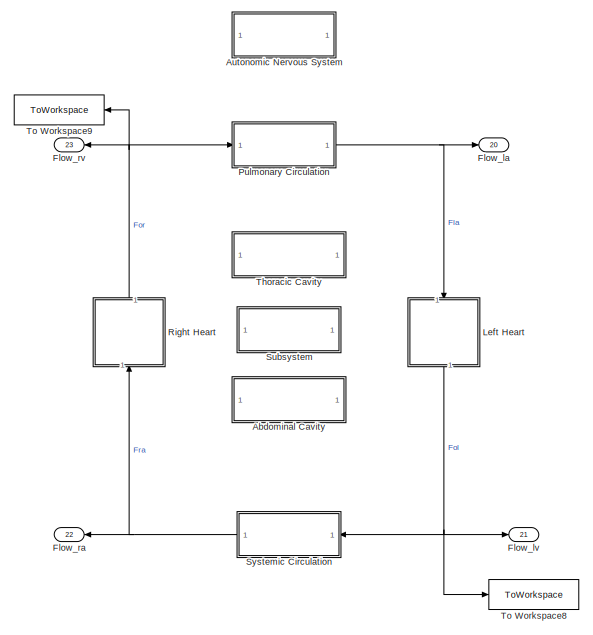
[diagram: root canvas - part 1/3, top left region]
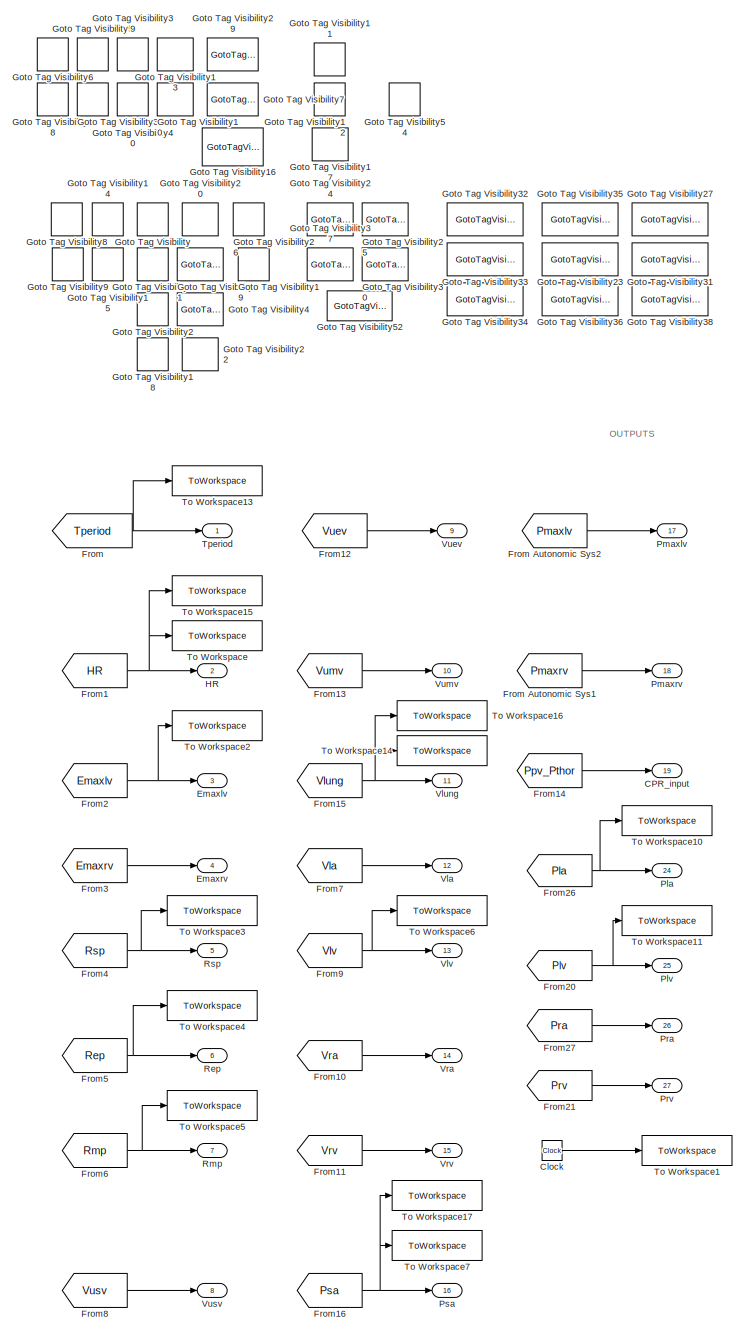
[diagram: root canvas - part 2/3, center side, full height]
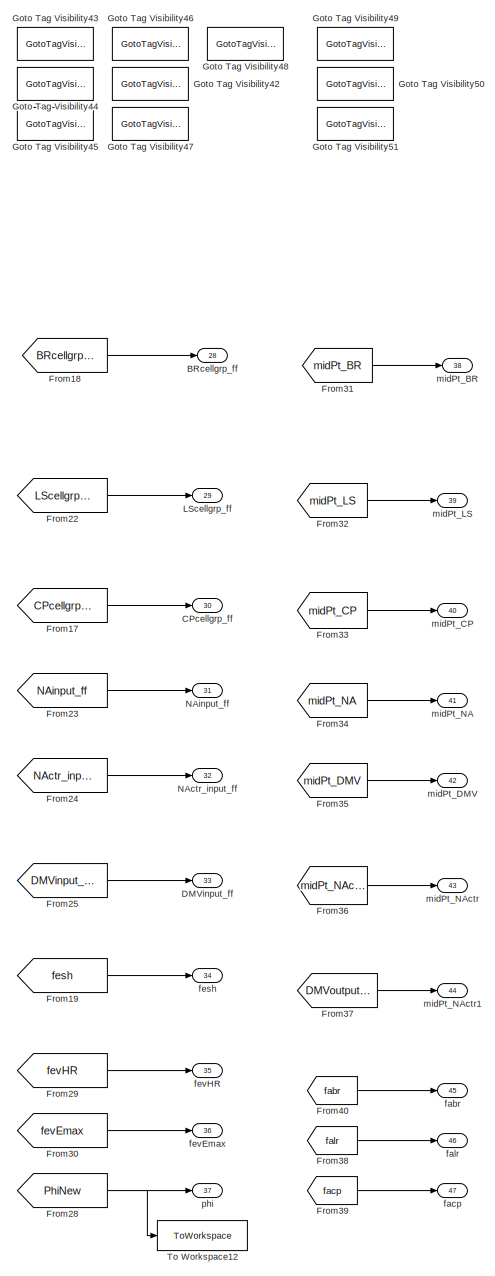
[diagram: root canvas - part 3/3, right side, full height]
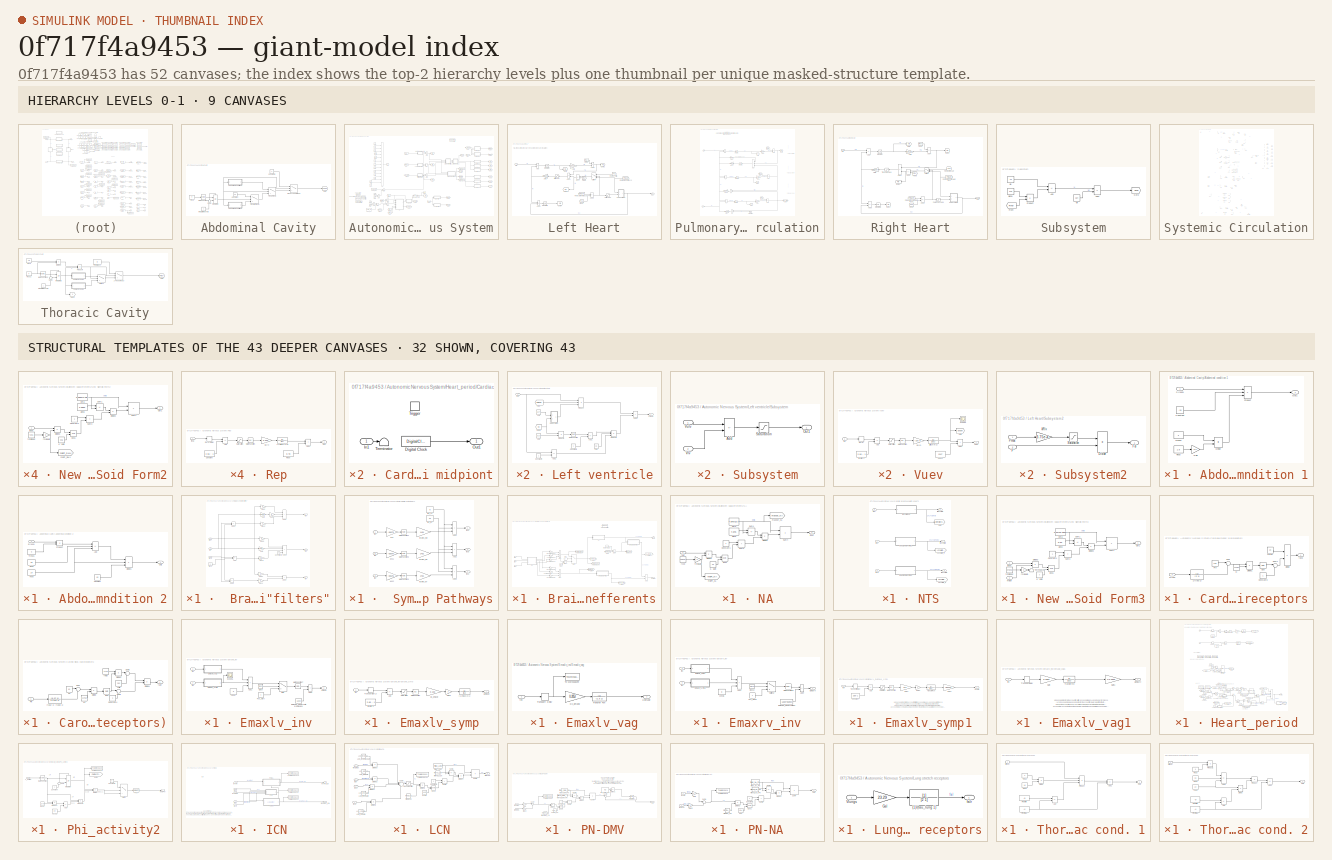
[diagram: thumbnail index - top-2 hierarchy levels (9 canvases) + 32 structural-template representatives of the remaining 43 canvases]
MODEL slx_0f717f4a9453
KIND model
CONFIG AbsTol = auto
CONFIG EnableMultiTasking = on
CONFIG FixedStep = auto
CONFIG MaxStep = auto
CONFIG MinStep = auto
CONFIG RelTol = 1e-3
CONFIG SampleTimeConstraint = Unconstrained
CONFIG SolverName = ode15s
CONFIG StartTime = 0.5
CONFIG StopTime = 300
WORKSPACE source: MATLAB code (in-file)
WORKSPACE code: evalin('base', 'minval_NA_PN', 1)
BLOCK [SubSystem] Abdominal Cavity
  Ports = []
  RequestExecContextInheritance = off
BLOCK [Switch] Abdominal Cavity/(Tinsp + Texp)//Tresp
  Criteria = u2 > Threshold
  InputSameDT = off
  SaturateOnIntegerOverflow = off
  Threshold = (1.6 + 1.4)/4
BLOCK [SubSystem] Abdominal Cavity/Abdominal condition 1
  Ports = [1, 1]
  RequestExecContextInheritance = off
BLOCK [Constant] Abdominal Cavity/Abdominal condition 1/Constant
  Value = -2.5
BLOCK [Product] Abdominal Cavity/Abdominal condition 1/Divide
  Inputs = */
  Ports = [2, 1]
BLOCK [Gain] Abdominal Cavity/Abdominal condition 1/Gain
  Gain = 1/2
BLOCK [Outport] Abdominal Cavity/Abdominal condition 1/Out1
BLOCK [Product] Abdominal Cavity/Abdominal condition 1/Product
  Inputs = 3
  Ports = [3, 1]
BLOCK [Inport] Abdominal Cavity/Abdominal condition 1/S (resp)
BLOCK [Constant] Abdominal Cavity/Abdominal condition 1/Tinsp
  Value = 1.6
BLOCK [Constant] Abdominal Cavity/Abdominal condition 1/Tresp2
  Value = 4
BLOCK [SubSystem] Abdominal Cavity/Abdominal condition 2
  Ports = [1, 1]
  RequestExecContextInheritance = off
BLOCK [Sum] Abdominal Cavity/Abdominal condition 2/Add
  IconShape = rectangular
  Inputs = -++
  Ports = [3, 1]
BLOCK [Constant] Abdominal Cavity/Abdominal condition 2/Constant
  Value = -2.5
BLOCK [Product] Abdominal Cavity/Abdominal condition 2/Divide1
  Inputs = */*
  Ports = [3, 1]
BLOCK [Outport] Abdominal Cavity/Abdominal condition 2/Out1
BLOCK [Product] Abdominal Cavity/Abdominal condition 2/Product
  Ports = [2, 1]
BLOCK [Inport] Abdominal Cavity/Abdominal condition 2/S (resp)
BLOCK [Constant] Abdominal Cavity/Abdominal condition 2/Texp
  Value = 1.4
BLOCK [Constant] Abdominal Cavity/Abdominal condition 2/Tinsp
  Value = 1.6
BLOCK [Constant] Abdominal Cavity/Abdominal condition 2/Tresp1
  Value = 4
BLOCK [Constant] Abdominal Cavity/Constant
  Value = -2.5
BLOCK [Constant] Abdominal Cavity/Constant2
  Value = 0
BLOCK [Goto] Abdominal Cavity/Goto
  GotoTag = Pabd
  TagVisibility = scoped
BLOCK [Constant] Abdominal Cavity/Integral threshold
BLOCK [Integrator] Abdominal Cavity/Integrator3
  ExternalReset = falling
  Ports = [2, 1, 0, 0, 1]
  ShowStatePort = on
BLOCK [Math] Abdominal Cavity/Math Function3
  Operator = reciprocal
  Ports = [1, 1]
  SignedPower = on
BLOCK [Sum] Abdominal Cavity/Sum3
  Inputs = -+
  Ports = [2, 1]
BLOCK [Switch] Abdominal Cavity/Tinsp//(2*Tresp)
  Criteria = u2 > Threshold
  InputSameDT = off
  SaturateOnIntegerOverflow = off
  Threshold = 1.6/(2*4)
BLOCK [Switch] Abdominal Cavity/Tinsp//Tresp
  Criteria = u2 > Threshold
  InputSameDT = off
  SaturateOnIntegerOverflow = off
  Threshold = 1.6/4
BLOCK [Constant] Abdominal Cavity/Tresp
  Value = 4
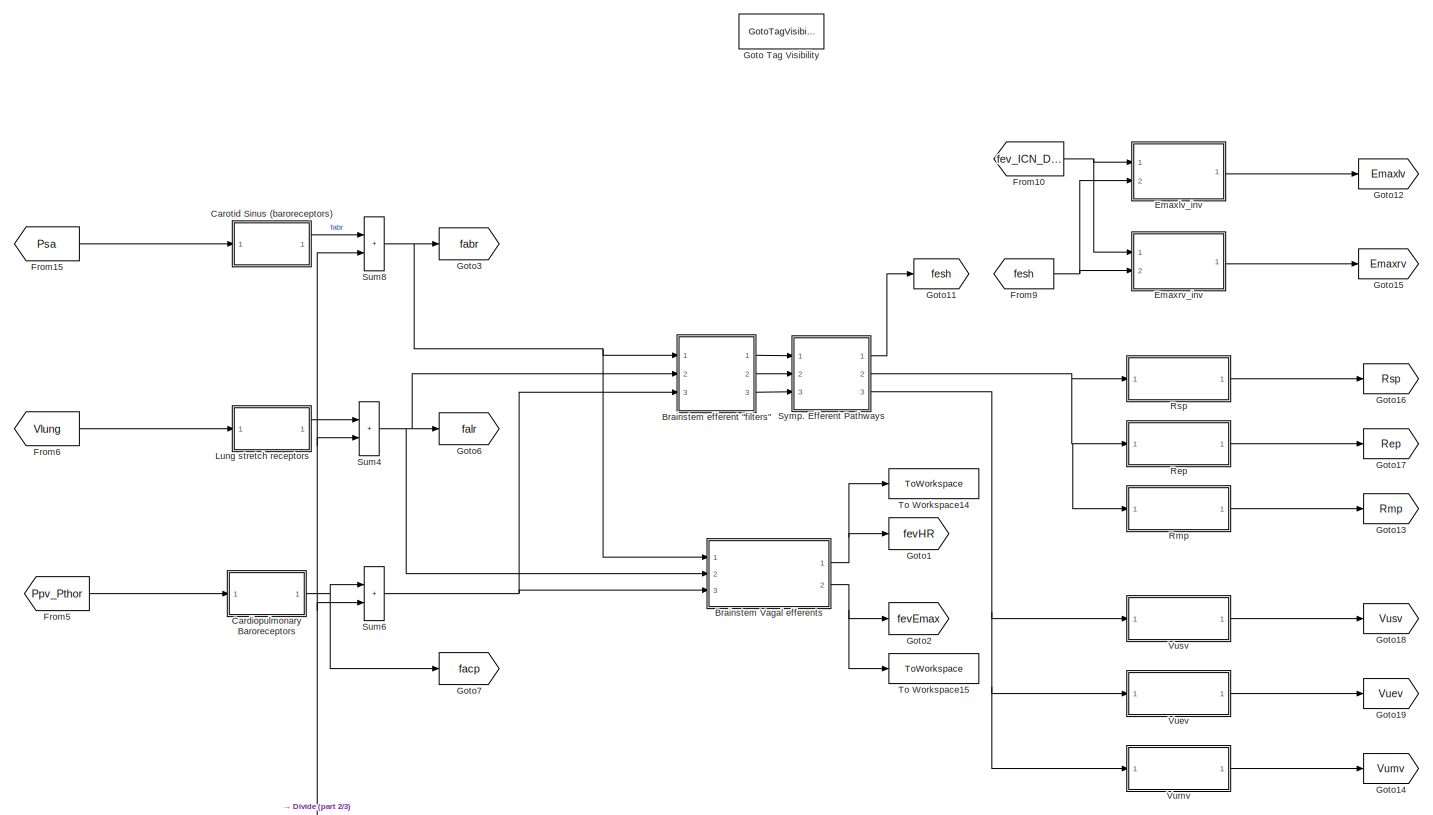
[diagram: Autonomic Nervous System - part 1/3, middle right region]
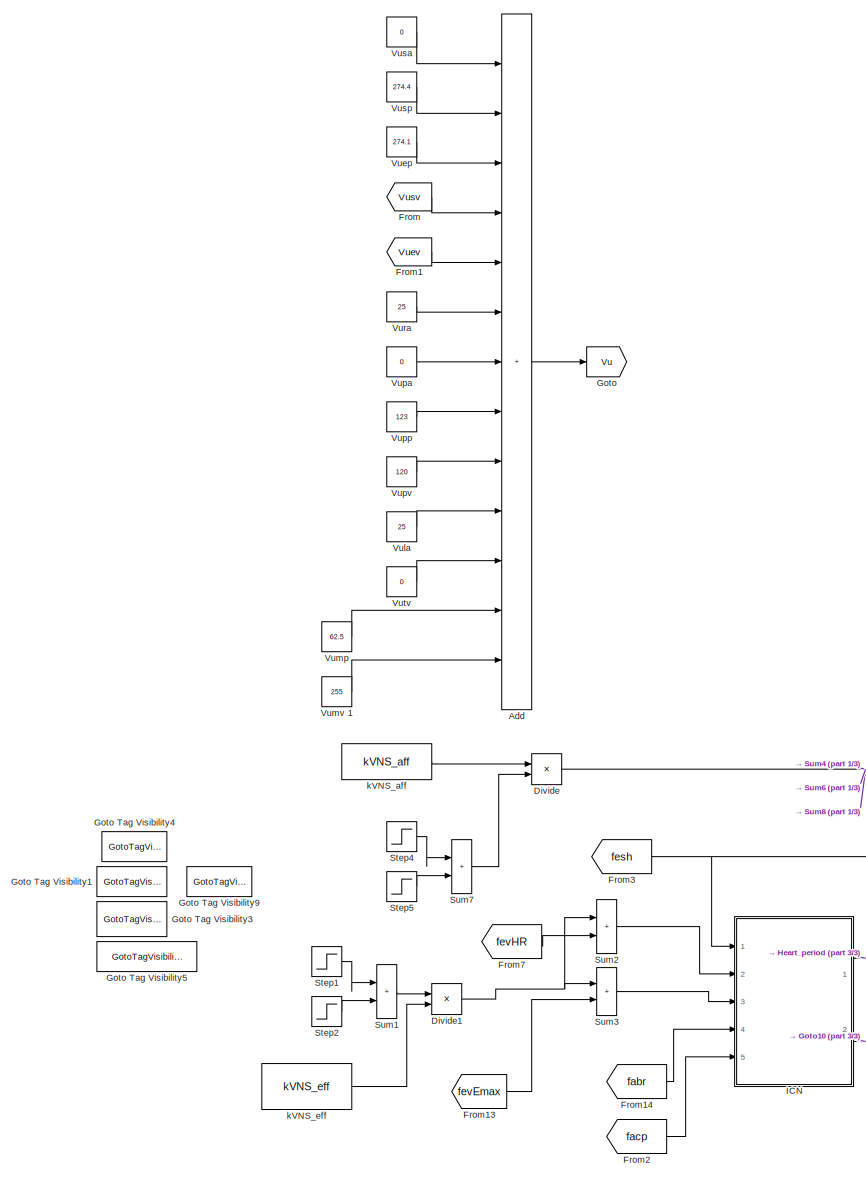
[diagram: Autonomic Nervous System - part 2/3, left side, full height]
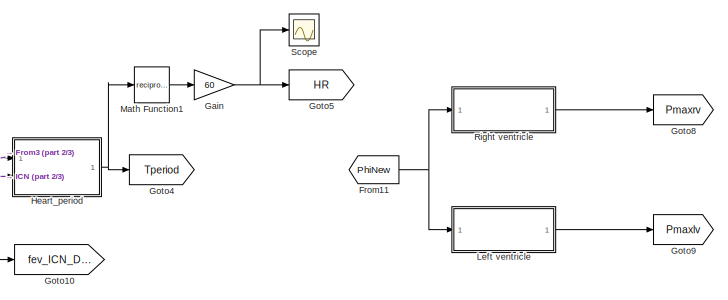
[diagram: Autonomic Nervous System - part 3/3, bottom center region]
BLOCK [SubSystem] Autonomic Nervous System
  Ports = []
  RequestExecContextInheritance = off
BLOCK [SubSystem] Autonomic Nervous System/ Brainstem efferent "filters"
  Ports = [3, 3]
  RequestExecContextInheritance = off
BLOCK [Sum] Autonomic Nervous System/ Brainstem efferent "filters"/Add
  IconShape = rectangular
  Inputs = +-
  Ports = [2, 1]
BLOCK [Sum] Autonomic Nervous System/ Brainstem efferent "filters"/Add1
  IconShape = rectangular
  Inputs = ++++
  Ports = [4, 1]
BLOCK [Sum] Autonomic Nervous System/ Brainstem efferent "filters"/Add3
  IconShape = rectangular
  Ports = [2, 1]
BLOCK [Sum] Autonomic Nervous System/ Brainstem efferent "filters"/Add4
  IconShape = rectangular
  Inputs = +-
  Ports = [2, 1]
BLOCK [Sum] Autonomic Nervous System/ Brainstem efferent "filters"/Add5
  IconShape = rectangular
  Inputs = +++
  Ports = [3, 1]
BLOCK [Sum] Autonomic Nervous System/ Brainstem efferent "filters"/Add6
  IconShape = rectangular
  Inputs = -+
  Ports = [2, 1]
BLOCK [Constant] Autonomic Nervous System/ Brainstem efferent "filters"/Constant2
  Value = 0
BLOCK [Gain] Autonomic Nervous System/ Brainstem efferent "filters"/Gabh
BLOCK [Gain] Autonomic Nervous System/ Brainstem efferent "filters"/Gabp
BLOCK [Gain] Autonomic Nervous System/ Brainstem efferent "filters"/Gabv
BLOCK [Gain] Autonomic Nervous System/ Brainstem efferent "filters"/Gach
  Gain = 2
BLOCK [Gain] Autonomic Nervous System/ Brainstem efferent "filters"/Gacp
  Gain = 2.5
BLOCK [Gain] Autonomic Nervous System/ Brainstem efferent "filters"/Gacv
  Gain = 0
BLOCK [Gain] Autonomic Nervous System/ Brainstem efferent "filters"/Gain8
  Gain = -1
BLOCK [Gain] Autonomic Nervous System/ Brainstem efferent "filters"/Galh
  Gain = 1.541
BLOCK [Gain] Autonomic Nervous System/ Brainstem efferent "filters"/Galp
  Gain = 0.33
BLOCK [Inport] Autonomic Nervous System/ Brainstem efferent "filters"/fabr
BLOCK [Constant] Autonomic Nervous System/ Brainstem efferent "filters"/fac0
  Value = 10
BLOCK [Inport] Autonomic Nervous System/ Brainstem efferent "filters"/facp
  Port = 3
BLOCK [Outport] Autonomic Nervous System/ Brainstem efferent "filters"/fah
BLOCK [Inport] Autonomic Nervous System/ Brainstem efferent "filters"/falr
  Port = 2
BLOCK [Outport] Autonomic Nervous System/ Brainstem efferent "filters"/fap
  Port = 2
BLOCK [Outport] Autonomic Nervous System/ Brainstem efferent "filters"/fav
  Port = 3
BLOCK [SubSystem] Autonomic Nervous System/ Symp. Efferent Pathways
  Ports = [3, 3]
  RequestExecContextInheritance = off
BLOCK [Gain] Autonomic Nervous System/ Symp. Efferent Pathways/-kes
  Gain = -0.0675
BLOCK [Gain] Autonomic Nervous System/ Symp. Efferent Pathways/-kes1
  Gain = -0.0675
BLOCK [Gain] Autonomic Nervous System/ Symp. Efferent Pathways/-kes2
  Gain = -0.0675
BLOCK [Sum] Autonomic Nervous System/ Symp. Efferent Pathways/Add1
  IconShape = rectangular
  Inputs = +++
  Ports = [3, 1]
BLOCK [Sum] Autonomic Nervous System/ Symp. Efferent Pathways/Add2
  IconShape = rectangular
  Inputs = +++
  Ports = [3, 1]
BLOCK [Sum] Autonomic Nervous System/ Symp. Efferent Pathways/Add3
  IconShape = rectangular
  Inputs = +++
  Ports = [3, 1]
BLOCK [Math] Autonomic Nervous System/ Symp. Efferent Pathways/Math Function1
  Ports = [1, 1]
  SignedPower = on
BLOCK [Math] Autonomic Nervous System/ Symp. Efferent Pathways/Math Function2
  Ports = [1, 1]
  SignedPower = on
BLOCK [Math] Autonomic Nervous System/ Symp. Efferent Pathways/Math Function3
  Ports = [1, 1]
  SignedPower = on
BLOCK [Inport] Autonomic Nervous System/ Symp. Efferent Pathways/fah
BLOCK [Inport] Autonomic Nervous System/ Symp. Efferent Pathways/fap
  Port = 2
BLOCK [Inport] Autonomic Nervous System/ Symp. Efferent Pathways/fav
  Port = 3
BLOCK [Gain] Autonomic Nervous System/ Symp. Efferent Pathways/fes0-fes_inf
  Gain = 14.01
BLOCK [Gain] Autonomic Nervous System/ Symp. Efferent Pathways/fes0-fes_inf1
  Gain = 14.01
BLOCK [Gain] Autonomic Nervous System/ Symp. Efferent Pathways/fes0-fes_inf2
  Gain = 14.01
BLOCK [Constant] Autonomic Nervous System/ Symp. Efferent Pathways/fes_cc
  Value = 0
BLOCK [Constant] Autonomic Nervous System/ Symp. Efferent Pathways/fes_inf
  Value = 2.1
BLOCK [Outport] Autonomic Nervous System/ Symp. Efferent Pathways/fesh
BLOCK [Outport] Autonomic Nervous System/ Symp. Efferent Pathways/fesp
  Port = 2
BLOCK [Outport] Autonomic Nervous System/ Symp. Efferent Pathways/fesv
  Port = 3
BLOCK [Sum] Autonomic Nervous System/Add
  IconShape = rectangular
  Inputs = +++++++++++++
  Ports = [13, 1]
BLOCK [SubSystem] Autonomic Nervous System/Brainstem Vagal efferents
  Ports = [3, 2]
  RequestExecContextInheritance = off
BLOCK [Sum] Autonomic Nervous System/Brainstem Vagal efferents/Add1
  IconShape = rectangular
  Ports = [2, 1]
BLOCK [Sum] Autonomic Nervous System/Brainstem Vagal efferents/Add2
  IconShape = rectangular
  Inputs = +++
  Ports = [3, 1]
BLOCK [Sum] Autonomic Nervous System/Brainstem Vagal efferents/Add3
  IconShape = rectangular
  Inputs = +++
  Ports = [3, 1]
BLOCK [Gain] Autonomic Nervous System/Brainstem Vagal efferents/BRcellgrpGainDMV
  Gain = 0
BLOCK [Gain] Autonomic Nervous System/Brainstem Vagal efferents/BRcellgrpGainNTS
BLOCK [Gain] Autonomic Nervous System/Brainstem Vagal efferents/CPcellgrpGainDMV
BLOCK [Gain] Autonomic Nervous System/Brainstem Vagal efferents/CPcellgrpGainNTS
BLOCK [Product] Autonomic Nervous System/Brainstem Vagal efferents/Divide
  Inputs = **
  Ports = [2, 1]
BLOCK [Product] Autonomic Nervous System/Brainstem Vagal efferents/Divide1
  Inputs = **
  Ports = [2, 1]
BLOCK [From] Autonomic Nervous System/Brainstem Vagal efferents/From
  GotoTag = s
  TagVisibility = scoped
BLOCK [From] Autonomic Nervous System/Brainstem Vagal efferents/From9
  GotoTag = maxout_NA
  TagVisibility = scoped
BLOCK [Goto] Autonomic Nervous System/Brainstem Vagal efferents/Goto
  GotoTag = NAinput_ff
  TagVisibility = scoped
BLOCK [GotoTagVisibility] Autonomic Nervous System/Brainstem Vagal efferents/Goto Tag Visibility4
  GotoTag = maxout_NA
BLOCK [Goto] Autonomic Nervous System/Brainstem Vagal efferents/Goto1
  GotoTag = DMVinput_ff
  TagVisibility = scoped
BLOCK [Goto] Autonomic Nervous System/Brainstem Vagal efferents/Goto2
  GotoTag = NActr_input_ff
  TagVisibility = scoped
BLOCK [Goto] Autonomic Nervous System/Brainstem Vagal efferents/Goto3
  GotoTag = DMVoutput_ff
  TagVisibility = scoped
BLOCK [Gain] Autonomic Nervous System/Brainstem Vagal efferents/LScellgrpGainDMV
BLOCK [Gain] Autonomic Nervous System/Brainstem Vagal efferents/LScellgrpGainNTS
BLOCK [SubSystem] Autonomic Nervous System/Brainstem Vagal efferents/NA
  Ports = [1, 1]
  RequestExecContextInheritance = off
BLOCK [Constant] Autonomic Nervous System/Brainstem Vagal efferents/NA/Constant1
BLOCK [Product] Autonomic Nervous System/Brainstem Vagal efferents/NA/Divide2
  Inputs = */
  Ports = [2, 1]
BLOCK [Product] Autonomic Nervous System/Brainstem Vagal efferents/NA/Divide3
  Inputs = */
  Ports = [2, 1]
BLOCK [Math] Autonomic Nervous System/Brainstem Vagal efferents/NA/Exp1
  Operator = pow
  Ports = [2, 1]
BLOCK [Sum] Autonomic Nervous System/Brainstem Vagal efferents/NA/Sum1
  IconShape = rectangular
  Inputs = |+-
  Ports = [2, 1]
BLOCK [Sum] Autonomic Nervous System/Brainstem Vagal efferents/NA/Sum3
  IconShape = rectangular
  Inputs = |++
  Ports = [2, 1]
BLOCK [Sum] Autonomic Nervous System/Brainstem Vagal efferents/NA/Sum4
  IconShape = rectangular
  Inputs = |++
  Ports = [2, 1]
BLOCK [Constant] Autonomic Nervous System/Brainstem Vagal efferents/NA/alpha
  Value = 4.875
BLOCK [Constant] Autonomic Nervous System/Brainstem Vagal efferents/NA/beta
  Value = 4.875+10.9
BLOCK [Inport] Autonomic Nervous System/Brainstem Vagal efferents/NA/fabr
BLOCK [Constant] Autonomic Nervous System/Brainstem Vagal efferents/NA/fcs0
  Value = 59.8257
BLOCK [Gain] Autonomic Nervous System/Brainstem Vagal efferents/NA/fmidgain
BLOCK [Outport] Autonomic Nervous System/Brainstem Vagal efferents/NA/input
BLOCK [Constant] Autonomic Nervous System/Brainstem Vagal efferents/NA/k, gain
  Value = 23
BLOCK [Goto] Autonomic Nervous System/Brainstem Vagal efferents/NA/maxout_NA
  GotoTag = maxout_NA
  TagVisibility = scoped
BLOCK [Goto] Autonomic Nervous System/Brainstem Vagal efferents/NA/midPt_NA
  GotoTag = midPt_NA
  TagVisibility = scoped
BLOCK [SubSystem] Autonomic Nervous System/Brainstem Vagal efferents/NTS
  Ports = [3, 3]
  RequestExecContextInheritance = off
BLOCK [SubSystem] Autonomic Nervous System/Brainstem Vagal efferents/NTS/BR cell group
  Ports = [1, 1]
  RequestExecContextInheritance = off
BLOCK [Constant] Autonomic Nervous System/Brainstem Vagal efferents/NTS/BR cell group/Constant1
BLOCK [Product] Autonomic Nervous System/Brainstem Vagal efferents/NTS/BR cell group/Divide2
  Inputs = */
  Ports = [2, 1]
BLOCK [Product] Autonomic Nervous System/Brainstem Vagal efferents/NTS/BR cell group/Divide3
  Inputs = */
  Ports = [2, 1]
BLOCK [Math] Autonomic Nervous System/Brainstem Vagal efferents/NTS/BR cell group/Exp1
  Operator = pow
  Ports = [2, 1]
BLOCK [Sum] Autonomic Nervous System/Brainstem Vagal efferents/NTS/BR cell group/Sum1
  IconShape = rectangular
  Inputs = |+-
  Ports = [2, 1]
BLOCK [Sum] Autonomic Nervous System/Brainstem Vagal efferents/NTS/BR cell group/Sum3
  IconShape = rectangular
  Inputs = |++
  Ports = [2, 1]
BLOCK [Sum] Autonomic Nervous System/Brainstem Vagal efferents/NTS/BR cell group/Sum4
  IconShape = rectangular
  Inputs = |++
  Ports = [2, 1]
BLOCK [Constant] Autonomic Nervous System/Brainstem Vagal efferents/NTS/BR cell group/alpha
  Value = 0.304
BLOCK [Constant] Autonomic Nervous System/Brainstem Vagal efferents/NTS/BR cell group/beta
  Value = 21.499
BLOCK [Inport] Autonomic Nervous System/Brainstem Vagal efferents/NTS/BR cell group/fabr
BLOCK [Constant] Autonomic Nervous System/Brainstem Vagal efferents/NTS/BR cell group/fcs0
  Value = 25
BLOCK [Outport] Autonomic Nervous System/Brainstem Vagal efferents/NTS/BR cell group/ff BR cell grp
BLOCK [Gain] Autonomic Nervous System/Brainstem Vagal efferents/NTS/BR cell group/fmidgain
  Gain = 1.765
BLOCK [Constant] Autonomic Nervous System/Brainstem Vagal efferents/NTS/BR cell group/k, gain
  Value = 21
BLOCK [Goto] Autonomic Nervous System/Brainstem Vagal efferents/NTS/BR cell group/midPt_BR
  GotoTag = midPt_BR
  TagVisibility = scoped
BLOCK [Goto] Autonomic Nervous System/Brainstem Vagal efferents/NTS/CPcellgrp_ff
  GotoTag = CPcellgrp_ff
  TagVisibility = scoped
BLOCK [Goto] Autonomic Nervous System/Brainstem Vagal efferents/NTS/Goto
  GotoTag = BRcellgrp_ff
  TagVisibility = scoped
BLOCK [Goto] Autonomic Nervous System/Brainstem Vagal efferents/NTS/LScellgrp_ff
  GotoTag = LScellgrp_ff
  TagVisibility = scoped
BLOCK [SubSystem] Autonomic Nervous System/Brainstem Vagal efferents/NTS/New Sigmoid Form CP
  Ports = [1, 1]
  RequestExecContextInheritance = off
BLOCK [Constant] Autonomic Nervous System/Brainstem Vagal efferents/NTS/New Sigmoid Form CP/Constant1
BLOCK [Product] Autonomic Nervous System/Brainstem Vagal efferents/NTS/New Sigmoid Form CP/Divide2
  Inputs = */
  Ports = [2, 1]
BLOCK [Product] Autonomic Nervous System/Brainstem Vagal efferents/NTS/New Sigmoid Form CP/Divide3
  Inputs = */
  Ports = [2, 1]
BLOCK [Math] Autonomic Nervous System/Brainstem Vagal efferents/NTS/New Sigmoid Form CP/Exp1
  Operator = pow
  Ports = [2, 1]
BLOCK [Sum] Autonomic Nervous System/Brainstem Vagal efferents/NTS/New Sigmoid Form CP/Sum1
  IconShape = rectangular
  Inputs = |+-
  Ports = [2, 1]
BLOCK [Sum] Autonomic Nervous System/Brainstem Vagal efferents/NTS/New Sigmoid Form CP/Sum3
  IconShape = rectangular
  Inputs = |++
  Ports = [2, 1]
BLOCK [Sum] Autonomic Nervous System/Brainstem Vagal efferents/NTS/New Sigmoid Form CP/Sum4
  IconShape = rectangular
  Inputs = |++
  Ports = [2, 1]
BLOCK [Constant] Autonomic Nervous System/Brainstem Vagal efferents/NTS/New Sigmoid Form CP/alpha
  Value = 0.451
BLOCK [Constant] Autonomic Nervous System/Brainstem Vagal efferents/NTS/New Sigmoid Form CP/beta
  Value = 0.451+27.876
BLOCK [Outport] Autonomic Nervous System/Brainstem Vagal efferents/NTS/New Sigmoid Form CP/ff LS cell grp
BLOCK [Gain] Autonomic Nervous System/Brainstem Vagal efferents/NTS/New Sigmoid Form CP/fmidgain
BLOCK [Constant] Autonomic Nervous System/Brainstem Vagal efferents/NTS/New Sigmoid Form CP/fmidinput
  Value = 10.21
BLOCK [Inport] Autonomic Nervous System/Brainstem Vagal efferents/NTS/New Sigmoid Form CP/input
BLOCK [Constant] Autonomic Nervous System/Brainstem Vagal efferents/NTS/New Sigmoid Form CP/k, gain
  Value = 7
BLOCK [Goto] Autonomic Nervous System/Brainstem Vagal efferents/NTS/New Sigmoid Form CP/midPt_CP
  GotoTag = midPt_CP
  TagVisibility = scoped
BLOCK [SubSystem] Autonomic Nervous System/Brainstem Vagal efferents/NTS/New Sigmoid Form LS
  Ports = [1, 1]
  RequestExecContextInheritance = off
BLOCK [Constant] Autonomic Nervous System/Brainstem Vagal efferents/NTS/New Sigmoid Form LS/Constant1
BLOCK [Product] Autonomic Nervous System/Brainstem Vagal efferents/NTS/New Sigmoid Form LS/Divide2
  Inputs = */
  Ports = [2, 1]
BLOCK [Product] Autonomic Nervous System/Brainstem Vagal efferents/NTS/New Sigmoid Form LS/Divide3
  Inputs = */
  Ports = [2, 1]
BLOCK [Math] Autonomic Nervous System/Brainstem Vagal efferents/NTS/New Sigmoid Form LS/Exp1
  Operator = pow
  Ports = [2, 1]
BLOCK [Sum] Autonomic Nervous System/Brainstem Vagal efferents/NTS/New Sigmoid Form LS/Sum1
  IconShape = rectangular
  Inputs = |+-
  Ports = [2, 1]
BLOCK [Sum] Autonomic Nervous System/Brainstem Vagal efferents/NTS/New Sigmoid Form LS/Sum3
  IconShape = rectangular
  Inputs = |++
  Ports = [2, 1]
BLOCK [Sum] Autonomic Nervous System/Brainstem Vagal efferents/NTS/New Sigmoid Form LS/Sum4
  IconShape = rectangular
  Inputs = |++
  Ports = [2, 1]
BLOCK [Constant] Autonomic Nervous System/Brainstem Vagal efferents/NTS/New Sigmoid Form LS/alpha
  Value = 2.75
BLOCK [Constant] Autonomic Nervous System/Brainstem Vagal efferents/NTS/New Sigmoid Form LS/beta
  Value = 2.753+28.816
BLOCK [Outport] Autonomic Nervous System/Brainstem Vagal efferents/NTS/New Sigmoid Form LS/ff LS cell grp
BLOCK [Gain] Autonomic Nervous System/Brainstem Vagal efferents/NTS/New Sigmoid Form LS/fmidgain
BLOCK [Constant] Autonomic Nervous System/Brainstem Vagal efferents/NTS/New Sigmoid Form LS/fmidinput
  Value = 11.126
BLOCK [Inport] Autonomic Nervous System/Brainstem Vagal efferents/NTS/New Sigmoid Form LS/input
BLOCK [Constant] Autonomic Nervous System/Brainstem Vagal efferents/NTS/New Sigmoid Form LS/k, gain
  Value = 2
BLOCK [Goto] Autonomic Nervous System/Brainstem Vagal efferents/NTS/New Sigmoid Form LS/midPt_LS
  GotoTag = midPt_LS
  TagVisibility = scoped
BLOCK [Inport] Autonomic Nervous System/Brainstem Vagal efferents/NTS/fabr
BLOCK [Inport] Autonomic Nervous System/Brainstem Vagal efferents/NTS/facp
  Port = 3
BLOCK [Inport] Autonomic Nervous System/Brainstem Vagal efferents/NTS/falsr
  Port = 2
BLOCK [Outport] Autonomic Nervous System/Brainstem Vagal efferents/NTS/ff BR cell grp
BLOCK [Outport] Autonomic Nervous System/Brainstem Vagal efferents/NTS/ff CP cell grp
  Port = 3
BLOCK [Outport] Autonomic Nervous System/Brainstem Vagal efferents/NTS/ff LS cell grp
  Port = 2
BLOCK [SubSystem] Autonomic Nervous System/Brainstem Vagal efferents/New Sigmoid Form2
  Ports = [1, 1]
  RequestExecContextInheritance = off
BLOCK [Constant] Autonomic Nervous System/Brainstem Vagal efferents/New Sigmoid Form2/Constant1
BLOCK [Product] Autonomic Nervous System/Brainstem Vagal efferents/New Sigmoid Form2/Divide2
  Inputs = */
  Ports = [2, 1]
BLOCK [Product] Autonomic Nervous System/Brainstem Vagal efferents/New Sigmoid Form2/Divide3
  Inputs = */
  Ports = [2, 1]
BLOCK [Math] Autonomic Nervous System/Brainstem Vagal efferents/New Sigmoid Form2/Exp1
  Operator = pow
  Ports = [2, 1]
BLOCK [Outport] Autonomic Nervous System/Brainstem Vagal efferents/New Sigmoid Form2/Out1
BLOCK [Sum] Autonomic Nervous System/Brainstem Vagal efferents/New Sigmoid Form2/Sum1
  IconShape = rectangular
  Inputs = |+-
  Ports = [2, 1]
BLOCK [Sum] Autonomic Nervous System/Brainstem Vagal efferents/New Sigmoid Form2/Sum3
  IconShape = rectangular
  Inputs = |++
  Ports = [2, 1]
BLOCK [Sum] Autonomic Nervous System/Brainstem Vagal efferents/New Sigmoid Form2/Sum4
  IconShape = rectangular
  Inputs = |++
  Ports = [2, 1]
BLOCK [Constant] Autonomic Nervous System/Brainstem Vagal efferents/New Sigmoid Form2/alpha
  Value = 2.5901
BLOCK [Constant] Autonomic Nervous System/Brainstem Vagal efferents/New Sigmoid Form2/beta
  Value = 2.5901+4.0696
BLOCK [Gain] Autonomic Nervous System/Brainstem Vagal efferents/New Sigmoid Form2/fmidgain
BLOCK [Constant] Autonomic Nervous System/Brainstem Vagal efferents/New Sigmoid Form2/fmidinput
  Value = 42.91
BLOCK [Inport] Autonomic Nervous System/Brainstem Vagal efferents/New Sigmoid Form2/input
BLOCK [Constant] Autonomic Nervous System/Brainstem Vagal efferents/New Sigmoid Form2/k, gain
  Value = 33.5
BLOCK [Goto] Autonomic Nervous System/Brainstem Vagal efferents/New Sigmoid Form2/midPt_DMV
  GotoTag = midPt_DMV
  TagVisibility = scoped
BLOCK [SubSystem] Autonomic Nervous System/Brainstem Vagal efferents/New Sigmoid Form3
  Ports = [2, 1]
  RequestExecContextInheritance = off
BLOCK [Constant] Autonomic Nervous System/Brainstem Vagal efferents/New Sigmoid Form3/Constant1
BLOCK [Product] Autonomic Nervous System/Brainstem Vagal efferents/New Sigmoid Form3/Divide2
  Inputs = */
  Ports = [2, 1]
BLOCK [Product] Autonomic Nervous System/Brainstem Vagal efferents/New Sigmoid Form3/Divide3
  Inputs = */
  Ports = [2, 1]
BLOCK [Math] Autonomic Nervous System/Brainstem Vagal efferents/New Sigmoid Form3/Exp1
  Operator = pow
  Ports = [2, 1]
BLOCK [Outport] Autonomic Nervous System/Brainstem Vagal efferents/New Sigmoid Form3/Out1
BLOCK [Sum] Autonomic Nervous System/Brainstem Vagal efferents/New Sigmoid Form3/Sum1
  IconShape = rectangular
  Inputs = |+-
  Ports = [2, 1]
BLOCK [Sum] Autonomic Nervous System/Brainstem Vagal efferents/New Sigmoid Form3/Sum3
  IconShape = rectangular
  Inputs = |++
  Ports = [2, 1]
BLOCK [Sum] Autonomic Nervous System/Brainstem Vagal efferents/New Sigmoid Form3/Sum4
  IconShape = rectangular
  Inputs = |++
  Ports = [2, 1]
BLOCK [Terminator] Autonomic Nervous System/Brainstem Vagal efferents/New Sigmoid Form3/Terminator
BLOCK [Constant] Autonomic Nervous System/Brainstem Vagal efferents/New Sigmoid Form3/alpha
  Value = 0.61
BLOCK [Constant] Autonomic Nervous System/Brainstem Vagal efferents/New Sigmoid Form3/beta
  Value = 0.61+10.3919
BLOCK [Gain] Autonomic Nervous System/Brainstem Vagal efferents/New Sigmoid Form3/fmidgain
BLOCK [Constant] Autonomic Nervous System/Brainstem Vagal efferents/New Sigmoid Form3/fmidinput
  Value = 9.7805
BLOCK [Inport] Autonomic Nervous System/Brainstem Vagal efferents/New Sigmoid Form3/input
BLOCK [Constant] Autonomic Nervous System/Brainstem Vagal efferents/New Sigmoid Form3/k, gain
  Value = 7
BLOCK [Inport] Autonomic Nervous System/Brainstem Vagal efferents/New Sigmoid Form3/midpt
  Port = 2
BLOCK [Switch] Autonomic Nervous System/Brainstem Vagal efferents/Switch
  Criteria = u2 > Threshold
  InputSameDT = off
  SaturateOnIntegerOverflow = off
  Threshold = 0.4
BLOCK [ToWorkspace] Autonomic Nervous System/Brainstem Vagal efferents/To Workspace
  FixptAsFi = on
  MaxDataPoints = inf
  Ports = [1]
  SampleTime = -1
  VariableName = gateIn
BLOCK [ToWorkspace] Autonomic Nervous System/Brainstem Vagal efferents/To Workspace1
  FixptAsFi = on
  MaxDataPoints = inf
  Ports = [1]
  SampleTime = -1
  VariableName = gateOut
BLOCK [Inport] Autonomic Nervous System/Brainstem Vagal efferents/fabr
BLOCK [Inport] Autonomic Nervous System/Brainstem Vagal efferents/facp
  Port = 3
BLOCK [Inport] Autonomic Nervous System/Brainstem Vagal efferents/falsr
  Port = 2
BLOCK [Outport] Autonomic Nervous System/Brainstem Vagal efferents/fevEmax
  Port = 2
BLOCK [Outport] Autonomic Nervous System/Brainstem Vagal efferents/fevHR
BLOCK [Constant] Autonomic Nervous System/Brainstem Vagal efferents/kRSA
  Value = kRSA
BLOCK [Goto] Autonomic Nervous System/Brainstem Vagal efferents/midPt_NActr
  GotoTag = midPt_NActr
  TagVisibility = scoped
BLOCK [Constant] Autonomic Nervous System/Brainstem Vagal efferents/midptNActr_gain
  Value = 0.62
BLOCK [SubSystem] Autonomic Nervous System/Cardiopulmonary Baroreceptors
  Ports = [1, 1]
  RequestExecContextInheritance = off
BLOCK [TransferFcn] Autonomic Nervous System/Cardiopulmonary Baroreceptors/ 1//[taul 1]
  Denominator = [2 1]
BLOCK [Constant] Autonomic Nervous System/Cardiopulmonary Baroreceptors/Constant3
BLOCK [Product] Autonomic Nervous System/Cardiopulmonary Baroreceptors/Divide
  Inputs = */
  Ports = [2, 1]
BLOCK [Product] Autonomic Nervous System/Cardiopulmonary Baroreceptors/Divide1
  Inputs = */
  Ports = [2, 1]
BLOCK [Math] Autonomic Nervous System/Cardiopulmonary Baroreceptors/Exp
  Ports = [1, 1]
BLOCK [Constant] Autonomic Nervous System/Cardiopulmonary Baroreceptors/Ptn
  Value = 10.8
BLOCK [Inport] Autonomic Nervous System/Cardiopulmonary Baroreceptors/Ptrans
BLOCK [Sum] Autonomic Nervous System/Cardiopulmonary Baroreceptors/Sum
  Inputs = |+-
  Ports = [2, 1]
BLOCK [Sum] Autonomic Nervous System/Cardiopulmonary Baroreceptors/Sum1
  Inputs = |++
  Ports = [2, 1]
BLOCK [Outport] Autonomic Nervous System/Cardiopulmonary Baroreceptors/facp
BLOCK [Constant] Autonomic Nervous System/Cardiopulmonary Baroreceptors/fmaxl
  Value = 20
BLOCK [Constant] Autonomic Nervous System/Cardiopulmonary Baroreceptors/kl
  Value = 1.4286
BLOCK [SubSystem] Autonomic Nervous System/Carotid Sinus (baroreceptors)
  Ports = [1, 1]
  RequestExecContextInheritance = off
BLOCK [TransferFcn] Autonomic Nervous System/Carotid Sinus (baroreceptors)/(tauz 1) (taup 1)
  Denominator = [2.076 1]
  Numerator = [6.37 1]
BLOCK [Constant] Autonomic Nervous System/Carotid Sinus (baroreceptors)/Constant4
BLOCK [Product] Autonomic Nervous System/Carotid Sinus (baroreceptors)/Divide
  Inputs = */
  Ports = [2, 1]
BLOCK [Product] Autonomic Nervous System/Carotid Sinus (baroreceptors)/Divide1
  Inputs = */
  Ports = [2, 1]
BLOCK [Product] Autonomic Nervous System/Carotid Sinus (baroreceptors)/Divide2
  Inputs = **
  Ports = [2, 1]
BLOCK [Math] Autonomic Nervous System/Carotid Sinus (baroreceptors)/Exp
  Ports = [1, 1]
BLOCK [Inport] Autonomic Nervous System/Carotid Sinus (baroreceptors)/Pin
BLOCK [Constant] Autonomic Nervous System/Carotid Sinus (baroreceptors)/Pn
  Value = 92
BLOCK [Sum] Autonomic Nervous System/Carotid Sinus (baroreceptors)/Sum
  Inputs = |-+
  Ports = [2, 1]
BLOCK [Sum] Autonomic Nervous System/Carotid Sinus (baroreceptors)/Sum1
  Inputs = |++
  Ports = [2, 1]
BLOCK [Sum] Autonomic Nervous System/Carotid Sinus (baroreceptors)/Sum2
  Inputs = |++
  Ports = [2, 1]
BLOCK [Outport] Autonomic Nervous System/Carotid Sinus (baroreceptors)/fabr
BLOCK [Constant] Autonomic Nervous System/Carotid Sinus (baroreceptors)/fmax
  Value = 47.78
BLOCK [Constant] Autonomic Nervous System/Carotid Sinus (baroreceptors)/fmin
  Value = 2.52
BLOCK [Constant] Autonomic Nervous System/Carotid Sinus (baroreceptors)/ka
  Value = 11.758
BLOCK [Product] Autonomic Nervous System/Divide
  Inputs = **
  Ports = [2, 1]
BLOCK [Product] Autonomic Nervous System/Divide1
  Inputs = **
  Ports = [2, 1]
BLOCK [SubSystem] Autonomic Nervous System/Emaxlv_inv
  Ports = [2, 1]
  RequestExecContextInheritance = off
BLOCK [Sum] Autonomic Nervous System/Emaxlv_inv/Add1
  IconShape = rectangular
  Inputs = +++
  Ports = [3, 1]
BLOCK [Sum] Autonomic Nervous System/Emaxlv_inv/Add2
  IconShape = rectangular
  Ports = [2, 1]
BLOCK [Clock] Autonomic Nervous System/Emaxlv_inv/Clock
BLOCK [Outport] Autonomic Nervous System/Emaxlv_inv/Emaxlv
BLOCK [Constant] Autonomic Nervous System/Emaxlv_inv/Emaxlv0_denervated (Emaxlv0)
  Value = 1.283
BLOCK [SubSystem] Autonomic Nervous System/Emaxlv_inv/Emaxlv_symp
  Ports = [1, 1]
  RequestExecContextInheritance = off
BLOCK [TransferFcn] Autonomic Nervous System/Emaxlv_inv/Emaxlv_symp/(1)//(taux(2) 1)
  Denominator = [8 1]
BLOCK [Outport] Autonomic Nervous System/Emaxlv_inv/Emaxlv_symp/1//Emaxlv
BLOCK [Sum] Autonomic Nervous System/Emaxlv_inv/Emaxlv_symp/Add
  IconShape = rectangular
  Inputs = +-
  Ports = [2, 1]
BLOCK [Gain] Autonomic Nervous System/Emaxlv_inv/Emaxlv_symp/Gain2
  Gain = -1
BLOCK [Gain] Autonomic Nervous System/Emaxlv_inv/Emaxlv_symp/Gs_Emaxlv
  Gain = 0.103
BLOCK [Math] Autonomic Nervous System/Emaxlv_inv/Emaxlv_symp/Math Function
  Operator = log
  Ports = [1, 1]
  SignedPower = on
BLOCK [Saturate] Autonomic Nervous System/Emaxlv_inv/Emaxlv_symp/Saturation
  LowerLimit = 1
  UpperLimit = inf
BLOCK [TransportDelay] Autonomic Nervous System/Emaxlv_inv/Emaxlv_symp/Transport Dx(1)
  BufferSize = 2048
  DelayTime = 2
  Ports = [1, 1]
BLOCK [Inport] Autonomic Nervous System/Emaxlv_inv/Emaxlv_symp/fes
BLOCK [Constant] Autonomic Nervous System/Emaxlv_inv/Emaxlv_symp/fesmin - 1
  Value = 2.66 - 1
BLOCK [SubSystem] Autonomic Nervous System/Emaxlv_inv/Emaxlv_vag
  Ports = [1, 1]
  RequestExecContextInheritance = off
BLOCK [Outport] Autonomic Nervous System/Emaxlv_inv/Emaxlv_vag/1//Emaxlv
BLOCK [Gain] Autonomic Nervous System/Emaxlv_inv/Emaxlv_vag/Gv_Emaxlv
  Gain = 0.2053
BLOCK [ToWorkspace] Autonomic Nervous System/Emaxlv_inv/Emaxlv_vag/To Workspace9
  Commented = on
  FixptAsFi = on
  MaxDataPoints = inf
  Ports = [1]
  SampleTime = -1
  SaveFormat = Timeseries
  VariableName = fev_Einput
BLOCK [TransferFcn] Autonomic Nervous System/Emaxlv_inv/Emaxlv_vag/Transfer Fcn
  Denominator = [1.5 1]
BLOCK [TransportDelay] Autonomic Nervous System/Emaxlv_inv/Emaxlv_vag/Transport Delay
  BufferSize = 2048
  DelayTime = 0.2
  Ports = [1, 1]
BLOCK [Inport] Autonomic Nervous System/Emaxlv_inv/Emaxlv_vag/fev
BLOCK [Math] Autonomic Nervous System/Emaxlv_inv/Math Function7
  Operator = reciprocal
  Ports = [1, 1]
  SignedPower = on
BLOCK [Constant] Autonomic Nervous System/Emaxlv_inv/Pcs_start
BLOCK [Scope] Autonomic Nervous System/Emaxlv_inv/Scope6
  Floating = off
  NumInputPorts = 1
  Ports = [1]
  ScopeSpecificationString = Simulink.scopes.TimeScopeBlockCfg('CurrentConfiguration', extmgr.ConfigurationSet(extmgr.Configuration('Core','General UI',true),extmgr.Configuration('Core','Source UI',true),extmgr.Configuration('Sources','WiredSimulink',true,'DataLoggingVariableName','ScopeData44'),extmgr.Configuration('Visuals','Time Domain',true,'SerializedDisplays',{struct('MinYLimReal','-0.29651','MaxYLimReal','0.03295','YLa...<+1473ch>
BLOCK [Constant] Autonomic Nervous System/Emaxlv_inv/const
  Value = 0
BLOCK [Inport] Autonomic Nervous System/Emaxlv_inv/fes
  Port = 2
BLOCK [Inport] Autonomic Nervous System/Emaxlv_inv/fev
BLOCK [Switch] Autonomic Nervous System/Emaxlv_inv/tstall
  Criteria = u2 > Threshold
  InputSameDT = off
  SaturateOnIntegerOverflow = off
  Threshold = 1
BLOCK [SubSystem] Autonomic Nervous System/Emaxrv_inv
  Ports = [2, 1]
  RequestExecContextInheritance = off
BLOCK [Sum] Autonomic Nervous System/Emaxrv_inv/Add3
  IconShape = rectangular
  Inputs = +++
  Ports = [3, 1]
BLOCK [Sum] Autonomic Nervous System/Emaxrv_inv/Add4
  IconShape = rectangular
  Ports = [2, 1]
BLOCK [Clock] Autonomic Nervous System/Emaxrv_inv/Clock2
BLOCK [Constant] Autonomic Nervous System/Emaxrv_inv/Emaxlv0_denervated1
  Value = 1.283*0.5903
BLOCK [SubSystem] Autonomic Nervous System/Emaxrv_inv/Emaxlv_symp1
  Ports = [1, 1]
  RequestExecContextInheritance = off
BLOCK [Outport] Autonomic Nervous System/Emaxrv_inv/Emaxlv_symp1/1//Emarlv
BLOCK [Sum] Autonomic Nervous System/Emaxrv_inv/Emaxlv_symp1/Add
  IconShape = rectangular
  Inputs = +-
  Ports = [2, 1]
BLOCK [Constant] Autonomic Nervous System/Emaxrv_inv/Emaxlv_symp1/Constant
  Value = 2.66 - 1
BLOCK [Gain] Autonomic Nervous System/Emaxrv_inv/Emaxlv_symp1/Gain1
  Gain = 0.13
BLOCK [Gain] Autonomic Nervous System/Emaxrv_inv/Emaxlv_symp1/Gain2
  Gain = -1
BLOCK [Gain] Autonomic Nervous System/Emaxrv_inv/Emaxlv_symp1/Gain3
  Gain = 1/0.5903
BLOCK [Math] Autonomic Nervous System/Emaxrv_inv/Emaxlv_symp1/Math Function
  Operator = log
  Ports = [1, 1]
  SignedPower = on
BLOCK [Saturate] Autonomic Nervous System/Emaxrv_inv/Emaxlv_symp1/Saturation
  LowerLimit = 1
  UpperLimit = inf
BLOCK [TransferFcn] Autonomic Nervous System/Emaxrv_inv/Emaxlv_symp1/Transfer Fcn
  Denominator = [8 1]
BLOCK [TransportDelay] Autonomic Nervous System/Emaxrv_inv/Emaxlv_symp1/Transport Delay
  BufferSize = 2048
  DelayTime = 2
  Ports = [1, 1]
BLOCK [Inport] Autonomic Nervous System/Emaxrv_inv/Emaxlv_symp1/fes
BLOCK [SubSystem] Autonomic Nervous System/Emaxrv_inv/Emaxlv_vag1
  Ports = [1, 1]
  RequestExecContextInheritance = off
BLOCK [Outport] Autonomic Nervous System/Emaxrv_inv/Emaxlv_vag1/1//Emaxrv
BLOCK [Gain] Autonomic Nervous System/Emaxrv_inv/Emaxlv_vag1/Gain
  Gain = 0.2053
BLOCK [Gain] Autonomic Nervous System/Emaxrv_inv/Emaxlv_vag1/Gain1
  Gain = 1/0.5903
BLOCK [TransferFcn] Autonomic Nervous System/Emaxrv_inv/Emaxlv_vag1/Transfer Fcn
  Denominator = [1.5 1]
BLOCK [TransportDelay] Autonomic Nervous System/Emaxrv_inv/Emaxlv_vag1/Transport Delay
  BufferSize = 2048
  DelayTime = 0.2
  Ports = [1, 1]
BLOCK [Inport] Autonomic Nervous System/Emaxrv_inv/Emaxlv_vag1/fev
BLOCK [Outport] Autonomic Nervous System/Emaxrv_inv/Emaxrv
BLOCK [Math] Autonomic Nervous System/Emaxrv_inv/Math Function2
  Operator = reciprocal
  Ports = [1, 1]
  SignedPower = on
BLOCK [Constant] Autonomic Nervous System/Emaxrv_inv/Pcs_start2
BLOCK [Switch] Autonomic Nervous System/Emaxrv_inv/Switch2
  Criteria = u2 > Threshold
  InputSameDT = off
  SaturateOnIntegerOverflow = off
  Threshold = 1
BLOCK [Constant] Autonomic Nervous System/Emaxrv_inv/const1
  Value = 0
BLOCK [Inport] Autonomic Nervous System/Emaxrv_inv/fes
  Port = 2
BLOCK [Inport] Autonomic Nervous System/Emaxrv_inv/fev
BLOCK [From] Autonomic Nervous System/From
  GotoTag = Vusv
  TagVisibility = scoped
BLOCK [From] Autonomic Nervous System/From1
  GotoTag = Vuev
  TagVisibility = scoped
BLOCK [From] Autonomic Nervous System/From10
  GotoTag = fev_ICN_DMV
  TagVisibility = scoped
BLOCK [From] Autonomic Nervous System/From11
  GotoTag = PhiNew
  TagVisibility = scoped
BLOCK [From] Autonomic Nervous System/From13
  GotoTag = fevEmax
  TagVisibility = scoped
BLOCK [From] Autonomic Nervous System/From14
  GotoTag = fabr
  TagVisibility = scoped
BLOCK [From] Autonomic Nervous System/From15
  GotoTag = Psa
  TagVisibility = scoped
BLOCK [From] Autonomic Nervous System/From2
  GotoTag = facp
  TagVisibility = scoped
BLOCK [From] Autonomic Nervous System/From3
  GotoTag = fesh
  TagVisibility = scoped
BLOCK [From] Autonomic Nervous System/From5
  GotoTag = Ppv_Pthor
  TagVisibility = scoped
BLOCK [From] Autonomic Nervous System/From6
  GotoTag = Vlung
  TagVisibility = scoped
BLOCK [From] Autonomic Nervous System/From7
  GotoTag = fevHR
  TagVisibility = scoped
BLOCK [From] Autonomic Nervous System/From9
  GotoTag = fesh
  TagVisibility = scoped
BLOCK [Gain] Autonomic Nervous System/Gain
  Gain = 60
BLOCK [Goto] Autonomic Nervous System/Goto
  GotoTag = Vu
  TagVisibility = scoped
BLOCK [GotoTagVisibility] Autonomic Nervous System/Goto Tag Visibility
  GotoTag = fev_ICN_DMV
BLOCK [GotoTagVisibility] Autonomic Nervous System/Goto Tag Visibility1
  GotoTag = CardiacPhase
BLOCK [GotoTagVisibility] Autonomic Nervous System/Goto Tag Visibility3
  GotoTag = TperiodNew
BLOCK [GotoTagVisibility] Autonomic Nervous System/Goto Tag Visibility4
  GotoTag = T_period_ICN
BLOCK [GotoTagVisibility] Autonomic Nervous System/Goto Tag Visibility5
  GotoTag = ff_vagal_heart_period
BLOCK [GotoTagVisibility] Autonomic Nervous System/Goto Tag Visibility9
  GotoTag = maxout_fevEmax
BLOCK [Goto] Autonomic Nervous System/Goto1
  GotoTag = fevHR
  TagVisibility = scoped
BLOCK [Goto] Autonomic Nervous System/Goto10
  GotoTag = fev_ICN_DMV
  TagVisibility = scoped
BLOCK [Goto] Autonomic Nervous System/Goto11
  GotoTag = fesh
  TagVisibility = scoped
BLOCK [Goto] Autonomic Nervous System/Goto12
  GotoTag = Emaxlv
  TagVisibility = scoped
BLOCK [Goto] Autonomic Nervous System/Goto13
  GotoTag = Rmp
  TagVisibility = scoped
BLOCK [Goto] Autonomic Nervous System/Goto14
  GotoTag = Vumv
  TagVisibility = scoped
BLOCK [Goto] Autonomic Nervous System/Goto15
  GotoTag = Emaxrv
  TagVisibility = scoped
BLOCK [Goto] Autonomic Nervous System/Goto16
  GotoTag = Rsp
  TagVisibility = scoped
BLOCK [Goto] Autonomic Nervous System/Goto17
  GotoTag = Rep
  TagVisibility = scoped
BLOCK [Goto] Autonomic Nervous System/Goto18
  GotoTag = Vusv
  TagVisibility = scoped
BLOCK [Goto] Autonomic Nervous System/Goto19
  GotoTag = Vuev
  TagVisibility = scoped
BLOCK [Goto] Autonomic Nervous System/Goto2
  GotoTag = fevEmax
  TagVisibility = scoped
BLOCK [Goto] Autonomic Nervous System/Goto3
  GotoTag = fabr
  TagVisibility = scoped
BLOCK [Goto] Autonomic Nervous System/Goto4
  GotoTag = Tperiod
  TagVisibility = scoped
BLOCK [Goto] Autonomic Nervous System/Goto5
  GotoTag = HR
  TagVisibility = scoped
BLOCK [Goto] Autonomic Nervous System/Goto6
  GotoTag = falr
  TagVisibility = scoped
BLOCK [Goto] Autonomic Nervous System/Goto7
  GotoTag = facp
  TagVisibility = scoped
BLOCK [Goto] Autonomic Nervous System/Goto8
  GotoTag = Pmaxrv
  TagVisibility = scoped
BLOCK [Goto] Autonomic Nervous System/Goto9
  GotoTag = Pmaxlv
  TagVisibility = scoped
BLOCK [SubSystem] Autonomic Nervous System/Heart_period
  Ports = [2, 1]
  RequestExecContextInheritance = off
BLOCK [Lookup_n-D] Autonomic Nervous System/Heart_period/1-D Lookup Table1
  BreakpointsForDimension1 = [0:1200]
  BreakpointsForDimension2 = [0:1199]
  InputPortMap = u0,p221
  InternalRulePriority = Speed
  NumberOfTableDimensions = 1
  Ports = [2, 1]
  RndMeth = Simplest
  Table = tanh([-5:5])
  TableSource = Input port
BLOCK [Lookup_n-D] Autonomic Nervous System/Heart_period/1-D Lookup Table2
  BreakpointsForDimension1 = [0:1200]
  BreakpointsForDimension2 = [0:1199]
  InputPortMap = u0,p221
  InternalRulePriority = Speed
  NumberOfTableDimensions = 1
  Ports = [2, 1]
  RndMeth = Simplest
  Table = tanh([-5:5])
  TableSource = Input port
BLOCK [TransferFcn] Autonomic Nervous System/Heart_period/1//[taux(7) 1]
  Denominator = [2 1]
BLOCK [TransferFcn] Autonomic Nervous System/Heart_period/1//[taux(8) 1]
  Denominator = [1.5 1]
BLOCK [Logic] Autonomic Nervous System/Heart_period/AND
  AllPortsSameDT = off
  IconShape = distinctive
  OutDataTypeStr = boolean
  Ports = [2, 1]
BLOCK [Sum] Autonomic Nervous System/Heart_period/Add
  IconShape = rectangular
  Inputs = +-
  Ports = [2, 1]
BLOCK [Sum] Autonomic Nervous System/Heart_period/Add4
  IconShape = rectangular
  Inputs = ++++
  Ports = [4, 1]
BLOCK [SubSystem] Autonomic Nervous System/Heart_period/Cardiac phase midpiont
  Ports = [1, 1, 0, 1]
  RequestExecContextInheritance = off
  TreatAsAtomicUnit = on
BLOCK [DigitalClock] Autonomic Nervous System/Heart_period/Cardiac phase midpiont/Digital Clock
  SampleTime = -1
BLOCK [Inport] Autonomic Nervous System/Heart_period/Cardiac phase midpiont/In1
BLOCK [Outport] Autonomic Nervous System/Heart_period/Cardiac phase midpiont/Out1
BLOCK [Terminator] Autonomic Nervous System/Heart_period/Cardiac phase midpiont/Terminator
BLOCK [TriggerPort] Autonomic Nervous System/Heart_period/Cardiac phase midpiont/Trigger
  Ports = []
  StatesWhenEnabling = held
  TriggerType = either
  VariantControl = Variant
BLOCK [Constant] Autonomic Nervous System/Heart_period/Constant13
  Value = 0
BLOCK [Constant] Autonomic Nervous System/Heart_period/Constant15
  Value = 0.5
BLOCK [Constant] Autonomic Nervous System/Heart_period/Constant16
  Value = 1.2
BLOCK [Constant] Autonomic Nervous System/Heart_period/Constant17
  Value = 0
BLOCK [Constant] Autonomic Nervous System/Heart_period/Constant18
  Value = 0.55
BLOCK [Constant] Autonomic Nervous System/Heart_period/Constant19
  Value = 0.01
BLOCK [Constant] Autonomic Nervous System/Heart_period/Constant20
  Value = 0.01
BLOCK [Constant] Autonomic Nervous System/Heart_period/Constant21
  Value = HRResponseIano
BLOCK [Constant] Autonomic Nervous System/Heart_period/Constant23
  Value = HRResponseIano
BLOCK [Constant] Autonomic Nervous System/Heart_period/Constant3
  Value = 0.010
BLOCK [Product] Autonomic Nervous System/Heart_period/Divide
  Inputs = */
  Ports = [2, 1]
BLOCK [Product] Autonomic Nervous System/Heart_period/Divide1
  Inputs = **
  Ports = [2, 1]
BLOCK [TransportDelay] Autonomic Nervous System/Heart_period/Dx(7) Delay
  BufferSize = 2048
  DelayTime = 2
  Ports = [1, 1]
BLOCK [TransportDelay] Autonomic Nervous System/Heart_period/Dx(8) Delay1
  BufferSize = 2048
  DelayTime = 0.2
  Ports = [1, 1]
BLOCK [From] Autonomic Nervous System/Heart_period/From1
  GotoTag = NerveActivityTime
  TagVisibility = scoped
BLOCK [From] Autonomic Nervous System/Heart_period/From27
  GotoTag = CardiacPhaseNewv2
  TagVisibility = scoped
BLOCK [From] Autonomic Nervous System/Heart_period/From28
  GotoTag = NerveActivity
  TagVisibility = scoped
BLOCK [From] Autonomic Nervous System/Heart_period/From29
  GotoTag = CardiacPhaseNewv2
  TagVisibility = scoped
BLOCK [From] Autonomic Nervous System/Heart_period/From32
  GotoTag = ff_vagal_heart_period
  TagVisibility = scoped
BLOCK [From] Autonomic Nervous System/Heart_period/From33
  GotoTag = ff_symp_heart_period
  TagVisibility = scoped
BLOCK [From] Autonomic Nervous System/Heart_period/From35
  GotoTag = ff_vagal_heart_period
  TagVisibility = scoped
BLOCK [From] Autonomic Nervous System/Heart_period/From6
  GotoTag = ff_vagal_heart_period
  TagVisibility = scoped
BLOCK [Gain] Autonomic Nervous System/Heart_period/Gain10
  Gain = 100
BLOCK [Gain] Autonomic Nervous System/Heart_period/Gain12
  Gain = 100
BLOCK [Goto] Autonomic Nervous System/Heart_period/Goto
  GotoTag = ff_vagal_heart_period
  TagVisibility = scoped
BLOCK [GotoTagVisibility] Autonomic Nervous System/Heart_period/Goto Tag Visibility
  GotoTag = NerveActivity
BLOCK [GotoTagVisibility] Autonomic Nervous System/Heart_period/Goto Tag Visibility1
  GotoTag = ff_symp_heart_period
BLOCK [GotoTagVisibility] Autonomic Nervous System/Heart_period/Goto Tag Visibility2
  GotoTag = CardiacPhaseNew
BLOCK [GotoTagVisibility] Autonomic Nervous System/Heart_period/Goto Tag Visibility3
  GotoTag = CardiacPhaseNewv2
BLOCK [GotoTagVisibility] Autonomic Nervous System/Heart_period/Goto Tag Visibility4
  GotoTag = NerveActivityTime
BLOCK [Goto] Autonomic Nervous System/Heart_period/Goto1
  GotoTag = ff_symp_heart_period
  TagVisibility = scoped
BLOCK [Goto] Autonomic Nervous System/Heart_period/Goto2
  GotoTag = NerveActivityTime
  TagVisibility = scoped
BLOCK [Goto] Autonomic Nervous System/Heart_period/Goto6
  GotoTag = NerveActivity
  TagVisibility = scoped
BLOCK [Goto] Autonomic Nervous System/Heart_period/Goto8
  GotoTag = PhiNew
  TagVisibility = scoped
BLOCK [RelationalOperator] Autonomic Nervous System/Heart_period/GreaterThan
  InputSameDT = off
  Operator = >
  OutDataTypeStr = boolean
  Ports = [2, 1]
  RndMeth = Simplest
BLOCK [RelationalOperator] Autonomic Nervous System/Heart_period/GreaterThan1
  InputSameDT = off
  Operator = <
  OutDataTypeStr = boolean
  Ports = [2, 1]
  RndMeth = Simplest
BLOCK [Constant] Autonomic Nervous System/Heart_period/Gv
  Value = 0.09
BLOCK [Gain] Autonomic Nervous System/Heart_period/Gx(7)
  Gain = -0.13
BLOCK [Math] Autonomic Nervous System/Heart_period/Math Function
  Operator = log
  Ports = [1, 1]
  SignedPower = on
BLOCK [SubSystem] Autonomic Nervous System/Heart_period/Nerve Activity Time
  Ports = [1, 1, 0, 1]
  RequestExecContextInheritance = off
  TreatAsAtomicUnit = on
BLOCK [DigitalClock] Autonomic Nervous System/Heart_period/Nerve Activity Time/Digital Clock
  SampleTime = -1
BLOCK [Inport] Autonomic Nervous System/Heart_period/Nerve Activity Time/In1
BLOCK [Outport] Autonomic Nervous System/Heart_period/Nerve Activity Time/Out1
BLOCK [Terminator] Autonomic Nervous System/Heart_period/Nerve Activity Time/Terminator
BLOCK [TriggerPort] Autonomic Nervous System/Heart_period/Nerve Activity Time/Trigger
  Ports = []
  StatesWhenEnabling = held
  TriggerType = either
  VariantControl = Variant
BLOCK [SubSystem] Autonomic Nervous System/Heart_period/Phi_activity2
  Ports = [1, 1]
  RequestExecContextInheritance = off
BLOCK [Sum] Autonomic Nervous System/Heart_period/Phi_activity2/Add
  IconShape = rectangular
  Inputs = -+
  Ports = [2, 1]
BLOCK [Constant] Autonomic Nervous System/Heart_period/Phi_activity2/Constant
BLOCK [Constant] Autonomic Nervous System/Heart_period/Phi_activity2/Constant4
  Value = 0
BLOCK [Product] Autonomic Nervous System/Heart_period/Phi_activity2/Divide
  Inputs = */
  Ports = [2, 1]
BLOCK [Fcn] Autonomic Nervous System/Heart_period/Phi_activity2/Fcn
  Expr = sin(pi*u(1))^2
BLOCK [Goto] Autonomic Nervous System/Heart_period/Phi_activity2/Goto1
  GotoTag = CardiacPhaseNewv2
  TagVisibility = scoped
BLOCK [Integrator] Autonomic Nervous System/Heart_period/Phi_activity2/Integrator
  ExternalReset = falling
  Ports = [2, 1, 0, 0, 1]
  ShowStatePort = on
BLOCK [Math] Autonomic Nervous System/Heart_period/Phi_activity2/Math Function
  Operator = reciprocal
  Ports = [1, 1]
  SignedPower = on
BLOCK [Outport] Autonomic Nervous System/Heart_period/Phi_activity2/NewPhi
BLOCK [Product] Autonomic Nervous System/Heart_period/Phi_activity2/Product
  Ports = [2, 1]
BLOCK [Product] Autonomic Nervous System/Heart_period/Phi_activity2/Product1
  Ports = [2, 1]
BLOCK [Sum] Autonomic Nervous System/Heart_period/Phi_activity2/Sum
  Inputs = -+
  Ports = [2, 1]
BLOCK [Switch] Autonomic Nervous System/Heart_period/Phi_activity2/Switch
  InputSameDT = off
  SaturateOnIntegerOverflow = off
  Threshold = 1
BLOCK [Inport] Autonomic Nervous System/Heart_period/Phi_activity2/T_period
BLOCK [ToWorkspace] Autonomic Nervous System/Heart_period/Phi_activity2/To Workspace1
  Commented = on
  FixptAsFi = on
  MaxDataPoints = inf
  Ports = [1]
  SampleTime = -1
  VariableName = CardiacPhase
BLOCK [Constant] Autonomic Nervous System/Heart_period/Phi_activity2/Tsys0
  Value = 0.4
BLOCK [Constant] Autonomic Nervous System/Heart_period/Phi_activity2/ksys
  Value = 0.075
BLOCK [Product] Autonomic Nervous System/Heart_period/Product3
  Ports = [2, 1]
BLOCK [Product] Autonomic Nervous System/Heart_period/Product4
  Ports = [2, 1]
BLOCK [Product] Autonomic Nervous System/Heart_period/Reciprocal1
  Inputs = /
  Ports = [1, 1]
BLOCK [Product] Autonomic Nervous System/Heart_period/Reciprocal2
  Inputs = /
  Ports = [1, 1]
BLOCK [Saturate] Autonomic Nervous System/Heart_period/Saturation
  LowerLimit = 1
  UpperLimit = inf
BLOCK [Saturate] Autonomic Nervous System/Heart_period/Saturation2
  UpperLimit = 10
BLOCK [Saturate] Autonomic Nervous System/Heart_period/Saturation3
  LowerLimit = 0
  UpperLimit = inf
BLOCK [Saturate] Autonomic Nervous System/Heart_period/Saturation4
  LowerLimit = 0
  UpperLimit = inf
BLOCK [Saturate] Autonomic Nervous System/Heart_period/Saturation5
  UpperLimit = 10
BLOCK [Sum] Autonomic Nervous System/Heart_period/Sum1
  Inputs = |+-
  Ports = [2, 1]
BLOCK [Sum] Autonomic Nervous System/Heart_period/Sum6
  Inputs = |+-
  Ports = [2, 1]
BLOCK [Sum] Autonomic Nervous System/Heart_period/Sum7
  Inputs = |++
  Ports = [2, 1]
BLOCK [Sum] Autonomic Nervous System/Heart_period/Sum8
  Inputs = |++
  Ports = [2, 1]
BLOCK [Outport] Autonomic Nervous System/Heart_period/T_period
BLOCK [VariablePulseGenerator] Autonomic Nervous System/Heart_period/Variable Pulse Generator
  AllowZeroPulseWidth = on
  SampleTime = 0.1
BLOCK [VariableTransportDelay] Autonomic Nervous System/Heart_period/Variable Transport Delay1
  MaximumDelay = 10
  MaximumPoints = 2048
  Ports = [2, 1]
  VariableDelayType = Variable transport delay
BLOCK [Inport] Autonomic Nervous System/Heart_period/fes
BLOCK [Constant] Autonomic Nervous System/Heart_period/fesmin - 1
  Value = 2.66 - 1
BLOCK [Inport] Autonomic Nervous System/Heart_period/fev
  Port = 2
BLOCK [Constant] Autonomic Nervous System/Heart_period/initVals(7)
  Value = 0.58
BLOCK [SubSystem] Autonomic Nervous System/ICN
  Ports = [5, 2]
  RequestExecContextInheritance = off
BLOCK [SubSystem] Autonomic Nervous System/ICN/LCN
  Ports = [4, 1]
  RequestExecContextInheritance = off
BLOCK [Constant] Autonomic Nervous System/ICN/LCN/Constant1
BLOCK [Product] Autonomic Nervous System/ICN/LCN/Divide1
  Inputs = **
  Ports = [2, 1]
BLOCK [Product] Autonomic Nervous System/ICN/LCN/Divide2
  Inputs = **
  Ports = [2, 1]
BLOCK [Product] Autonomic Nervous System/ICN/LCN/Divide3
  Inputs = **
  Ports = [2, 1]
BLOCK [Product] Autonomic Nervous System/ICN/LCN/Divide4
  Inputs = */
  Ports = [2, 1]
BLOCK [Product] Autonomic Nervous System/ICN/LCN/Divide5
  Inputs = */
  Ports = [2, 1]
BLOCK [Product] Autonomic Nervous System/ICN/LCN/Divide6
  Inputs = **
  Ports = [2, 1]
BLOCK [Math] Autonomic Nervous System/ICN/LCN/Exp1
  Operator = pow
  Ports = [2, 1]
BLOCK [Constant] Autonomic Nervous System/ICN/LCN/LCN_BRgain
  Value = LCN_BRgain
BLOCK [Constant] Autonomic Nervous System/ICN/LCN/LCN_CPgain
  Value = LCN_CPgain
BLOCK [Constant] Autonomic Nervous System/ICN/LCN/LCN_feshgain
  Value = LCN_feshgain
BLOCK [Constant] Autonomic Nervous System/ICN/LCN/LCN_fevEmaxgain
  Value = LCN_fevEmaxgain
BLOCK [Saturate] Autonomic Nervous System/ICN/LCN/Neg Value Filter
  LowerLimit = 0
  UpperLimit = inf
BLOCK [Sum] Autonomic Nervous System/ICN/LCN/Sum3
  Inputs = |++-+
  Ports = [4, 1]
BLOCK [Sum] Autonomic Nervous System/ICN/LCN/Sum6
  IconShape = rectangular
  Inputs = |+-
  Ports = [2, 1]
BLOCK [Sum] Autonomic Nervous System/ICN/LCN/Sum8
  IconShape = rectangular
  Inputs = |++
  Ports = [2, 1]
BLOCK [Sum] Autonomic Nervous System/ICN/LCN/Sum9
  IconShape = rectangular
  Inputs = |++
  Ports = [2, 1]
BLOCK [ToWorkspace] Autonomic Nervous System/ICN/LCN/To Workspace1
  FixptAsFi = on
  MaxDataPoints = inf
  Ports = [1]
  SampleTime = -1
  VariableName = LCNin
BLOCK [Inport] Autonomic Nervous System/ICN/LCN/fabr
  Port = 3
BLOCK [Inport] Autonomic Nervous System/ICN/LCN/facp
  Port = 4
BLOCK [Inport] Autonomic Nervous System/ICN/LCN/fesh
BLOCK [Inport] Autonomic Nervous System/ICN/LCN/fevEmax
  Port = 2
BLOCK [Constant] Autonomic Nervous System/ICN/LCN/fmax_LCN
  Value = fmax_LCN
BLOCK [Outport] Autonomic Nervous System/ICN/LCN/from LCN 
BLOCK [Constant] Autonomic Nervous System/ICN/LCN/kLCN
  Value = kLCN
BLOCK [Constant] Autonomic Nervous System/ICN/LCN/midptLCN
  Value = midptLCN
BLOCK [Constant] Autonomic Nervous System/ICN/LCN/minval_LCN
  Value = minval_LCN
BLOCK [SubSystem] Autonomic Nervous System/ICN/PN-DMV
  PortSchema = {"entries":[{"content":{"sides":[{"content":{"connectorIds":["In1"]},"type":"ConnectorPlacement.EquallySpacedRectSide","uuid":"d579c9fc-b45a-4a3f-b69c-1a8b140cd445"},{"content":{"connectorIds":["Out1"],"side":"RIGHT"},"type":"ConnectorPlacement.EquallySpacedRectSide","uuid":"0e605ac8-446d-4e1b-b0e5-7b9f562202d0"},{"content":{"connectorIds":["In2"],"side":"TOP"},"type":"ConnectorPlacement.EquallySp...<+389ch>
  Ports = [2, 1]
  RequestExecContextInheritance = off
  ShowPortLabels = none
BLOCK [Constant] Autonomic Nervous System/ICN/PN-DMV/Constant1
BLOCK [Product] Autonomic Nervous System/ICN/PN-DMV/Divide1
  Inputs = **
  Ports = [2, 1]
BLOCK [Product] Autonomic Nervous System/ICN/PN-DMV/Divide2
  Inputs = */
  Ports = [2, 1]
BLOCK [Product] Autonomic Nervous System/ICN/PN-DMV/Divide3
  Inputs = */
  Ports = [2, 1]
BLOCK [Math] Autonomic Nervous System/ICN/PN-DMV/Exp1
  Operator = pow
  Ports = [2, 1]
BLOCK [Gain] Autonomic Nervous System/ICN/PN-DMV/Gain
BLOCK [Gain] Autonomic Nervous System/ICN/PN-DMV/Gain2
BLOCK [Integrator] Autonomic Nervous System/ICN/PN-DMV/Integrator
  Ports = [1, 1]
BLOCK [Sum] Autonomic Nervous System/ICN/PN-DMV/Sum2
  IconShape = rectangular
  Inputs = |+-
  Ports = [2, 1]
BLOCK [Sum] Autonomic Nervous System/ICN/PN-DMV/Sum3
  Inputs = |+-
  Ports = [2, 1]
BLOCK [Sum] Autonomic Nervous System/ICN/PN-DMV/Sum7
  Inputs = |++
  Ports = [2, 1]
BLOCK [Sum] Autonomic Nervous System/ICN/PN-DMV/Sum8
  IconShape = rectangular
  Inputs = |++
  Ports = [2, 1]
BLOCK [Sum] Autonomic Nervous System/ICN/PN-DMV/Sum9
  IconShape = rectangular
  Inputs = |++
  Ports = [2, 1]
BLOCK [ToWorkspace] Autonomic Nervous System/ICN/PN-DMV/To Workspace
  FixptAsFi = on
  MaxDataPoints = inf
  Ports = [1]
  SampleTime = -1
  VariableName = PN_DMV_in
BLOCK [Constant] Autonomic Nervous System/ICN/PN-DMV/fmax_DMV_PN
  Value = fmax_DMV_PN
BLOCK [Inport] Autonomic Nervous System/ICN/PN-DMV/from DMV
BLOCK [Inport] Autonomic Nervous System/ICN/PN-DMV/from LCN 
  Port = 2
BLOCK [Constant] Autonomic Nervous System/ICN/PN-DMV/kDMV_PN
  Value = kDMV_PN
BLOCK [Constant] Autonomic Nervous System/ICN/PN-DMV/midptDMV_PN
  Value = midptDMV_PN
BLOCK [Constant] Autonomic Nervous System/ICN/PN-DMV/minval_DMV_PN
  Value = minval_DMV_PN
BLOCK [Constant] Autonomic Nervous System/ICN/PN-DMV/tau_DMV_PN
  Value = 0.3
BLOCK [Outport] Autonomic Nervous System/ICN/PN-DMV/x4
BLOCK [SubSystem] Autonomic Nervous System/ICN/PN-NA
  NameLocation = top
  PortSchema = {"entries":[{"content":{"sides":[{"content":{"connectorIds":["In1"]},"type":"ConnectorPlacement.EquallySpacedRectSide","uuid":"d579c9fc-b45a-4a3f-b69c-1a8b140cd445"},{"content":{"connectorIds":["Out1"],"side":"RIGHT"},"type":"ConnectorPlacement.EquallySpacedRectSide","uuid":"0e605ac8-446d-4e1b-b0e5-7b9f562202d0"},{"content":{"connectorIds":[],"side":"TOP"},"type":"ConnectorPlacement.EquallySpacedR...<+533ch>
  Ports = [2, 1]
  RequestExecContextInheritance = off
BLOCK [Constant] Autonomic Nervous System/ICN/PN-NA/Constant1
BLOCK [Product] Autonomic Nervous System/ICN/PN-NA/Divide2
  Inputs = */
  Ports = [2, 1]
BLOCK [Product] Autonomic Nervous System/ICN/PN-NA/Divide3
  Inputs = */
  Ports = [2, 1]
BLOCK [Math] Autonomic Nervous System/ICN/PN-NA/Exp1
  Operator = pow
  Ports = [2, 1]
BLOCK [Gain] Autonomic Nervous System/ICN/PN-NA/Gain
BLOCK [Gain] Autonomic Nervous System/ICN/PN-NA/Gain2
BLOCK [Outport] Autonomic Nervous System/ICN/PN-NA/Out1
BLOCK [Sum] Autonomic Nervous System/ICN/PN-NA/Sum2
  IconShape = rectangular
  Inputs = |+-
  Ports = [2, 1]
BLOCK [Sum] Autonomic Nervous System/ICN/PN-NA/Sum4
  Inputs = |++
  Ports = [2, 1]
BLOCK [Sum] Autonomic Nervous System/ICN/PN-NA/Sum6
  IconShape = rectangular
  Inputs = |++
  Ports = [2, 1]
BLOCK [Sum] Autonomic Nervous System/ICN/PN-NA/Sum7
  IconShape = rectangular
  Inputs = |++
  Ports = [2, 1]
BLOCK [ToWorkspace] Autonomic Nervous System/ICN/PN-NA/To Workspace
  FixptAsFi = on
  MaxDataPoints = inf
  Ports = [1]
  SampleTime = -1
  VariableName = PN_NA_in
BLOCK [Inport] Autonomic Nervous System/ICN/PN-NA/fevHR
BLOCK [Constant] Autonomic Nervous System/ICN/PN-NA/fmax_NA_PN
  Value = fmax_NA_PN
BLOCK [Inport] Autonomic Nervous System/ICN/PN-NA/from LCN 
  Port = 2
BLOCK [Constant] Autonomic Nervous System/ICN/PN-NA/kNA
  Value = kNA
BLOCK [Constant] Autonomic Nervous System/ICN/PN-NA/midptNA_PN
  Value = midptNA_PN
BLOCK [Constant] Autonomic Nervous System/ICN/PN-NA/minval_NA_PN
  Value = minval_NA_PN
BLOCK [ToWorkspace] Autonomic Nervous System/ICN/To Workspace1
  FixptAsFi = on
  MaxDataPoints = inf
  Ports = [1]
  SampleTime = -1
  SaveFormat = Structure With Time
  VariableName = PN_DMV_ff
BLOCK [ToWorkspace] Autonomic Nervous System/ICN/To Workspace13
  FixptAsFi = on
  MaxDataPoints = inf
  Ports = [1]
  SampleTime = -1
  SaveFormat = Structure With Time
  VariableName = PN_NA_ff
BLOCK [ToWorkspace] Autonomic Nervous System/ICN/To Workspace2
  FixptAsFi = on
  MaxDataPoints = inf
  Ports = [1]
  SampleTime = -1
  SaveFormat = Structure With Time
  VariableName = LCN_ff
BLOCK [Inport] Autonomic Nervous System/ICN/fabr
  Port = 4
BLOCK [Inport] Autonomic Nervous System/ICN/facp
  Port = 5
BLOCK [Inport] Autonomic Nervous System/ICN/fesh
BLOCK [Inport] Autonomic Nervous System/ICN/fevEmax
  Port = 3
BLOCK [Outport] Autonomic Nervous System/ICN/fevEmax_ICN
  Port = 2
BLOCK [Inport] Autonomic Nervous System/ICN/fevHR
  Port = 2
BLOCK [Outport] Autonomic Nervous System/ICN/fevHR_ICN
BLOCK [SubSystem] Autonomic Nervous System/Left ventricle
  Ports = [1, 1]
  RequestExecContextInheritance = off
BLOCK [Sum] Autonomic Nervous System/Left ventricle/Add1
  IconShape = rectangular
  Inputs = +-
  Ports = [2, 1]
BLOCK [Sum] Autonomic Nervous System/Left ventricle/Add2
  IconShape = rectangular
  Inputs = -+
  Ports = [2, 1]
BLOCK [Sum] Autonomic Nervous System/Left ventricle/Add3
  IconShape = rectangular
  Ports = [2, 1]
BLOCK [Constant] Autonomic Nervous System/Left ventricle/Constant2
BLOCK [Constant] Autonomic Nervous System/Left ventricle/Constant4
BLOCK [From] Autonomic Nervous System/Left ventricle/From
  GotoTag = Emaxlv
  TagVisibility = scoped
BLOCK [From] Autonomic Nervous System/Left ventricle/From1
  GotoTag = Vlv
  TagVisibility = scoped
BLOCK [Math] Autonomic Nervous System/Left ventricle/Math Function
  Ports = [1, 1]
  SignedPower = on
BLOCK [Constant] Autonomic Nervous System/Left ventricle/P0lv
  Value = 1.5
BLOCK [Inport] Autonomic Nervous System/Left ventricle/Phi
BLOCK [Outport] Autonomic Nervous System/Left ventricle/Pmaxlv
BLOCK [Product] Autonomic Nervous System/Left ventricle/Product
  Inputs = 3
  Ports = [3, 1]
BLOCK [Product] Autonomic Nervous System/Left ventricle/Product1
  Ports = [2, 1]
BLOCK [Product] Autonomic Nervous System/Left ventricle/Product2
  Inputs = 3
  Ports = [3, 1]
BLOCK [SubSystem] Autonomic Nervous System/Left ventricle/Subsystem
  Ports = [2, 1]
  RequestExecContextInheritance = off
BLOCK [Sum] Autonomic Nervous System/Left ventricle/Subsystem/Add
  IconShape = rectangular
  Inputs = -+
  Ports = [2, 1]
BLOCK [Outport] Autonomic Nervous System/Left ventricle/Subsystem/Out1
BLOCK [Saturate] Autonomic Nervous System/Left ventricle/Subsystem/Saturation
  LowerLimit = 0
  UpperLimit = 10000
BLOCK [Inport] Autonomic Nervous System/Left ventricle/Subsystem/Vlv
  Port = 2
BLOCK [Inport] Autonomic Nervous System/Left ventricle/Subsystem/Vulv
BLOCK [Constant] Autonomic Nervous System/Left ventricle/Vulv
  Value = 16.77
BLOCK [Constant] Autonomic Nervous System/Left ventricle/kElv
  Value = 0.014
BLOCK [SubSystem] Autonomic Nervous System/Lung stretch receptors
  Ports = [1, 1]
  RequestExecContextInheritance = off
BLOCK [TransferFcn] Autonomic Nervous System/Lung stretch receptors/(1)//(tau_lung 1)
  Denominator = [2 1]
BLOCK [Gain] Autonomic Nervous System/Lung stretch receptors/Gal
  Gain = 23.29
BLOCK [Inport] Autonomic Nervous System/Lung stretch receptors/Vlungs
BLOCK [Outport] Autonomic Nervous System/Lung stretch receptors/falr
BLOCK [Math] Autonomic Nervous System/Math Function1
  Operator = reciprocal
  Ports = [1, 1]
  SignedPower = on
BLOCK [SubSystem] Autonomic Nervous System/Rep
  Ports = [1, 1]
  RequestExecContextInheritance = off
BLOCK [TransferFcn] Autonomic Nervous System/Rep/ (1)//([taux(4) 1])
  Denominator = [6 1]
BLOCK [Sum] Autonomic Nervous System/Rep/Add
  IconShape = rectangular
  Inputs = +-
  Ports = [2, 1]
BLOCK [Sum] Autonomic Nervous System/Rep/Add1
  IconShape = rectangular
  Ports = [2, 1]
BLOCK [Constant] Autonomic Nervous System/Rep/Constant
  Value = 2.66 - 1
BLOCK [TransportDelay] Autonomic Nervous System/Rep/Dx(4) Delay
  BufferSize = 2048
  DelayTime = 2
  Ports = [1, 1]
BLOCK [Gain] Autonomic Nervous System/Rep/Gx(4)
  Gain = 0.653
BLOCK [Math] Autonomic Nervous System/Rep/Math Function
  Operator = log
  Ports = [1, 1]
  SignedPower = on
BLOCK [Outport] Autonomic Nervous System/Rep/Rep
BLOCK [Constant] Autonomic Nervous System/Rep/Rep0
  Value = 0.78
BLOCK [Saturate] Autonomic Nervous System/Rep/Saturation
  LowerLimit = 1
  UpperLimit = inf
BLOCK [Inport] Autonomic Nervous System/Rep/fesp
BLOCK [SubSystem] Autonomic Nervous System/Right ventricle
  Ports = [1, 1]
  RequestExecContextInheritance = off
BLOCK [Sum] Autonomic Nervous System/Right ventricle/Add1
  IconShape = rectangular
  Inputs = +-
  Ports = [2, 1]
BLOCK [Sum] Autonomic Nervous System/Right ventricle/Add2
  IconShape = rectangular
  Inputs = -+
  Ports = [2, 1]
BLOCK [Sum] Autonomic Nervous System/Right ventricle/Add3
  IconShape = rectangular
  Ports = [2, 1]
BLOCK [Constant] Autonomic Nervous System/Right ventricle/Constant2
BLOCK [Constant] Autonomic Nervous System/Right ventricle/Constant4
BLOCK [From] Autonomic Nervous System/Right ventricle/From
  GotoTag = Emaxrv
  TagVisibility = scoped
BLOCK [From] Autonomic Nervous System/Right ventricle/From1
  GotoTag = Vrv
  TagVisibility = scoped
BLOCK [Math] Autonomic Nervous System/Right ventricle/Math Function
  Ports = [1, 1]
  SignedPower = on
BLOCK [Constant] Autonomic Nervous System/Right ventricle/P0rv
  Value = 1.5
BLOCK [Inport] Autonomic Nervous System/Right ventricle/Phi
BLOCK [Outport] Autonomic Nervous System/Right ventricle/Pmaxrv
BLOCK [Product] Autonomic Nervous System/Right ventricle/Product
  Inputs = 3
  Ports = [3, 1]
BLOCK [Product] Autonomic Nervous System/Right ventricle/Product1
  Ports = [2, 1]
BLOCK [Product] Autonomic Nervous System/Right ventricle/Product2
  Inputs = 3
  Ports = [3, 1]
BLOCK [SubSystem] Autonomic Nervous System/Right ventricle/Subsystem
  Ports = [2, 1]
  RequestExecContextInheritance = off
BLOCK [Sum] Autonomic Nervous System/Right ventricle/Subsystem/Add
  IconShape = rectangular
  Inputs = -+
  Ports = [2, 1]
BLOCK [Outport] Autonomic Nervous System/Right ventricle/Subsystem/Out1
BLOCK [Saturate] Autonomic Nervous System/Right ventricle/Subsystem/Saturation
  LowerLimit = 0
  UpperLimit = 10000
BLOCK [Inport] Autonomic Nervous System/Right ventricle/Subsystem/Vrv
  Port = 2
BLOCK [Inport] Autonomic Nervous System/Right ventricle/Subsystem/Vurv
BLOCK [Constant] Autonomic Nervous System/Right ventricle/Vurv
  Value = 40.8
BLOCK [Constant] Autonomic Nervous System/Right ventricle/kErv
  Value = 0.011
BLOCK [SubSystem] Autonomic Nervous System/Rmp
  Ports = [1, 1]
  RequestExecContextInheritance = off
BLOCK [TransferFcn] Autonomic Nervous System/Rmp/ (1)//[taux(9) 1]
  Denominator = [6 1]
BLOCK [Sum] Autonomic Nervous System/Rmp/Add
  IconShape = rectangular
  Inputs = +-
  Ports = [2, 1]
BLOCK [Sum] Autonomic Nervous System/Rmp/Add1
  IconShape = rectangular
  Ports = [2, 1]
BLOCK [Gain] Autonomic Nervous System/Rmp/Gx(9)
  Gain = 2.81
BLOCK [Math] Autonomic Nervous System/Rmp/Math Function
  Operator = log
  Ports = [1, 1]
  SignedPower = on
BLOCK [Outport] Autonomic Nervous System/Rmp/Rmp
BLOCK [Constant] Autonomic Nervous System/Rmp/Rmp0
  Value = 4.13
BLOCK [Saturate] Autonomic Nervous System/Rmp/Saturation
  LowerLimit = 1
  UpperLimit = inf
BLOCK [TransportDelay] Autonomic Nervous System/Rmp/Transport Dx(9)
  BufferSize = 2048
  DelayTime = 2
  Ports = [1, 1]
BLOCK [Constant] Autonomic Nervous System/Rmp/fesmin - 1
  Value = 2.66 - 1
BLOCK [Inport] Autonomic Nervous System/Rmp/fesp
BLOCK [SubSystem] Autonomic Nervous System/Rsp
  Ports = [1, 1]
  RequestExecContextInheritance = off
BLOCK [TransferFcn] Autonomic Nervous System/Rsp/ (1)//([taux(3) 1])
  Denominator = [6 1]
BLOCK [Sum] Autonomic Nervous System/Rsp/Add
  IconShape = rectangular
  Inputs = +-
  Ports = [2, 1]
BLOCK [Sum] Autonomic Nervous System/Rsp/Add1
  IconShape = rectangular
  Ports = [2, 1]
BLOCK [TransportDelay] Autonomic Nervous System/Rsp/Dx(3) Delay
  BufferSize = 2048
  DelayTime = 2
  Ports = [1, 1]
BLOCK [Gain] Autonomic Nervous System/Rsp/Gx(3)
  Gain = 0.695
BLOCK [Math] Autonomic Nervous System/Rsp/Math Function
  Operator = log
  Ports = [1, 1]
  SignedPower = on
BLOCK [Outport] Autonomic Nervous System/Rsp/Rsp
BLOCK [Constant] Autonomic Nervous System/Rsp/Rsp0
  Value = 2.49
BLOCK [Saturate] Autonomic Nervous System/Rsp/Saturation
  LowerLimit = 1
  UpperLimit = inf
BLOCK [Constant] Autonomic Nervous System/Rsp/fesmin - 1
  Value = 2.66 - 1
BLOCK [Inport] Autonomic Nervous System/Rsp/fesp
BLOCK [Scope] Autonomic Nervous System/Scope
  Floating = off
  NumInputPorts = 1
  Ports = [1]
  ScopeSpecificationString = Simulink.scopes.TimeScopeBlockCfg('CurrentConfiguration', extmgr.ConfigurationSet(extmgr.Configuration('Core','General UI',true),extmgr.Configuration('Core','Source UI',true),extmgr.Configuration('Sources','WiredSimulink',true,'DataLoggingVariableName','ScopeData1'),extmgr.Configuration('Visuals','Time Domain',true,'SerializedDisplays',{struct('MinYLimReal','44.57893','MaxYLimReal','109.98931','YL...<+1461ch>
BLOCK [Step] Autonomic Nervous System/Step1
  SampleTime = 0
  Time = 180.01
BLOCK [Step] Autonomic Nervous System/Step2
  After = -1
  SampleTime = 0
  Time = 240.01
BLOCK [Step] Autonomic Nervous System/Step4
  SampleTime = 0
  Time = 180.01
BLOCK [Step] Autonomic Nervous System/Step5
  After = -1
  SampleTime = 0
  Time = 240.01
BLOCK [Sum] Autonomic Nervous System/Sum1
  IconShape = rectangular
  Inputs = |++
  Ports = [2, 1]
BLOCK [Sum] Autonomic Nervous System/Sum2
  IconShape = rectangular
  Inputs = |++
  Ports = [2, 1]
BLOCK [Sum] Autonomic Nervous System/Sum3
  IconShape = rectangular
  Inputs = |++
  Ports = [2, 1]
BLOCK [Sum] Autonomic Nervous System/Sum4
  IconShape = rectangular
  Inputs = |++
  Ports = [2, 1]
BLOCK [Sum] Autonomic Nervous System/Sum6
  IconShape = rectangular
  Inputs = |++
  Ports = [2, 1]
BLOCK [Sum] Autonomic Nervous System/Sum7
  IconShape = rectangular
  Inputs = |++
  Ports = [2, 1]
BLOCK [Sum] Autonomic Nervous System/Sum8
  IconShape = rectangular
  Inputs = |++
  Ports = [2, 1]
BLOCK [ToWorkspace] Autonomic Nervous System/To Workspace14
  FixptAsFi = on
  MaxDataPoints = inf
  Ports = [1]
  SampleTime = -1
  SaveFormat = Structure With Time
  VariableName = fevHR
BLOCK [ToWorkspace] Autonomic Nervous System/To Workspace15
  FixptAsFi = on
  MaxDataPoints = inf
  Ports = [1]
  SampleTime = -1
  SaveFormat = Structure With Time
  VariableName = fevEmax
BLOCK [Constant] Autonomic Nervous System/Vuep
  Value = 274.1
BLOCK [SubSystem] Autonomic Nervous System/Vuev
  Ports = [1, 1]
  RequestExecContextInheritance = off
BLOCK [TransferFcn] Autonomic Nervous System/Vuev/ 1//[taux(6) 1]
  Denominator = [20 1]
BLOCK [Sum] Autonomic Nervous System/Vuev/Add
  IconShape = rectangular
  Inputs = +-
  Ports = [2, 1]
BLOCK [Sum] Autonomic Nervous System/Vuev/Add1
  IconShape = rectangular
  Ports = [2, 1]
BLOCK [TransportDelay] Autonomic Nervous System/Vuev/Dx(6)
  BufferSize = 2048
  DelayTime = 5
  Ports = [1, 1]
BLOCK [Goto] Autonomic Nervous System/Vuev/Goto
  GotoTag = dVuev
  TagVisibility = scoped
BLOCK [Gain] Autonomic Nervous System/Vuev/Gx(6)
  Gain = -107.5
BLOCK [Math] Autonomic Nervous System/Vuev/Math Function
  Operator = log
  Ports = [1, 1]
  SignedPower = on
BLOCK [Saturate] Autonomic Nervous System/Vuev/Saturation
  LowerLimit = 1
  UpperLimit = inf
BLOCK [Scope] Autonomic Nervous System/Vuev/Scope5
  Floating = off
  NumInputPorts = 1
  Ports = [1]
  ScopeSpecificationString = Simulink.scopes.TimeScopeBlockCfg('CurrentConfiguration', extmgr.ConfigurationSet(extmgr.Configuration('Core','General UI',true,'FigureColor',[0.156862745098039 0.156862745098039 0.156862745098039]),extmgr.Configuration('Core','Source UI',true),extmgr.Configuration('Sources','WiredSimulink',true,'DataLoggingLimitDataPoints',true,'DataLoggingVariableName','ScopeData49','DataLoggingSaveFormat','Stru...<+2776ch>
BLOCK [Outport] Autonomic Nervous System/Vuev/Vuev
BLOCK [Constant] Autonomic Nervous System/Vuev/Vuev0
  Value = 1247
BLOCK [Constant] Autonomic Nervous System/Vuev/fesmin - 1
  Value = 2.66 - 1
BLOCK [Inport] Autonomic Nervous System/Vuev/fev
BLOCK [Constant] Autonomic Nervous System/Vula
  Value = 25
BLOCK [Constant] Autonomic Nervous System/Vump
  Value = 62.5
BLOCK [SubSystem] Autonomic Nervous System/Vumv
  Ports = [1, 1]
  RequestExecContextInheritance = off
BLOCK [Constant] Autonomic Nervous System/Vumv 1
  Value = 255
BLOCK [TransferFcn] Autonomic Nervous System/Vumv/ (1)//[taux(10) 1]
  Denominator = [20 1]
BLOCK [Sum] Autonomic Nervous System/Vumv/Add
  IconShape = rectangular
  Inputs = +-
  Ports = [2, 1]
BLOCK [Sum] Autonomic Nervous System/Vumv/Add1
  IconShape = rectangular
  Ports = [2, 1]
BLOCK [TransportDelay] Autonomic Nervous System/Vumv/Dx(10) 
  BufferSize = 2048
  DelayTime = 5
  Ports = [1, 1]
BLOCK [Goto] Autonomic Nervous System/Vumv/Goto
  GotoTag = dVumv
  TagVisibility = scoped
BLOCK [Gain] Autonomic Nervous System/Vumv/Gx(10)
  Gain = -25
BLOCK [Math] Autonomic Nervous System/Vumv/Math Function
  Operator = log
  Ports = [1, 1]
  SignedPower = on
BLOCK [Saturate] Autonomic Nervous System/Vumv/Saturation
  LowerLimit = 1
  UpperLimit = inf
BLOCK [Scope] Autonomic Nervous System/Vumv/Scope5
  Floating = off
  NumInputPorts = 1
  Ports = [1]
  ScopeSpecificationString = Simulink.scopes.TimeScopeBlockCfg('CurrentConfiguration', extmgr.ConfigurationSet(extmgr.Configuration('Core','General UI',true,'FigureColor',[0.156862745098039 0.156862745098039 0.156862745098039]),extmgr.Configuration('Core','Source UI',true),extmgr.Configuration('Sources','WiredSimulink',true,'DataLoggingVariableName','ScopeData49','DataLoggingSaveFormat','StructureWithTime','DataLoggingDecimat...<+2815ch>
BLOCK [Outport] Autonomic Nervous System/Vumv/Vumv
BLOCK [Constant] Autonomic Nervous System/Vumv/Vumv0
  Value = 290
BLOCK [Constant] Autonomic Nervous System/Vumv/fesmin-1
  Value = 2.66 - 1
BLOCK [Inport] Autonomic Nervous System/Vumv/fev
BLOCK [Constant] Autonomic Nervous System/Vupa
  Value = 0
BLOCK [Constant] Autonomic Nervous System/Vupp
  Value = 123
BLOCK [Constant] Autonomic Nervous System/Vupv
  Value = 120
BLOCK [Constant] Autonomic Nervous System/Vura
  Value = 25
BLOCK [Constant] Autonomic Nervous System/Vusa
  Value = 0
BLOCK [Constant] Autonomic Nervous System/Vusp
  Value = 274.4
BLOCK [SubSystem] Autonomic Nervous System/Vusv
  Ports = [1, 1]
  RequestExecContextInheritance = off
BLOCK [TransferFcn] Autonomic Nervous System/Vusv/ 1//[taux(5) 1]
  Denominator = [20 1]
BLOCK [Sum] Autonomic Nervous System/Vusv/Add
  IconShape = rectangular
  Inputs = +-
  Ports = [2, 1]
BLOCK [Sum] Autonomic Nervous System/Vusv/Add1
  IconShape = rectangular
  Ports = [2, 1]
BLOCK [TransportDelay] Autonomic Nervous System/Vusv/Dx(5) Delay
  BufferSize = 2048
  DelayTime = 5
  Ports = [1, 1]
BLOCK [Gain] Autonomic Nervous System/Vusv/Gx(5)
  Gain = -265.4
BLOCK [Math] Autonomic Nervous System/Vusv/Math Function
  Operator = log
  Ports = [1, 1]
  SignedPower = on
BLOCK [Saturate] Autonomic Nervous System/Vusv/Saturation
  LowerLimit = 1
  UpperLimit = inf
BLOCK [Outport] Autonomic Nervous System/Vusv/Vusv
BLOCK [Constant] Autonomic Nervous System/Vusv/Vusv0
  Value = 1.4354e3
BLOCK [Constant] Autonomic Nervous System/Vusv/fesmin - 1
  Value = 2.66 - 1
BLOCK [Inport] Autonomic Nervous System/Vusv/fev
BLOCK [Constant] Autonomic Nervous System/Vutv
  Value = 0
BLOCK [Constant] Autonomic Nervous System/kVNS_aff
  Value = kVNS_aff
BLOCK [Constant] Autonomic Nervous System/kVNS_eff
  Value = kVNS_eff
BLOCK [Outport] BRcellgrp_ff
  Port = 28
BLOCK [Outport] CPR_input
  Port = 19
BLOCK [Outport] CPcellgrp_ff
  Port = 30
BLOCK [Clock] Clock
BLOCK [Outport] DMVinput_ff
  Port = 33
BLOCK [Outport] Emaxlv
  Port = 3
BLOCK [Outport] Emaxrv
  Port = 4
BLOCK [Outport] Flow_la
  Port = 20
BLOCK [Outport] Flow_lv
  Port = 21
BLOCK [Outport] Flow_ra
  Port = 22
BLOCK [Outport] Flow_rv
  Port = 23
BLOCK [From] From
  GotoTag = Tperiod
  TagVisibility = scoped
BLOCK [From] From Autonomic Sys1
  GotoTag = Pmaxrv
  TagVisibility = scoped
BLOCK [From] From Autonomic Sys2
  GotoTag = Pmaxlv
  TagVisibility = scoped
BLOCK [From] From1
  GotoTag = HR
  TagVisibility = scoped
BLOCK [From] From10
  GotoTag = Vra
  TagVisibility = scoped
BLOCK [From] From11
  GotoTag = Vrv
  TagVisibility = scoped
BLOCK [From] From12
  GotoTag = Vuev
  TagVisibility = scoped
BLOCK [From] From13
  GotoTag = Vumv
  TagVisibility = scoped
BLOCK [From] From14
  GotoTag = Ppv_Pthor
  TagVisibility = scoped
BLOCK [From] From15
  GotoTag = Vlung
  TagVisibility = scoped
BLOCK [From] From16
  GotoTag = Psa
  TagVisibility = scoped
BLOCK [From] From17
  GotoTag = CPcellgrp_ff
  TagVisibility = scoped
BLOCK [From] From18
  GotoTag = BRcellgrp_ff
  TagVisibility = scoped
BLOCK [From] From19
  GotoTag = fesh
  TagVisibility = scoped
BLOCK [From] From2
  GotoTag = Emaxlv
  TagVisibility = scoped
BLOCK [From] From20
  GotoTag = Plv
  TagVisibility = scoped
BLOCK [From] From21
  GotoTag = Prv
  TagVisibility = scoped
BLOCK [From] From22
  GotoTag = LScellgrp_ff
  TagVisibility = scoped
BLOCK [From] From23
  GotoTag = NAinput_ff
  TagVisibility = scoped
BLOCK [From] From24
  GotoTag = NActr_input_ff
  TagVisibility = scoped
BLOCK [From] From25
  GotoTag = DMVinput_ff
  TagVisibility = scoped
BLOCK [From] From26
  GotoTag = Pla
  TagVisibility = scoped
BLOCK [From] From27
  GotoTag = Pra
  TagVisibility = scoped
BLOCK [From] From28
  GotoTag = PhiNew
  TagVisibility = scoped
BLOCK [From] From29
  GotoTag = fevHR
  TagVisibility = scoped
BLOCK [From] From3
  GotoTag = Emaxrv
  TagVisibility = scoped
BLOCK [From] From30
  GotoTag = fevEmax
  TagVisibility = scoped
BLOCK [From] From31
  GotoTag = midPt_BR
  TagVisibility = scoped
BLOCK [From] From32
  GotoTag = midPt_LS
  TagVisibility = scoped
BLOCK [From] From33
  GotoTag = midPt_CP
  TagVisibility = scoped
BLOCK [From] From34
  GotoTag = midPt_NA
  TagVisibility = scoped
BLOCK [From] From35
  GotoTag = midPt_DMV
  TagVisibility = scoped
BLOCK [From] From36
  GotoTag = midPt_NActr
  TagVisibility = scoped
BLOCK [From] From37
  GotoTag = DMVoutput_ff
  TagVisibility = scoped
BLOCK [From] From38
  GotoTag = falr
  TagVisibility = scoped
BLOCK [From] From39
  GotoTag = facp
  TagVisibility = scoped
BLOCK [From] From4
  GotoTag = Rsp
  TagVisibility = scoped
BLOCK [From] From40
  GotoTag = fabr
  TagVisibility = scoped
BLOCK [From] From5
  GotoTag = Rep
  TagVisibility = scoped
BLOCK [From] From6
  GotoTag = Rmp
  TagVisibility = scoped
BLOCK [From] From7
  GotoTag = Vla
  TagVisibility = scoped
BLOCK [From] From8
  GotoTag = Vusv
  TagVisibility = scoped
BLOCK [From] From9
  GotoTag = Vlv
  TagVisibility = scoped
BLOCK [GotoTagVisibility] Goto Tag Visibility
  GotoTag = Vpa
BLOCK [GotoTagVisibility] Goto Tag Visibility1
  GotoTag = Vpp
BLOCK [GotoTagVisibility] Goto Tag Visibility10
  GotoTag = Pthor
BLOCK [GotoTagVisibility] Goto Tag Visibility11
  GotoTag = Rsp
BLOCK [GotoTagVisibility] Goto Tag Visibility12
  GotoTag = Rep
BLOCK [GotoTagVisibility] Goto Tag Visibility13
  GotoTag = Pabd
BLOCK [GotoTagVisibility] Goto Tag Visibility14
  GotoTag = Vra
BLOCK [GotoTagVisibility] Goto Tag Visibility15
  GotoTag = Vrv
BLOCK [GotoTagVisibility] Goto Tag Visibility16
  GotoTag = Ppv_Pthor
BLOCK [GotoTagVisibility] Goto Tag Visibility17
  GotoTag = Rmp
BLOCK [GotoTagVisibility] Goto Tag Visibility18
  GotoTag = Vu
BLOCK [GotoTagVisibility] Goto Tag Visibility19
  GotoTag = Vuev
BLOCK [GotoTagVisibility] Goto Tag Visibility2
  GotoTag = Vpv
BLOCK [GotoTagVisibility] Goto Tag Visibility20
  GotoTag = Vumv
BLOCK [GotoTagVisibility] Goto Tag Visibility21
  GotoTag = dVumv
BLOCK [GotoTagVisibility] Goto Tag Visibility22
  GotoTag = Vlung
BLOCK [GotoTagVisibility] Goto Tag Visibility23
  GotoTag = DMVinput_ff
BLOCK [GotoTagVisibility] Goto Tag Visibility24
  GotoTag = Tperiod
BLOCK [GotoTagVisibility] Goto Tag Visibility25
  GotoTag = HR
BLOCK [GotoTagVisibility] Goto Tag Visibility26
  GotoTag = Vusv
BLOCK [GotoTagVisibility] Goto Tag Visibility27
  GotoTag = fevHR
BLOCK [GotoTagVisibility] Goto Tag Visibility28
  GotoTag = Ppa
BLOCK [GotoTagVisibility] Goto Tag Visibility29
  GotoTag = Pmaxrv
BLOCK [GotoTagVisibility] Goto Tag Visibility3
  GotoTag = Pla
BLOCK [GotoTagVisibility] Goto Tag Visibility30
  GotoTag = Emaxrv
BLOCK [GotoTagVisibility] Goto Tag Visibility31
  GotoTag = fevEmax
BLOCK [GotoTagVisibility] Goto Tag Visibility32
  GotoTag = BRcellgrp_ff
BLOCK [GotoTagVisibility] Goto Tag Visibility33
  GotoTag = LScellgrp_ff
BLOCK [GotoTagVisibility] Goto Tag Visibility34
  GotoTag = CPcellgrp_ff
BLOCK [GotoTagVisibility] Goto Tag Visibility35
  GotoTag = NAinput_ff
BLOCK [GotoTagVisibility] Goto Tag Visibility36
  GotoTag = NActr_input_ff
BLOCK [GotoTagVisibility] Goto Tag Visibility37
  GotoTag = Emaxlv
BLOCK [GotoTagVisibility] Goto Tag Visibility38
  GotoTag = fesh
BLOCK [GotoTagVisibility] Goto Tag Visibility39
  GotoTag = Plv
BLOCK [GotoTagVisibility] Goto Tag Visibility4
  GotoTag = dVuev
BLOCK [GotoTagVisibility] Goto Tag Visibility40
  GotoTag = Prv
BLOCK [GotoTagVisibility] Goto Tag Visibility42
  GotoTag = midPt_DMV
BLOCK [GotoTagVisibility] Goto Tag Visibility43
  GotoTag = midPt_BR
BLOCK [GotoTagVisibility] Goto Tag Visibility44
  GotoTag = midPt_LS
BLOCK [GotoTagVisibility] Goto Tag Visibility45
  GotoTag = midPt_CP
BLOCK [GotoTagVisibility] Goto Tag Visibility46
  GotoTag = midPt_NA
BLOCK [GotoTagVisibility] Goto Tag Visibility47
  GotoTag = midPt_NActr
BLOCK [GotoTagVisibility] Goto Tag Visibility48
  GotoTag = DMVoutput_ff
BLOCK [GotoTagVisibility] Goto Tag Visibility49
  GotoTag = fabr
BLOCK [GotoTagVisibility] Goto Tag Visibility5
  GotoTag = Pra
BLOCK [GotoTagVisibility] Goto Tag Visibility50
  GotoTag = falr
BLOCK [GotoTagVisibility] Goto Tag Visibility51
  GotoTag = facp
BLOCK [GotoTagVisibility] Goto Tag Visibility52
  GotoTag = PhiNew
BLOCK [GotoTagVisibility] Goto Tag Visibility54
  GotoTag = s
BLOCK [GotoTagVisibility] Goto Tag Visibility6
  GotoTag = Psa
BLOCK [GotoTagVisibility] Goto Tag Visibility7
  GotoTag = Pmaxlv
BLOCK [GotoTagVisibility] Goto Tag Visibility8
  GotoTag = Vla
BLOCK [GotoTagVisibility] Goto Tag Visibility9
  GotoTag = Vlv
BLOCK [Outport] HR
  Port = 2
BLOCK [Outport] LScellgrp_ff
  Port = 29
BLOCK [SubSystem] Left Heart
  NameLocation = right
  Ports = [1, 1]
  RequestExecContextInheritance = off
BLOCK [Gain] Left Heart/1//Cla
  Gain = 1/19.23
BLOCK [Gain] Left Heart/1//Rla
  Gain = 1/2.5e-3
BLOCK [Sum] Left Heart/Add
  IconShape = rectangular
  Inputs = +-
  Ports = [2, 1]
BLOCK [Sum] Left Heart/Add1
  IconShape = rectangular
  Inputs = +-
  Ports = [2, 1]
BLOCK [Sum] Left Heart/Add2
  IconShape = rectangular
  Inputs = +-
  Ports = [2, 1]
BLOCK [Sum] Left Heart/Add3
  IconShape = rectangular
  Inputs = +-
  Ports = [2, 1]
BLOCK [Sum] Left Heart/Add4
  IconShape = rectangular
  Inputs = +-
  Ports = [2, 1]
BLOCK [Sum] Left Heart/Add5
  IconShape = rectangular
  Inputs = -+
  Ports = [2, 1]
BLOCK [Saturate] Left Heart/Aortic valve
  LowerLimit = 0
  UpperLimit = inf
BLOCK [Inport] Left Heart/Fla
BLOCK [Outport] Left Heart/Fol
BLOCK [From] Left Heart/From Autonomic Sys
  GotoTag = Pmaxlv
  TagVisibility = scoped
BLOCK [From] Left Heart/From Autonomic Sys1
  GotoTag = Pmaxlv
  TagVisibility = scoped
BLOCK [From] Left Heart/From Sys. Circ.
  GotoTag = Psa
  TagVisibility = scoped
BLOCK [From] Left Heart/From3
  GotoTag = Psa
  TagVisibility = scoped
BLOCK [From] Left Heart/From4
  GotoTag = Pthor
  TagVisibility = scoped
BLOCK [From] Left Heart/From5
  GotoTag = Pthor
  TagVisibility = scoped
BLOCK [Goto] Left Heart/Goto
  GotoTag = Vla
  TagVisibility = scoped
BLOCK [Goto] Left Heart/Goto1
  GotoTag = Pla
  TagVisibility = scoped
BLOCK [Goto] Left Heart/Goto2
  GotoTag = Plv
  TagVisibility = scoped
BLOCK [Goto] Left Heart/Goto4
  GotoTag = Vlv
  TagVisibility = scoped
BLOCK [Integrator] Left Heart/Integrator
  Ports = [1, 1]
BLOCK [Integrator] Left Heart/Integrator1
  Ports = [1, 1]
BLOCK [Saturate] Left Heart/Mitral Valve
  LowerLimit = 0
  UpperLimit = inf
BLOCK [SubSystem] Left Heart/Subsystem2
  Ports = [2, 1]
  RequestExecContextInheritance = off
BLOCK [Product] Left Heart/Subsystem2/Divide
  Inputs = /*
  Ports = [2, 1]
BLOCK [Outport] Left Heart/Subsystem2/Fol
BLOCK [Inport] Left Heart/Subsystem2/P
  Port = 2
BLOCK [Inport] Left Heart/Subsystem2/Pmax
BLOCK [Saturate] Left Heart/Subsystem2/Saturation
  LowerLimit = 0.01
  UpperLimit = inf
BLOCK [Gain] Left Heart/Subsystem2/kRlv
  Gain = 3.75e-4
BLOCK [Switch] Left Heart/Switch
  Criteria = u2 > Threshold
  InputSameDT = off
  SaturateOnIntegerOverflow = off
BLOCK [Outport] NActr_input_ff
  Port = 32
BLOCK [Outport] NAinput_ff
  Port = 31
BLOCK [Outport] Pla
  Port = 24
BLOCK [Outport] Plv
  Port = 25
BLOCK [Outport] Pmaxlv
  Port = 17
BLOCK [Outport] Pmaxrv
  Port = 18
BLOCK [Outport] Pra
  Port = 26
BLOCK [Outport] Prv
  Port = 27
BLOCK [Outport] Psa
  Port = 16
BLOCK [SubSystem] Pulmonary Circulation
  Ports = [1, 1]
  RequestExecContextInheritance = off
BLOCK [Sum] Pulmonary Circulation/    
  IconShape = rectangular
  Inputs = +-
  Ports = [2, 1]
BLOCK [Gain] Pulmonary Circulation/   1//Lpa
  Gain = 1/1.8e-4
BLOCK [Sum] Pulmonary Circulation/  2
  IconShape = rectangular
  Inputs = +-
  Ports = [2, 1]
BLOCK [Sum] Pulmonary Circulation/ 1
  IconShape = rectangular
  Inputs = +-
  Ports = [2, 1]
BLOCK [Sum] Pulmonary Circulation/1
  IconShape = rectangular
  Inputs = +-
  Ports = [2, 1]
BLOCK [Gain] Pulmonary Circulation/1//Cpa
  Gain = 1/0.76
BLOCK [Gain] Pulmonary Circulation/1//Cpp
  Gain = 1/5.8
BLOCK [Gain] Pulmonary Circulation/1//Cpv
  Gain = 1/25.37
BLOCK [Gain] Pulmonary Circulation/1//Rpp 
  Gain = 1/0.0894
BLOCK [Gain] Pulmonary Circulation/1//Rpv
  Gain = 1/0.0056
BLOCK [Sum] Pulmonary Circulation/2
  IconShape = rectangular
  Inputs = +-
  Ports = [2, 1]
BLOCK [Sum] Pulmonary Circulation/Add1
  IconShape = rectangular
  Inputs = -+-
  NameLocation = top
  Ports = [3, 1]
BLOCK [Sum] Pulmonary Circulation/Add2
  IconShape = rectangular
  Inputs = -+
  Ports = [2, 1]
BLOCK [Sum] Pulmonary Circulation/Add3
  IconShape = rectangular
  Inputs = -+
  Ports = [2, 1]
BLOCK [Sum] Pulmonary Circulation/Add4
  IconShape = rectangular
  Inputs = -+
  Ports = [2, 1]
BLOCK [Outport] Pulmonary Circulation/Fla
  NameLocation = top
BLOCK [Inport] Pulmonary Circulation/For
BLOCK [From] Pulmonary Circulation/From L-atrium
  GotoTag = Pla
  TagVisibility = scoped
BLOCK [From] Pulmonary Circulation/From1
  GotoTag = Pthor
  TagVisibility = scoped
BLOCK [From] Pulmonary Circulation/From2
  GotoTag = Pthor
  TagVisibility = scoped
BLOCK [From] Pulmonary Circulation/From3
  GotoTag = Pthor
  TagVisibility = scoped
BLOCK [Goto] Pulmonary Circulation/Goto
  GotoTag = Vpa
  TagVisibility = scoped
BLOCK [Goto] Pulmonary Circulation/Goto1
  GotoTag = Vpp
  TagVisibility = scoped
BLOCK [Goto] Pulmonary Circulation/Goto2
  GotoTag = Vpv
  TagVisibility = scoped
BLOCK [Goto] Pulmonary Circulation/Goto3
  GotoTag = Ppa
  TagVisibility = scoped
BLOCK [Goto] Pulmonary Circulation/Goto4
  GotoTag = Ppv_Pthor
  TagVisibility = scoped
BLOCK [Integrator] Pulmonary Circulation/Integrator
  InitialCondition = 100
  Ports = [1, 1]
BLOCK [Integrator] Pulmonary Circulation/Integrator1
  Ports = [1, 1]
BLOCK [Integrator] Pulmonary Circulation/Integrator2
  InitialCondition = 100
  Ports = [1, 1]
BLOCK [Integrator] Pulmonary Circulation/Integrator3
  Ports = [1, 1]
BLOCK [Gain] Pulmonary Circulation/Rpa 
  Gain = 0.023
BLOCK [Outport] Rep
  Port = 6
BLOCK [SubSystem] Right Heart
  NameLocation = left
  Ports = [1, 1]
  RequestExecContextInheritance = off
BLOCK [Gain] Right Heart/1//Cra
  Gain = 1/31.25
BLOCK [Gain] Right Heart/1//Rra
  Gain = 1/0.0025
BLOCK [Sum] Right Heart/Add
  IconShape = rectangular
  Inputs = +-
  Ports = [2, 1]
BLOCK [Sum] Right Heart/Add1
  IconShape = rectangular
  Inputs = +-
  Ports = [2, 1]
BLOCK [Sum] Right Heart/Add2
  IconShape = rectangular
  Inputs = +-
  Ports = [2, 1]
BLOCK [Sum] Right Heart/Add3
  IconShape = rectangular
  Inputs = +-
  Ports = [2, 1]
BLOCK [Sum] Right Heart/Add4
  IconShape = rectangular
  Inputs = -+
  Ports = [2, 1]
BLOCK [Sum] Right Heart/Add5
  IconShape = rectangular
  Inputs = +-
  Ports = [2, 1]
BLOCK [Outport] Right Heart/For
BLOCK [Inport] Right Heart/Fra
BLOCK [From] Right Heart/From Autonomic Nerv Sys
  GotoTag = Pmaxrv
  TagVisibility = scoped
BLOCK [From] Right Heart/From Autonomic Nerv Sys1
  GotoTag = Pmaxrv
  NameLocation = top
  TagVisibility = scoped
BLOCK [From] Right Heart/From pulmonary
  GotoTag = Ppa
  TagVisibility = scoped
BLOCK [From] Right Heart/From2
  GotoTag = Ppa
  TagVisibility = scoped
BLOCK [From] Right Heart/From4
  GotoTag = Pthor
  TagVisibility = scoped
BLOCK [From] Right Heart/From5
  GotoTag = Pthor
  TagVisibility = scoped
BLOCK [Goto] Right Heart/Goto
  GotoTag = Vra
  TagVisibility = scoped
BLOCK [Goto] Right Heart/Goto1
  GotoTag = Vrv
  TagVisibility = scoped
BLOCK [Goto] Right Heart/Goto2
  GotoTag = Pra
  TagVisibility = scoped
BLOCK [Goto] Right Heart/Goto3
  GotoTag = Prv
  TagVisibility = scoped
BLOCK [Integrator] Right Heart/Integrator
  Ports = [1, 1]
BLOCK [Integrator] Right Heart/Integrator1
  Ports = [1, 1]
BLOCK [Saturate] Right Heart/Pulmonary valve
  LowerLimit = 0
  UpperLimit = inf
BLOCK [SubSystem] Right Heart/Subsystem1
  Ports = [2, 1]
  RequestExecContextInheritance = off
BLOCK [Inport] Right Heart/Subsystem1/DP
  Port = 2
BLOCK [Product] Right Heart/Subsystem1/Divide
  Inputs = /*
  Ports = [2, 1]
BLOCK [Outport] Right Heart/Subsystem1/For
BLOCK [Inport] Right Heart/Subsystem1/Pmaxrv
BLOCK [Saturate] Right Heart/Subsystem1/Saturation
  LowerLimit = 0.01
  UpperLimit = inf
BLOCK [Gain] Right Heart/Subsystem1/kRrv
  Gain = 0.0014
BLOCK [Switch] Right Heart/Switch
  Criteria = u2 > Threshold
  InputSameDT = off
  SaturateOnIntegerOverflow = off
BLOCK [Saturate] Right Heart/Tricuspid valve
  LowerLimit = 0
  UpperLimit = inf
  ZeroCross = off
BLOCK [Outport] Rmp
  Port = 7
BLOCK [Outport] Rsp
  Port = 5
BLOCK [SubSystem] Subsystem
  Ports = []
  RequestExecContextInheritance = off
BLOCK [Sum] Subsystem/Add
  IconShape = rectangular
  Inputs = +-
  Ports = [2, 1]
BLOCK [Sum] Subsystem/Add1
  IconShape = rectangular
  Inputs = +-
  Ports = [2, 1]
BLOCK [From] Subsystem/From
  GotoTag = Pthor
  TagVisibility = scoped
BLOCK [Goto] Subsystem/Goto
  GotoTag = Vlung
  TagVisibility = scoped
BLOCK [Product] Subsystem/Product
  Ports = [2, 1]
BLOCK [Constant] Subsystem/Vl0
  Value = 1.9
BLOCK [Constant] Subsystem/Vln
  Value = 2.54
BLOCK [Constant] Subsystem/alpha
  Value = 0.16
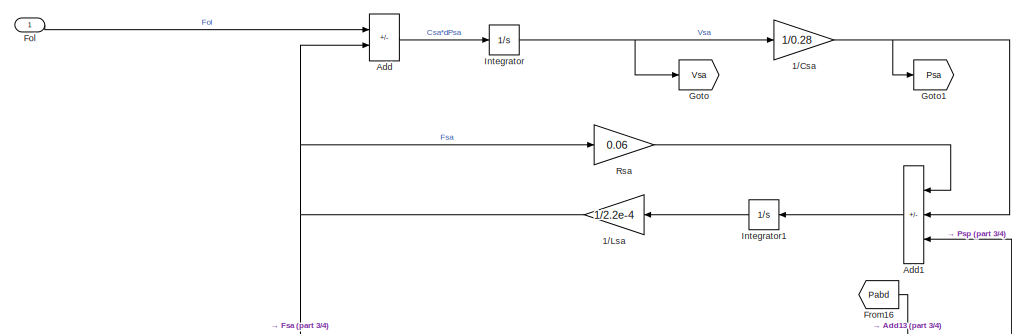
[diagram: Systemic Circulation - part 1/4, top center region]
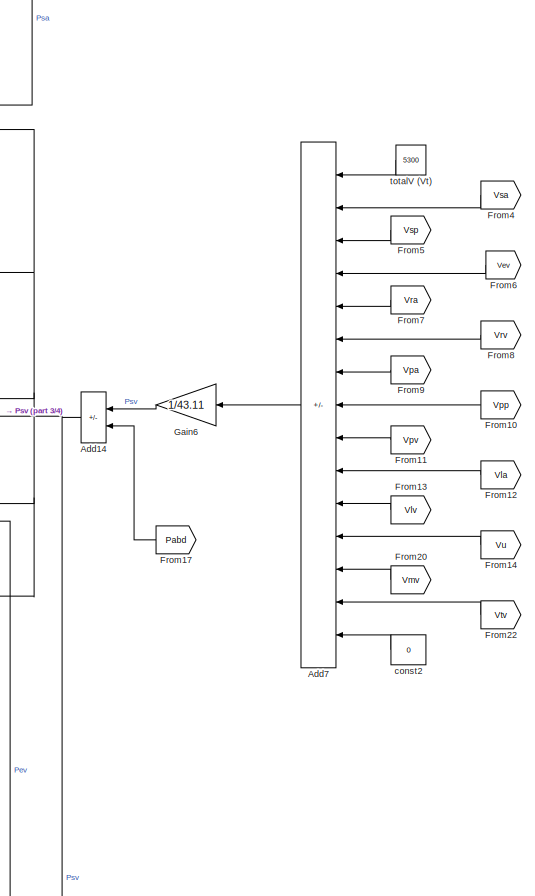
[diagram: Systemic Circulation - part 2/4, top right region]
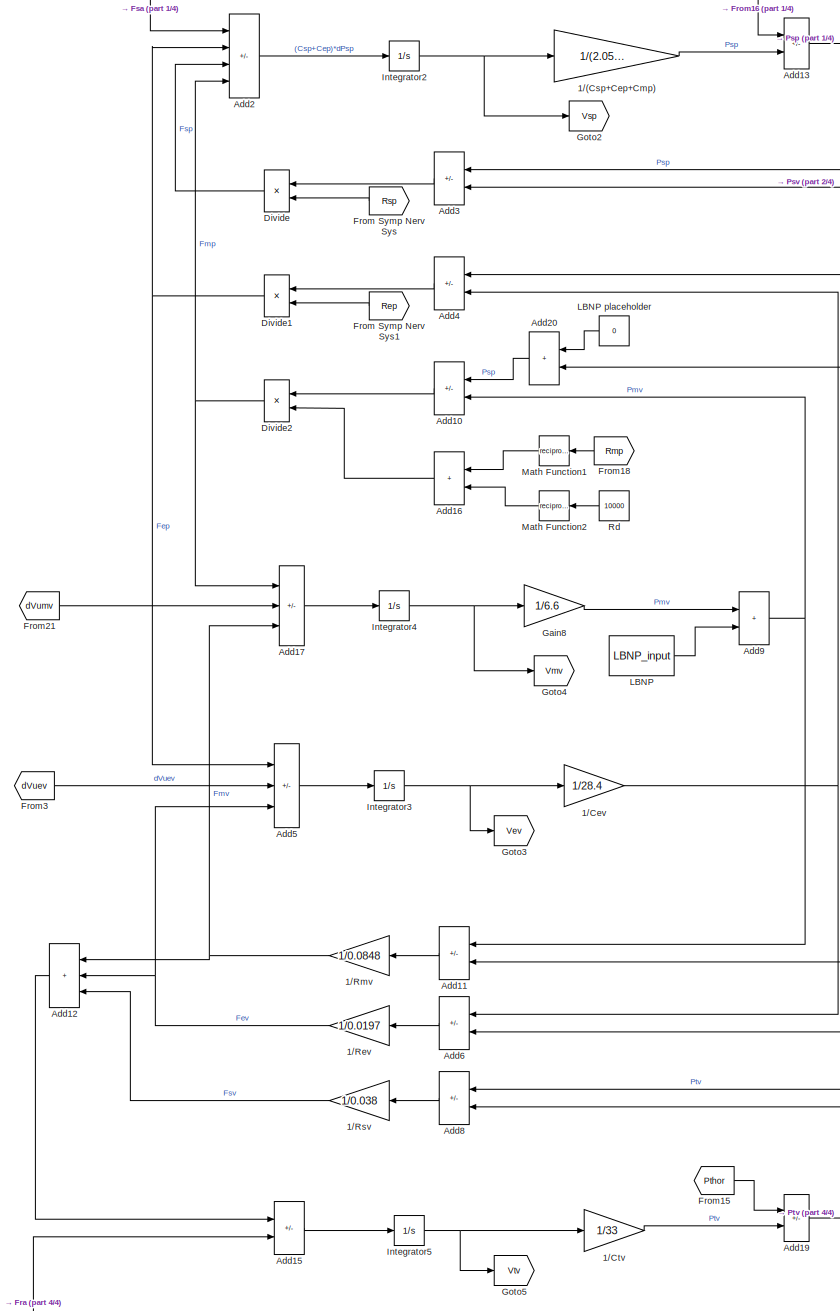
[diagram: Systemic Circulation - part 3/4, center side, full height]
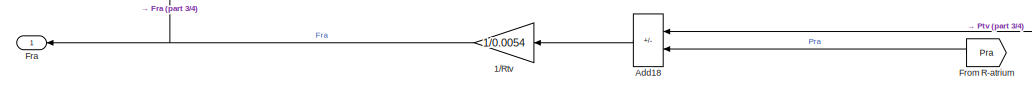
[diagram: Systemic Circulation - part 4/4, bottom center region]
BLOCK [SubSystem] Systemic Circulation
  Ports = [1, 1]
  RequestExecContextInheritance = off
BLOCK [Gain] Systemic Circulation/1//(Csp+Cep+Cmp)
  Gain = 1/(2.05+1.36+0.31)
BLOCK [Gain] Systemic Circulation/1//Cev
  Gain = 1/28.4
BLOCK [Gain] Systemic Circulation/1//Csa
  Gain = 1/0.28
BLOCK [Gain] Systemic Circulation/1//Ctv
  Gain = 1/33
BLOCK [Gain] Systemic Circulation/1//Lsa
  Gain = 1/2.2e-4
BLOCK [Gain] Systemic Circulation/1//Rev
  Gain = 1/0.0197
BLOCK [Gain] Systemic Circulation/1//Rmv
  Gain = 1/0.0848
BLOCK [Gain] Systemic Circulation/1//Rsv
  Gain = 1/0.038
BLOCK [Gain] Systemic Circulation/1//Rtv
  Gain = 1/0.0054
BLOCK [Sum] Systemic Circulation/Add
  IconShape = rectangular
  Inputs = +-
  Ports = [2, 1]
BLOCK [Sum] Systemic Circulation/Add1
  IconShape = rectangular
  Inputs = -+-
  Ports = [3, 1]
BLOCK [Sum] Systemic Circulation/Add10
  IconShape = rectangular
  Inputs = +-
  Ports = [2, 1]
BLOCK [Sum] Systemic Circulation/Add11
  IconShape = rectangular
  Inputs = +-
  Ports = [2, 1]
BLOCK [Sum] Systemic Circulation/Add12
  IconShape = rectangular
  Inputs = +++
  Ports = [3, 1]
BLOCK [Sum] Systemic Circulation/Add13
  IconShape = rectangular
  Inputs = -+
  Ports = [2, 1]
BLOCK [Sum] Systemic Circulation/Add14
  IconShape = rectangular
  Inputs = +-
  Ports = [2, 1]
BLOCK [Sum] Systemic Circulation/Add15
  IconShape = rectangular
  Inputs = +-
  Ports = [2, 1]
BLOCK [Sum] Systemic Circulation/Add16
  IconShape = rectangular
  Ports = [2, 1]
BLOCK [Sum] Systemic Circulation/Add17
  IconShape = rectangular
  Inputs = +--
  Ports = [3, 1]
BLOCK [Sum] Systemic Circulation/Add18
  IconShape = rectangular
  Inputs = +-
  Ports = [2, 1]
BLOCK [Sum] Systemic Circulation/Add19
  IconShape = rectangular
  Inputs = -+
  Ports = [2, 1]
BLOCK [Sum] Systemic Circulation/Add2
  IconShape = rectangular
  Inputs = +---
  Ports = [4, 1]
BLOCK [Sum] Systemic Circulation/Add20
  IconShape = rectangular
  Ports = [2, 1]
BLOCK [Sum] Systemic Circulation/Add3
  IconShape = rectangular
  Inputs = +-
  Ports = [2, 1]
BLOCK [Sum] Systemic Circulation/Add4
  IconShape = rectangular
  Inputs = +-
  Ports = [2, 1]
BLOCK [Sum] Systemic Circulation/Add5
  IconShape = rectangular
  Inputs = +--
  Ports = [3, 1]
BLOCK [Sum] Systemic Circulation/Add6
  IconShape = rectangular
  Inputs = +-
  Ports = [2, 1]
BLOCK [Sum] Systemic Circulation/Add7
  IconShape = rectangular
  Inputs = +--------------
  Ports = [15, 1]
BLOCK [Sum] Systemic Circulation/Add8
  IconShape = rectangular
  Inputs = -+
  Ports = [2, 1]
BLOCK [Sum] Systemic Circulation/Add9
  IconShape = rectangular
  Ports = [2, 1]
BLOCK [Product] Systemic Circulation/Divide
  Inputs = */
  Ports = [2, 1]
BLOCK [Product] Systemic Circulation/Divide1
  Inputs = */
  Ports = [2, 1]
BLOCK [Product] Systemic Circulation/Divide2
  Inputs = **
  Ports = [2, 1]
BLOCK [Inport] Systemic Circulation/Fol
BLOCK [Outport] Systemic Circulation/Fra
BLOCK [From] Systemic Circulation/From R-atrium
  GotoTag = Pra
  TagVisibility = scoped
BLOCK [From] Systemic Circulation/From Symp Nerv Sys
  GotoTag = Rsp
  TagVisibility = scoped
BLOCK [From] Systemic Circulation/From Symp Nerv Sys1
  GotoTag = Rep
  TagVisibility = scoped
BLOCK [From] Systemic Circulation/From10
  GotoTag = Vpp
  TagVisibility = scoped
BLOCK [From] Systemic Circulation/From11
  GotoTag = Vpv
  TagVisibility = scoped
BLOCK [From] Systemic Circulation/From12
  GotoTag = Vla
  TagVisibility = scoped
BLOCK [From] Systemic Circulation/From13
  GotoTag = Vlv
  TagVisibility = scoped
BLOCK [From] Systemic Circulation/From14
  GotoTag = Vu
  TagVisibility = scoped
BLOCK [From] Systemic Circulation/From15
  GotoTag = Pthor
  TagVisibility = scoped
BLOCK [From] Systemic Circulation/From16
  GotoTag = Pabd
  TagVisibility = scoped
BLOCK [From] Systemic Circulation/From17
  GotoTag = Pabd
  TagVisibility = scoped
BLOCK [From] Systemic Circulation/From18
  GotoTag = Rmp
  TagVisibility = scoped
BLOCK [From] Systemic Circulation/From20
  GotoTag = Vmv
BLOCK [From] Systemic Circulation/From21
  GotoTag = dVumv
  TagVisibility = scoped
BLOCK [From] Systemic Circulation/From22
  GotoTag = Vtv
BLOCK [From] Systemic Circulation/From3
  GotoTag = dVuev
  TagVisibility = scoped
BLOCK [From] Systemic Circulation/From4
  GotoTag = Vsa
BLOCK [From] Systemic Circulation/From5
  GotoTag = Vsp
BLOCK [From] Systemic Circulation/From6
  GotoTag = Vev
BLOCK [From] Systemic Circulation/From7
  GotoTag = Vra
  TagVisibility = scoped
BLOCK [From] Systemic Circulation/From8
  GotoTag = Vrv
  TagVisibility = scoped
BLOCK [From] Systemic Circulation/From9
  GotoTag = Vpa
  TagVisibility = scoped
BLOCK [Gain] Systemic Circulation/Gain6
  Gain = 1/43.11
BLOCK [Gain] Systemic Circulation/Gain8
  Gain = 1/6.6
BLOCK [Goto] Systemic Circulation/Goto
  GotoTag = Vsa
BLOCK [Goto] Systemic Circulation/Goto1
  GotoTag = Psa
  TagVisibility = scoped
BLOCK [Goto] Systemic Circulation/Goto2
  GotoTag = Vsp
BLOCK [Goto] Systemic Circulation/Goto3
  GotoTag = Vev
BLOCK [Goto] Systemic Circulation/Goto4
  GotoTag = Vmv
BLOCK [Goto] Systemic Circulation/Goto5
  GotoTag = Vtv
BLOCK [Integrator] Systemic Circulation/Integrator
  Ports = [1, 1]
BLOCK [Integrator] Systemic Circulation/Integrator1
  Ports = [1, 1]
BLOCK [Integrator] Systemic Circulation/Integrator2
  Ports = [1, 1]
BLOCK [Integrator] Systemic Circulation/Integrator3
  Ports = [1, 1]
BLOCK [Integrator] Systemic Circulation/Integrator4
  Ports = [1, 1]
BLOCK [Integrator] Systemic Circulation/Integrator5
  Ports = [1, 1]
BLOCK [Constant] Systemic Circulation/LBNP
  Commented = on
  Value = LBNP_input
BLOCK [Constant] Systemic Circulation/LBNP placeholder
  Value = 0
BLOCK [Math] Systemic Circulation/Math Function1
  Operator = reciprocal
  Ports = [1, 1]
  SignedPower = on
BLOCK [Math] Systemic Circulation/Math Function2
  Operator = reciprocal
  Ports = [1, 1]
  SignedPower = on
BLOCK [Constant] Systemic Circulation/Rd
  Value = 10000
BLOCK [Gain] Systemic Circulation/Rsa
  Gain = 0.06
BLOCK [Constant] Systemic Circulation/const2
  Value = 0
BLOCK [Constant] Systemic Circulation/totalV (Vt)
  Value = 5300
BLOCK [SubSystem] Thoracic Cavity
  Ports = []
  RequestExecContextInheritance = off
BLOCK [Switch] Thoracic Cavity/1 + (Texp//Tinsp)
  Criteria = u2 > Threshold
  InputSameDT = off
  SaturateOnIntegerOverflow = off
  Threshold = 1 + (1.4/1.6)
BLOCK [Product] Thoracic Cavity/Divide2
  Inputs = /*
  Ports = [2, 1]
BLOCK [Goto] Thoracic Cavity/Goto
  GotoTag = Pthor
  TagVisibility = scoped
BLOCK [Goto] Thoracic Cavity/Goto1
  GotoTag = s
  TagVisibility = scoped
BLOCK [Constant] Thoracic Cavity/Integral threshold
BLOCK [Integrator] Thoracic Cavity/Integrator2
  ExternalReset = falling
  Ports = [2, 1, 0, 0, 1]
  ShowStatePort = on
BLOCK [Math] Thoracic Cavity/Math Function2
  Operator = reciprocal
  Ports = [1, 1]
  SignedPower = on
BLOCK [Product] Thoracic Cavity/Product4
  Ports = [2, 1]
BLOCK [Constant] Thoracic Cavity/PthorMax1
  Value = -4
BLOCK [Sum] Thoracic Cavity/Sum2
  Inputs = -+
  Ports = [2, 1]
BLOCK [Switch] Thoracic Cavity/Switch4
  Criteria = u2 > Threshold
  InputSameDT = off
  SaturateOnIntegerOverflow = off
  Threshold = 1
BLOCK [SubSystem] Thoracic Cavity/Thoracic cond. 1
  Ports = [1, 1]
  RequestExecContextInheritance = off
BLOCK [Sum] Thoracic Cavity/Thoracic cond. 1/Add
  IconShape = rectangular
  Inputs = -+
  Ports = [2, 1]
BLOCK [Sum] Thoracic Cavity/Thoracic cond. 1/Add1
  IconShape = rectangular
  Inputs = -+
  Ports = [2, 1]
BLOCK [Product] Thoracic Cavity/Thoracic cond. 1/Divide
  Inputs = */
  Ports = [2, 1]
BLOCK [Outport] Thoracic Cavity/Thoracic cond. 1/Out1
BLOCK [Product] Thoracic Cavity/Thoracic cond. 1/Product
  Inputs = 3
  Ports = [3, 1]
BLOCK [Constant] Thoracic Cavity/Thoracic cond. 1/PthorMax
  Value = -4
BLOCK [Constant] Thoracic Cavity/Thoracic cond. 1/PthorMin
  Value = -9
BLOCK [Inport] Thoracic Cavity/Thoracic cond. 1/S (resp)
BLOCK [Constant] Thoracic Cavity/Thoracic cond. 1/Tinsp
  Value = 1.6
BLOCK [Constant] Thoracic Cavity/Thoracic cond. 1/Tresp
  Value = 4
BLOCK [SubSystem] Thoracic Cavity/Thoracic cond. 2
  Ports = [1, 1]
  RequestExecContextInheritance = off
BLOCK [Sum] Thoracic Cavity/Thoracic cond. 2/Add
  IconShape = rectangular
  Inputs = -+
  Ports = [2, 1]
BLOCK [Sum] Thoracic Cavity/Thoracic cond. 2/Add1
  IconShape = rectangular
  Inputs = -+
  Ports = [2, 1]
BLOCK [Sum] Thoracic Cavity/Thoracic cond. 2/Add2
  IconShape = rectangular
  Inputs = -++
  Ports = [3, 1]
BLOCK [Product] Thoracic Cavity/Thoracic cond. 2/Divide
  Inputs = /*
  Ports = [2, 1]
BLOCK [Outport] Thoracic Cavity/Thoracic cond. 2/Out1
BLOCK [Product] Thoracic Cavity/Thoracic cond. 2/Product
  Ports = [2, 1]
BLOCK [Product] Thoracic Cavity/Thoracic cond. 2/Product1
  Ports = [2, 1]
BLOCK [Constant] Thoracic Cavity/Thoracic cond. 2/PthorMax
  Value = -4
BLOCK [Constant] Thoracic Cavity/Thoracic cond. 2/PthorMin
  Value = -9
BLOCK [Inport] Thoracic Cavity/Thoracic cond. 2/S (resp)
BLOCK [Constant] Thoracic Cavity/Thoracic cond. 2/Texp
  Value = 1.4
BLOCK [Constant] Thoracic Cavity/Thoracic cond. 2/Tinsp
  Value = 1.6
BLOCK [Constant] Thoracic Cavity/Thoracic cond. 2/Tresp
  Value = 4
BLOCK [Constant] Thoracic Cavity/Tinsp
  Value = 1.6
BLOCK [Constant] Thoracic Cavity/Tresp2
  Value = 4
BLOCK [ToWorkspace] To Workspace
  FixptAsFi = on
  MaxDataPoints = inf
  Ports = [1]
  SampleTime = -1
  SaveFormat = Structure With Time
  VariableName = HR
BLOCK [ToWorkspace] To Workspace1
  FixptAsFi = on
  MaxDataPoints = inf
  Ports = [1]
  SampleTime = -1
  VariableName = time
BLOCK [ToWorkspace] To Workspace10
  FixptAsFi = on
  MaxDataPoints = inf
  Ports = [1]
  SampleTime = -1
  VariableName = Pla
BLOCK [ToWorkspace] To Workspace11
  FixptAsFi = on
  MaxDataPoints = inf
  Ports = [1]
  SampleTime = -1
  VariableName = Plv
BLOCK [ToWorkspace] To Workspace12
  FixptAsFi = on
  MaxDataPoints = inf
  Ports = [1]
  SampleTime = -1
  VariableName = Phi
BLOCK [ToWorkspace] To Workspace13
  FixptAsFi = on
  MaxDataPoints = inf
  Ports = [1]
  SampleTime = -1
  VariableName = Tperiod
BLOCK [ToWorkspace] To Workspace14
  FixptAsFi = on
  MaxDataPoints = inf
  Ports = [1]
  SampleTime = -1
  SaveFormat = Structure With Time
  VariableName = Vlung
BLOCK [ToWorkspace] To Workspace15
  FixptAsFi = on
  MaxDataPoints = inf
  Ports = [1]
  SampleTime = -1
  SaveFormat = Structure With Time
  VariableName = HR_TS
BLOCK [ToWorkspace] To Workspace16
  FixptAsFi = on
  MaxDataPoints = inf
  Ports = [1]
  SampleTime = -1
  SaveFormat = Structure With Time
  VariableName = Vlung_TS
BLOCK [ToWorkspace] To Workspace17
  FixptAsFi = on
  MaxDataPoints = inf
  Ports = [1]
  SampleTime = -1
  SaveFormat = Structure With Time
  VariableName = Psa_TS
BLOCK [ToWorkspace] To Workspace2
  FixptAsFi = on
  MaxDataPoints = inf
  Ports = [1]
  SampleTime = -1
  SaveFormat = Structure With Time
  VariableName = Emaxlv
BLOCK [ToWorkspace] To Workspace3
  FixptAsFi = on
  MaxDataPoints = inf
  Ports = [1]
  SampleTime = -1
  SaveFormat = Structure With Time
  VariableName = Rsp
BLOCK [ToWorkspace] To Workspace4
  FixptAsFi = on
  MaxDataPoints = inf
  Ports = [1]
  SampleTime = -1
  SaveFormat = Structure With Time
  VariableName = Rep
BLOCK [ToWorkspace] To Workspace5
  FixptAsFi = on
  MaxDataPoints = inf
  Ports = [1]
  SampleTime = -1
  SaveFormat = Structure With Time
  VariableName = Rmp
BLOCK [ToWorkspace] To Workspace6
  FixptAsFi = on
  MaxDataPoints = inf
  Ports = [1]
  SampleTime = -1
  VariableName = Vlv
BLOCK [ToWorkspace] To Workspace7
  Commented = on
  FixptAsFi = on
  MaxDataPoints = inf
  Ports = [1]
  SampleTime = -1
  VariableName = Psa
BLOCK [ToWorkspace] To Workspace8
  FixptAsFi = on
  MaxDataPoints = inf
  Ports = [1]
  SampleTime = -1
  VariableName = Flow_lv
BLOCK [ToWorkspace] To Workspace9
  FixptAsFi = on
  MaxDataPoints = inf
  Ports = [1]
  SampleTime = -1
  VariableName = Flow_rv
BLOCK [Outport] Tperiod
BLOCK [Outport] Vla
  Port = 12
BLOCK [Outport] Vlung
  Port = 11
BLOCK [Outport] Vlv
  Port = 13
BLOCK [Outport] Vra
  Port = 14
BLOCK [Outport] Vrv
  Port = 15
BLOCK [Outport] Vuev
  Port = 9
BLOCK [Outport] Vumv
  Port = 10
BLOCK [Outport] Vusv
  Port = 8
BLOCK [Outport] fabr
  Port = 45
BLOCK [Outport] facp
  Port = 47
BLOCK [Outport] falr
  Port = 46
BLOCK [Outport] fesh
  Port = 34
BLOCK [Outport] fevEmax
  Port = 36
BLOCK [Outport] fevHR
  Port = 35
BLOCK [Outport] midPt_BR
  Port = 38
BLOCK [Outport] midPt_CP
  Port = 40
BLOCK [Outport] midPt_DMV
  Port = 42
BLOCK [Outport] midPt_LS
  Port = 39
BLOCK [Outport] midPt_NA
  Port = 41
BLOCK [Outport] midPt_NActr
  Port = 43
BLOCK [Outport] midPt_NActr1
  Port = 44
BLOCK [Outport] phi
  Port = 37
ANNOTATION (root): OUTPUTS
ANNOTATION Autonomic Nervous System/Emaxrv_inv/Emaxlv_symp1: 1/0.5903 gain factor is to account for differences between LV and RV performance (Ursino 1998 model uses a 0.59 factor to account for lower elasticity of RV to LV) - use 1/0.5903 to account for inverse relationship being calculated in this model, which accounts for accentuated antagonism of sympathetic and vagal influences on elasticity
ANNOTATION Autonomic Nervous System/Emaxrv_inv/Emaxlv_vag1: 1/0.5903 gain factor is to account for differences between LV and RV performance (Ursino 1998 model uses a 0.59 factor to account for lower elasticity of RV to LV) - use 1/0.5903 to account for inverse relationship being calculated in this model, which accounts for accentuated antagonism of sympathetic and vagal influences on elasticity
ANNOTATION Autonomic Nervous System/Heart_period: Calculate time of cardiac phase midpoint
ANNOTATION Autonomic Nervous System/Heart_period: Effect on subsequent cycle
ANNOTATION Autonomic Nervous System/Heart_period: Iano, 1973
ANNOTATION Autonomic Nervous System/Heart_period: Nerve activity timing
ANNOTATION Autonomic Nervous System/Heart_period: Park Model calculation sympathetic and parasympathetic influence without cardiac phase calculation
ANNOTATION Autonomic Nervous System/Heart_period: Spikes last ~10ms (McAllen, Figure 8a)
ANNOTATION Autonomic Nervous System/Heart_period: convert to index
ANNOTATION Autonomic Nervous System/Heart_period: time difference between stimulation and cycle midpoint time
ANNOTATION Autonomic Nervous System/Heart_period/Phi_activity2: 1/T
ANNOTATION Autonomic Nervous System/Heart_period/Phi_activity2: Tsys
ANNOTATION Autonomic Nervous System/Heart_period/Phi_activity2: Tsys/T
ANNOTATION Autonomic Nervous System/Heart_period/Phi_activity2: u(t)
ANNOTATION Autonomic Nervous System/Heart_period/Phi_activity2: u*T/Tsys
ANNOTATION Autonomic Nervous System/ICN: Assumptions Inputs to PN can be modeled as linear combinations (Shinohara, 2012; Magosso, "Theoretical analysis...connection", 2002; Park, 2020) Inputs to LCN can be modeled as linear combinations with sympathetic inputs decreasing firing frequency (negative gain) Only one set of LCNs (same LCN firing frequency goes to the DMV and NA principal neruons)
ANNOTATION Autonomic Nervous System/ICN: ICN
ANNOTATION Autonomic Nervous System/ICN/PN-DMV: tau parameter exploration Single 1st order ODE filter Baseline tau = 0.5 tau << 1 produces weird spikes in Emaxlv at beginning tau ~ 1 has time delay without wierd behavior tau >> 1 no time delay and no weird behavior Emaxlv seems to settle around 2 no matter what, but in Park model it settles to 3
ANNOTATION Left Heart: Fla = flow out of pulmonary veins (out of pulmonary circulation)
ANNOTATION Pulmonary Circulation: Pulmonary arteries
ANNOTATION Pulmonary Circulation: Pulmonary periphery
ANNOTATION Pulmonary Circulation: Pulmonary venous
ANNOTATION Pulmonary Circulation: | | | | | | | | | | | | | | | |
ANNOTATION Pulmonary Circulation: | | | | | | | | | | | | | | | | | |
ANNOTATION Pulmonary Circulation: | | | | | | | | | | | | | | | | | | | |
ANNOTATION Pulmonary Circulation: 01 Mar 2016 Chaned iniial condition of integration (Cpa*dPpa) from 100 to 0 Chaned iniial condition of integration (Cpp*dPpp) from 100 to 0 (from Zhe Hu model)
ANNOTATION Pulmonary Circulation: dP due to flow through pa
LINE Abdominal Cavity/(Tinsp + Texp)//Tresp:1 -> Abdominal Cavity/Goto:1
LINE Abdominal Cavity/Abdominal condition 1/Constant:1 -> Abdominal Cavity/Abdominal condition 1/Product:2
LINE Abdominal Cavity/Abdominal condition 1/Divide:1 -> Abdominal Cavity/Abdominal condition 1/Product:3
LINE Abdominal Cavity/Abdominal condition 1/Gain:1 -> Abdominal Cavity/Abdominal condition 1/Divide:2
LINE Abdominal Cavity/Abdominal condition 1/Product:1 -> Abdominal Cavity/Abdominal condition 1/Out1:1
LINE Abdominal Cavity/Abdominal condition 1/S (resp):1 -> Abdominal Cavity/Abdominal condition 1/Product:1
LINE Abdominal Cavity/Abdominal condition 1/Tinsp:1 -> Abdominal Cavity/Abdominal condition 1/Gain:1
LINE Abdominal Cavity/Abdominal condition 1/Tresp2:1 -> Abdominal Cavity/Abdominal condition 1/Divide:1
LINE Abdominal Cavity/Abdominal condition 1:1 -> Abdominal Cavity/Tinsp//(2*Tresp):3
LINE Abdominal Cavity/Abdominal condition 2/Add:1 -> Abdominal Cavity/Abdominal condition 2/Divide1:1
LINE Abdominal Cavity/Abdominal condition 2/Constant:1 -> Abdominal Cavity/Abdominal condition 2/Divide1:3
LINE Abdominal Cavity/Abdominal condition 2/Divide1:1 -> Abdominal Cavity/Abdominal condition 2/Out1:1
LINE Abdominal Cavity/Abdominal condition 2/Product:1 -> Abdominal Cavity/Abdominal condition 2/Add:1
LINE Abdominal Cavity/Abdominal condition 2/S (resp):1 -> Abdominal Cavity/Abdominal condition 2/Product:1
NET Abdominal Cavity/Abdominal condition 2/Texp:1 -> Abdominal Cavity/Abdominal condition 2/Add:3, Abdominal Cavity/Abdominal condition 2/Divide1:2
LINE Abdominal Cavity/Abdominal condition 2/Tinsp:1 -> Abdominal Cavity/Abdominal condition 2/Add:2
LINE Abdominal Cavity/Abdominal condition 2/Tresp1:1 -> Abdominal Cavity/Abdominal condition 2/Product:2
LINE Abdominal Cavity/Abdominal condition 2:1 -> Abdominal Cavity/Tinsp//Tresp:1
LINE Abdominal Cavity/Constant2:1 -> Abdominal Cavity/(Tinsp + Texp)//Tresp:1
LINE Abdominal Cavity/Constant:1 -> Abdominal Cavity/Tinsp//(2*Tresp):1
LINE Abdominal Cavity/Integral threshold:1 -> Abdominal Cavity/Sum3:2
NET Abdominal Cavity/Integrator3:1 -> Abdominal Cavity/(Tinsp + Texp)//Tresp:2, Abdominal Cavity/Abdominal condition 1:1, Abdominal Cavity/Abdominal condition 2:1, Abdominal Cavity/Tinsp//(2*Tresp):2, Abdominal Cavity/Tinsp//Tresp:2
LINE Abdominal Cavity/Integrator3:state -> Abdominal Cavity/Sum3:1
LINE Abdominal Cavity/Math Function3:1 -> Abdominal Cavity/Integrator3:1
LINE Abdominal Cavity/Sum3:1 -> Abdominal Cavity/Integrator3:2
LINE Abdominal Cavity/Tinsp//(2*Tresp):1 -> Abdominal Cavity/Tinsp//Tresp:3
LINE Abdominal Cavity/Tinsp//Tresp:1 -> Abdominal Cavity/(Tinsp + Texp)//Tresp:3
LINE Abdominal Cavity/Tresp:1 -> Abdominal Cavity/Math Function3:1
LINE Autonomic Nervous System/ Brainstem efferent "filters"/Add1:1 -> Autonomic Nervous System/ Brainstem efferent "filters"/fap:1
LINE Autonomic Nervous System/ Brainstem efferent "filters"/Add3:1 -> Autonomic Nervous System/ Brainstem efferent "filters"/fav:1
LINE Autonomic Nervous System/ Brainstem efferent "filters"/Add4:1 -> Autonomic Nervous System/ Brainstem efferent "filters"/Gach:1
LINE Autonomic Nervous System/ Brainstem efferent "filters"/Add5:1 -> Autonomic Nervous System/ Brainstem efferent "filters"/fah:1
LINE Autonomic Nervous System/ Brainstem efferent "filters"/Add6:1 -> Autonomic Nervous System/ Brainstem efferent "filters"/Gacv:1
LINE Autonomic Nervous System/ Brainstem efferent "filters"/Add:1 -> Autonomic Nervous System/ Brainstem efferent "filters"/Gacp:1
LINE Autonomic Nervous System/ Brainstem efferent "filters"/Constant2:1 -> Autonomic Nervous System/ Brainstem efferent "filters"/Add1:4
LINE Autonomic Nervous System/ Brainstem efferent "filters"/Gabh:1 -> Autonomic Nervous System/ Brainstem efferent "filters"/Add5:1
LINE Autonomic Nervous System/ Brainstem efferent "filters"/Gabp:1 -> Autonomic Nervous System/ Brainstem efferent "filters"/Add1:1
LINE Autonomic Nervous System/ Brainstem efferent "filters"/Gabv:1 -> Autonomic Nervous System/ Brainstem efferent "filters"/Add3:1
LINE Autonomic Nervous System/ Brainstem efferent "filters"/Gach:1 -> Autonomic Nervous System/ Brainstem efferent "filters"/Add5:3
LINE Autonomic Nervous System/ Brainstem efferent "filters"/Gacp:1 -> Autonomic Nervous System/ Brainstem efferent "filters"/Add1:3
LINE Autonomic Nervous System/ Brainstem efferent "filters"/Gacv:1 -> Autonomic Nervous System/ Brainstem efferent "filters"/Add3:2
LINE Autonomic Nervous System/ Brainstem efferent "filters"/Gain8:1 -> Autonomic Nervous System/ Brainstem efferent "filters"/Add5:2
LINE Autonomic Nervous System/ Brainstem efferent "filters"/Galh:1 -> Autonomic Nervous System/ Brainstem efferent "filters"/Gain8:1
LINE Autonomic Nervous System/ Brainstem efferent "filters"/Galp:1 -> Autonomic Nervous System/ Brainstem efferent "filters"/Add1:2
NET Autonomic Nervous System/ Brainstem efferent "filters"/fabr:1 -> Autonomic Nervous System/ Brainstem efferent "filters"/Gabh:1, Autonomic Nervous System/ Brainstem efferent "filters"/Gabp:1, Autonomic Nervous System/ Brainstem efferent "filters"/Gabv:1
NET Autonomic Nervous System/ Brainstem efferent "filters"/fac0:1 -> Autonomic Nervous System/ Brainstem efferent "filters"/Add4:2, Autonomic Nervous System/ Brainstem efferent "filters"/Add6:1, Autonomic Nervous System/ Brainstem efferent "filters"/Add:2
NET Autonomic Nervous System/ Brainstem efferent "filters"/facp:1 -> Autonomic Nervous System/ Brainstem efferent "filters"/Add4:1, Autonomic Nervous System/ Brainstem efferent "filters"/Add6:2, Autonomic Nervous System/ Brainstem efferent "filters"/Add:1
NET Autonomic Nervous System/ Brainstem efferent "filters"/falr:1 -> Autonomic Nervous System/ Brainstem efferent "filters"/Galh:1, Autonomic Nervous System/ Brainstem efferent "filters"/Galp:1
LINE Autonomic Nervous System/ Brainstem efferent "filters":1 -> Autonomic Nervous System/ Symp. Efferent Pathways:1
LINE Autonomic Nervous System/ Brainstem efferent "filters":2 -> Autonomic Nervous System/ Symp. Efferent Pathways:2
LINE Autonomic Nervous System/ Brainstem efferent "filters":3 -> Autonomic Nervous System/ Symp. Efferent Pathways:3
LINE Autonomic Nervous System/ Symp. Efferent Pathways/-kes1:1 -> Autonomic Nervous System/ Symp. Efferent Pathways/Math Function2:1
LINE Autonomic Nervous System/ Symp. Efferent Pathways/-kes2:1 -> Autonomic Nervous System/ Symp. Efferent Pathways/Math Function3:1
LINE Autonomic Nervous System/ Symp. Efferent Pathways/-kes:1 -> Autonomic Nervous System/ Symp. Efferent Pathways/Math Function1:1
LINE Autonomic Nervous System/ Symp. Efferent Pathways/Add1:1 -> Autonomic Nervous System/ Symp. Efferent Pathways/fesh:1
LINE Autonomic Nervous System/ Symp. Efferent Pathways/Add2:1 -> Autonomic Nervous System/ Symp. Efferent Pathways/fesp:1
LINE Autonomic Nervous System/ Symp. Efferent Pathways/Add3:1 -> Autonomic Nervous System/ Symp. Efferent Pathways/fesv:1
LINE Autonomic Nervous System/ Symp. Efferent Pathways/Math Function1:1 -> Autonomic Nervous System/ Symp. Efferent Pathways/fes0-fes_inf2:1
LINE Autonomic Nervous System/ Symp. Efferent Pathways/Math Function2:1 -> Autonomic Nervous System/ Symp. Efferent Pathways/fes0-fes_inf1:1
LINE Autonomic Nervous System/ Symp. Efferent Pathways/Math Function3:1 -> Autonomic Nervous System/ Symp. Efferent Pathways/fes0-fes_inf:1
LINE Autonomic Nervous System/ Symp. Efferent Pathways/fah:1 -> Autonomic Nervous System/ Symp. Efferent Pathways/-kes:1
LINE Autonomic Nervous System/ Symp. Efferent Pathways/fap:1 -> Autonomic Nervous System/ Symp. Efferent Pathways/-kes1:1
LINE Autonomic Nervous System/ Symp. Efferent Pathways/fav:1 -> Autonomic Nervous System/ Symp. Efferent Pathways/-kes2:1
LINE Autonomic Nervous System/ Symp. Efferent Pathways/fes0-fes_inf1:1 -> Autonomic Nervous System/ Symp. Efferent Pathways/Add2:3
LINE Autonomic Nervous System/ Symp. Efferent Pathways/fes0-fes_inf2:1 -> Autonomic Nervous System/ Symp. Efferent Pathways/Add1:3
LINE Autonomic Nervous System/ Symp. Efferent Pathways/fes0-fes_inf:1 -> Autonomic Nervous System/ Symp. Efferent Pathways/Add3:3
NET Autonomic Nervous System/ Symp. Efferent Pathways/fes_cc:1 -> Autonomic Nervous System/ Symp. Efferent Pathways/Add1:1, Autonomic Nervous System/ Symp. Efferent Pathways/Add2:1, Autonomic Nervous System/ Symp. Efferent Pathways/Add3:1
NET Autonomic Nervous System/ Symp. Efferent Pathways/fes_inf:1 -> Autonomic Nervous System/ Symp. Efferent Pathways/Add1:2, Autonomic Nervous System/ Symp. Efferent Pathways/Add2:2, Autonomic Nervous System/ Symp. Efferent Pathways/Add3:2
LINE Autonomic Nervous System/ Symp. Efferent Pathways:1 -> Autonomic Nervous System/Goto11:1
NET Autonomic Nervous System/ Symp. Efferent Pathways:2 -> Autonomic Nervous System/Rep:1, Autonomic Nervous System/Rmp:1, Autonomic Nervous System/Rsp:1
NET Autonomic Nervous System/ Symp. Efferent Pathways:3 -> Autonomic Nervous System/Vuev:1, Autonomic Nervous System/Vumv:1, Autonomic Nervous System/Vusv:1
LINE Autonomic Nervous System/Add:1 -> Autonomic Nervous System/Goto:1
LINE Autonomic Nervous System/Brainstem Vagal efferents/Add1:1 -> Autonomic Nervous System/Brainstem Vagal efferents/fevEmax:1
NET Autonomic Nervous System/Brainstem Vagal efferents/Add2:1 -> Autonomic Nervous System/Brainstem Vagal efferents/Goto1:1, Autonomic Nervous System/Brainstem Vagal efferents/New Sigmoid Form2:1
NET Autonomic Nervous System/Brainstem Vagal efferents/Add3:1 -> Autonomic Nervous System/Brainstem Vagal efferents/Divide1:1, Autonomic Nervous System/Brainstem Vagal efferents/Switch:1, Autonomic Nervous System/Brainstem Vagal efferents/To Workspace:1
LINE Autonomic Nervous System/Brainstem Vagal efferents/BRcellgrpGainDMV:1 -> Autonomic Nervous System/Brainstem Vagal efferents/Add2:1
LINE Autonomic Nervous System/Brainstem Vagal efferents/BRcellgrpGainNTS:1 -> Autonomic Nervous System/Brainstem Vagal efferents/Add3:1
LINE Autonomic Nervous System/Brainstem Vagal efferents/CPcellgrpGainDMV:1 -> Autonomic Nervous System/Brainstem Vagal efferents/Add2:3
LINE Autonomic Nervous System/Brainstem Vagal efferents/CPcellgrpGainNTS:1 -> Autonomic Nervous System/Brainstem Vagal efferents/Add3:3
LINE Autonomic Nervous System/Brainstem Vagal efferents/Divide1:1 -> Autonomic Nervous System/Brainstem Vagal efferents/Switch:3
NET Autonomic Nervous System/Brainstem Vagal efferents/Divide:1 -> Autonomic Nervous System/Brainstem Vagal efferents/New Sigmoid Form3:2, Autonomic Nervous System/Brainstem Vagal efferents/midPt_NActr:1
LINE Autonomic Nervous System/Brainstem Vagal efferents/From9:1 -> Autonomic Nervous System/Brainstem Vagal efferents/Divide:2
LINE Autonomic Nervous System/Brainstem Vagal efferents/From:1 -> Autonomic Nervous System/Brainstem Vagal efferents/Switch:2
LINE Autonomic Nervous System/Brainstem Vagal efferents/LScellgrpGainDMV:1 -> Autonomic Nervous System/Brainstem Vagal efferents/Add2:2
LINE Autonomic Nervous System/Brainstem Vagal efferents/LScellgrpGainNTS:1 -> Autonomic Nervous System/Brainstem Vagal efferents/Add3:2
LINE Autonomic Nervous System/Brainstem Vagal efferents/NA/Constant1:1 -> Autonomic Nervous System/Brainstem Vagal efferents/NA/Sum3:1
LINE Autonomic Nervous System/Brainstem Vagal efferents/NA/Divide2:1 -> Autonomic Nervous System/Brainstem Vagal efferents/NA/Sum4:2
LINE Autonomic Nervous System/Brainstem Vagal efferents/NA/Divide3:1 -> Autonomic Nervous System/Brainstem Vagal efferents/NA/Exp1:1
LINE Autonomic Nervous System/Brainstem Vagal efferents/NA/Exp1:1 -> Autonomic Nervous System/Brainstem Vagal efferents/NA/Sum3:2
LINE Autonomic Nervous System/Brainstem Vagal efferents/NA/Sum1:1 -> Autonomic Nervous System/Brainstem Vagal efferents/NA/Divide2:1
LINE Autonomic Nervous System/Brainstem Vagal efferents/NA/Sum3:1 -> Autonomic Nervous System/Brainstem Vagal efferents/NA/Divide2:2
LINE Autonomic Nervous System/Brainstem Vagal efferents/NA/Sum4:1 -> Autonomic Nervous System/Brainstem Vagal efferents/NA/input:1
LINE Autonomic Nervous System/Brainstem Vagal efferents/NA/alpha:1 -> Autonomic Nervous System/Brainstem Vagal efferents/NA/Sum1:1
NET Autonomic Nervous System/Brainstem Vagal efferents/NA/beta:1 -> Autonomic Nervous System/Brainstem Vagal efferents/NA/Sum1:2, Autonomic Nervous System/Brainstem Vagal efferents/NA/Sum4:1, Autonomic Nervous System/Brainstem Vagal efferents/NA/maxout_NA:1
LINE Autonomic Nervous System/Brainstem Vagal efferents/NA/fabr:1 -> Autonomic Nervous System/Brainstem Vagal efferents/NA/Divide3:1
LINE Autonomic Nervous System/Brainstem Vagal efferents/NA/fcs0:1 -> Autonomic Nervous System/Brainstem Vagal efferents/NA/fmidgain:1
NET Autonomic Nervous System/Brainstem Vagal efferents/NA/fmidgain:1 -> Autonomic Nervous System/Brainstem Vagal efferents/NA/Divide3:2, Autonomic Nervous System/Brainstem Vagal efferents/NA/midPt_NA:1
LINE Autonomic Nervous System/Brainstem Vagal efferents/NA/k, gain:1 -> Autonomic Nervous System/Brainstem Vagal efferents/NA/Exp1:2
NET Autonomic Nervous System/Brainstem Vagal efferents/NA:1 -> Autonomic Nervous System/Brainstem Vagal efferents/New Sigmoid Form3:1, Autonomic Nervous System/Brainstem Vagal efferents/fevHR:1
LINE Autonomic Nervous System/Brainstem Vagal efferents/NTS/BR cell group/Constant1:1 -> Autonomic Nervous System/Brainstem Vagal efferents/NTS/BR cell group/Sum3:1
LINE Autonomic Nervous System/Brainstem Vagal efferents/NTS/BR cell group/Divide2:1 -> Autonomic Nervous System/Brainstem Vagal efferents/NTS/BR cell group/Sum4:2
LINE Autonomic Nervous System/Brainstem Vagal efferents/NTS/BR cell group/Divide3:1 -> Autonomic Nervous System/Brainstem Vagal efferents/NTS/BR cell group/Exp1:1
LINE Autonomic Nervous System/Brainstem Vagal efferents/NTS/BR cell group/Exp1:1 -> Autonomic Nervous System/Brainstem Vagal efferents/NTS/BR cell group/Sum3:2
LINE Autonomic Nervous System/Brainstem Vagal efferents/NTS/BR cell group/Sum1:1 -> Autonomic Nervous System/Brainstem Vagal efferents/NTS/BR cell group/Divide2:1
LINE Autonomic Nervous System/Brainstem Vagal efferents/NTS/BR cell group/Sum3:1 -> Autonomic Nervous System/Brainstem Vagal efferents/NTS/BR cell group/Divide2:2
LINE Autonomic Nervous System/Brainstem Vagal efferents/NTS/BR cell group/Sum4:1 -> Autonomic Nervous System/Brainstem Vagal efferents/NTS/BR cell group/ff BR cell grp:1
LINE Autonomic Nervous System/Brainstem Vagal efferents/NTS/BR cell group/alpha:1 -> Autonomic Nervous System/Brainstem Vagal efferents/NTS/BR cell group/Sum1:1
NET Autonomic Nervous System/Brainstem Vagal efferents/NTS/BR cell group/beta:1 -> Autonomic Nervous System/Brainstem Vagal efferents/NTS/BR cell group/Sum1:2, Autonomic Nervous System/Brainstem Vagal efferents/NTS/BR cell group/Sum4:1
LINE Autonomic Nervous System/Brainstem Vagal efferents/NTS/BR cell group/fabr:1 -> Autonomic Nervous System/Brainstem Vagal efferents/NTS/BR cell group/Divide3:1
LINE Autonomic Nervous System/Brainstem Vagal efferents/NTS/BR cell group/fcs0:1 -> Autonomic Nervous System/Brainstem Vagal efferents/NTS/BR cell group/fmidgain:1
NET Autonomic Nervous System/Brainstem Vagal efferents/NTS/BR cell group/fmidgain:1 -> Autonomic Nervous System/Brainstem Vagal efferents/NTS/BR cell group/Divide3:2, Autonomic Nervous System/Brainstem Vagal efferents/NTS/BR cell group/midPt_BR:1
LINE Autonomic Nervous System/Brainstem Vagal efferents/NTS/BR cell group/k, gain:1 -> Autonomic Nervous System/Brainstem Vagal efferents/NTS/BR cell group/Exp1:2
NET Autonomic Nervous System/Brainstem Vagal efferents/NTS/BR cell group:1 -> Autonomic Nervous System/Brainstem Vagal efferents/NTS/Goto:1, Autonomic Nervous System/Brainstem Vagal efferents/NTS/ff BR cell grp:1
LINE Autonomic Nervous System/Brainstem Vagal efferents/NTS/New Sigmoid Form CP/Constant1:1 -> Autonomic Nervous System/Brainstem Vagal efferents/NTS/New Sigmoid Form CP/Sum3:1
LINE Autonomic Nervous System/Brainstem Vagal efferents/NTS/New Sigmoid Form CP/Divide2:1 -> Autonomic Nervous System/Brainstem Vagal efferents/NTS/New Sigmoid Form CP/Sum4:2
LINE Autonomic Nervous System/Brainstem Vagal efferents/NTS/New Sigmoid Form CP/Divide3:1 -> Autonomic Nervous System/Brainstem Vagal efferents/NTS/New Sigmoid Form CP/Exp1:1
LINE Autonomic Nervous System/Brainstem Vagal efferents/NTS/New Sigmoid Form CP/Exp1:1 -> Autonomic Nervous System/Brainstem Vagal efferents/NTS/New Sigmoid Form CP/Sum3:2
LINE Autonomic Nervous System/Brainstem Vagal efferents/NTS/New Sigmoid Form CP/Sum1:1 -> Autonomic Nervous System/Brainstem Vagal efferents/NTS/New Sigmoid Form CP/Divide2:1
LINE Autonomic Nervous System/Brainstem Vagal efferents/NTS/New Sigmoid Form CP/Sum3:1 -> Autonomic Nervous System/Brainstem Vagal efferents/NTS/New Sigmoid Form CP/Divide2:2
LINE Autonomic Nervous System/Brainstem Vagal efferents/NTS/New Sigmoid Form CP/Sum4:1 -> Autonomic Nervous System/Brainstem Vagal efferents/NTS/New Sigmoid Form CP/ff LS cell grp:1
LINE Autonomic Nervous System/Brainstem Vagal efferents/NTS/New Sigmoid Form CP/alpha:1 -> Autonomic Nervous System/Brainstem Vagal efferents/NTS/New Sigmoid Form CP/Sum1:1
NET Autonomic Nervous System/Brainstem Vagal efferents/NTS/New Sigmoid Form CP/beta:1 -> Autonomic Nervous System/Brainstem Vagal efferents/NTS/New Sigmoid Form CP/Sum1:2, Autonomic Nervous System/Brainstem Vagal efferents/NTS/New Sigmoid Form CP/Sum4:1
NET Autonomic Nervous System/Brainstem Vagal efferents/NTS/New Sigmoid Form CP/fmidgain:1 -> Autonomic Nervous System/Brainstem Vagal efferents/NTS/New Sigmoid Form CP/Divide3:2, Autonomic Nervous System/Brainstem Vagal efferents/NTS/New Sigmoid Form CP/midPt_CP:1
LINE Autonomic Nervous System/Brainstem Vagal efferents/NTS/New Sigmoid Form CP/fmidinput:1 -> Autonomic Nervous System/Brainstem Vagal efferents/NTS/New Sigmoid Form CP/fmidgain:1
LINE Autonomic Nervous System/Brainstem Vagal efferents/NTS/New Sigmoid Form CP/input:1 -> Autonomic Nervous System/Brainstem Vagal efferents/NTS/New Sigmoid Form CP/Divide3:1
LINE Autonomic Nervous System/Brainstem Vagal efferents/NTS/New Sigmoid Form CP/k, gain:1 -> Autonomic Nervous System/Brainstem Vagal efferents/NTS/New Sigmoid Form CP/Exp1:2
NET Autonomic Nervous System/Brainstem Vagal efferents/NTS/New Sigmoid Form CP:1 -> Autonomic Nervous System/Brainstem Vagal efferents/NTS/CPcellgrp_ff:1, Autonomic Nervous System/Brainstem Vagal efferents/NTS/ff CP cell grp:1
LINE Autonomic Nervous System/Brainstem Vagal efferents/NTS/New Sigmoid Form LS/Constant1:1 -> Autonomic Nervous System/Brainstem Vagal efferents/NTS/New Sigmoid Form LS/Sum3:1
LINE Autonomic Nervous System/Brainstem Vagal efferents/NTS/New Sigmoid Form LS/Divide2:1 -> Autonomic Nervous System/Brainstem Vagal efferents/NTS/New Sigmoid Form LS/Sum4:2
LINE Autonomic Nervous System/Brainstem Vagal efferents/NTS/New Sigmoid Form LS/Divide3:1 -> Autonomic Nervous System/Brainstem Vagal efferents/NTS/New Sigmoid Form LS/Exp1:1
LINE Autonomic Nervous System/Brainstem Vagal efferents/NTS/New Sigmoid Form LS/Exp1:1 -> Autonomic Nervous System/Brainstem Vagal efferents/NTS/New Sigmoid Form LS/Sum3:2
LINE Autonomic Nervous System/Brainstem Vagal efferents/NTS/New Sigmoid Form LS/Sum1:1 -> Autonomic Nervous System/Brainstem Vagal efferents/NTS/New Sigmoid Form LS/Divide2:1
LINE Autonomic Nervous System/Brainstem Vagal efferents/NTS/New Sigmoid Form LS/Sum3:1 -> Autonomic Nervous System/Brainstem Vagal efferents/NTS/New Sigmoid Form LS/Divide2:2
LINE Autonomic Nervous System/Brainstem Vagal efferents/NTS/New Sigmoid Form LS/Sum4:1 -> Autonomic Nervous System/Brainstem Vagal efferents/NTS/New Sigmoid Form LS/ff LS cell grp:1
LINE Autonomic Nervous System/Brainstem Vagal efferents/NTS/New Sigmoid Form LS/alpha:1 -> Autonomic Nervous System/Brainstem Vagal efferents/NTS/New Sigmoid Form LS/Sum1:1
NET Autonomic Nervous System/Brainstem Vagal efferents/NTS/New Sigmoid Form LS/beta:1 -> Autonomic Nervous System/Brainstem Vagal efferents/NTS/New Sigmoid Form LS/Sum1:2, Autonomic Nervous System/Brainstem Vagal efferents/NTS/New Sigmoid Form LS/Sum4:1
NET Autonomic Nervous System/Brainstem Vagal efferents/NTS/New Sigmoid Form LS/fmidgain:1 -> Autonomic Nervous System/Brainstem Vagal efferents/NTS/New Sigmoid Form LS/Divide3:2, Autonomic Nervous System/Brainstem Vagal efferents/NTS/New Sigmoid Form LS/midPt_LS:1
LINE Autonomic Nervous System/Brainstem Vagal efferents/NTS/New Sigmoid Form LS/fmidinput:1 -> Autonomic Nervous System/Brainstem Vagal efferents/NTS/New Sigmoid Form LS/fmidgain:1
LINE Autonomic Nervous System/Brainstem Vagal efferents/NTS/New Sigmoid Form LS/input:1 -> Autonomic Nervous System/Brainstem Vagal efferents/NTS/New Sigmoid Form LS/Divide3:1
LINE Autonomic Nervous System/Brainstem Vagal efferents/NTS/New Sigmoid Form LS/k, gain:1 -> Autonomic Nervous System/Brainstem Vagal efferents/NTS/New Sigmoid Form LS/Exp1:2
NET Autonomic Nervous System/Brainstem Vagal efferents/NTS/New Sigmoid Form LS:1 -> Autonomic Nervous System/Brainstem Vagal efferents/NTS/LScellgrp_ff:1, Autonomic Nervous System/Brainstem Vagal efferents/NTS/ff LS cell grp:1
LINE Autonomic Nervous System/Brainstem Vagal efferents/NTS/fabr:1 -> Autonomic Nervous System/Brainstem Vagal efferents/NTS/BR cell group:1
LINE Autonomic Nervous System/Brainstem Vagal efferents/NTS/facp:1 -> Autonomic Nervous System/Brainstem Vagal efferents/NTS/New Sigmoid Form CP:1
LINE Autonomic Nervous System/Brainstem Vagal efferents/NTS/falsr:1 -> Autonomic Nervous System/Brainstem Vagal efferents/NTS/New Sigmoid Form LS:1
NET Autonomic Nervous System/Brainstem Vagal efferents/NTS:1 -> Autonomic Nervous System/Brainstem Vagal efferents/BRcellgrpGainDMV:1, Autonomic Nervous System/Brainstem Vagal efferents/BRcellgrpGainNTS:1
NET Autonomic Nervous System/Brainstem Vagal efferents/NTS:2 -> Autonomic Nervous System/Brainstem Vagal efferents/LScellgrpGainDMV:1, Autonomic Nervous System/Brainstem Vagal efferents/LScellgrpGainNTS:1
NET Autonomic Nervous System/Brainstem Vagal efferents/NTS:3 -> Autonomic Nervous System/Brainstem Vagal efferents/CPcellgrpGainDMV:1, Autonomic Nervous System/Brainstem Vagal efferents/CPcellgrpGainNTS:1
LINE Autonomic Nervous System/Brainstem Vagal efferents/New Sigmoid Form2/Constant1:1 -> Autonomic Nervous System/Brainstem Vagal efferents/New Sigmoid Form2/Sum3:1
LINE Autonomic Nervous System/Brainstem Vagal efferents/New Sigmoid Form2/Divide2:1 -> Autonomic Nervous System/Brainstem Vagal efferents/New Sigmoid Form2/Sum4:2
LINE Autonomic Nervous System/Brainstem Vagal efferents/New Sigmoid Form2/Divide3:1 -> Autonomic Nervous System/Brainstem Vagal efferents/New Sigmoid Form2/Exp1:1
LINE Autonomic Nervous System/Brainstem Vagal efferents/New Sigmoid Form2/Exp1:1 -> Autonomic Nervous System/Brainstem Vagal efferents/New Sigmoid Form2/Sum3:2
LINE Autonomic Nervous System/Brainstem Vagal efferents/New Sigmoid Form2/Sum1:1 -> Autonomic Nervous System/Brainstem Vagal efferents/New Sigmoid Form2/Divide2:1
LINE Autonomic Nervous System/Brainstem Vagal efferents/New Sigmoid Form2/Sum3:1 -> Autonomic Nervous System/Brainstem Vagal efferents/New Sigmoid Form2/Divide2:2
LINE Autonomic Nervous System/Brainstem Vagal efferents/New Sigmoid Form2/Sum4:1 -> Autonomic Nervous System/Brainstem Vagal efferents/New Sigmoid Form2/Out1:1
LINE Autonomic Nervous System/Brainstem Vagal efferents/New Sigmoid Form2/alpha:1 -> Autonomic Nervous System/Brainstem Vagal efferents/New Sigmoid Form2/Sum1:1
NET Autonomic Nervous System/Brainstem Vagal efferents/New Sigmoid Form2/beta:1 -> Autonomic Nervous System/Brainstem Vagal efferents/New Sigmoid Form2/Sum1:2, Autonomic Nervous System/Brainstem Vagal efferents/New Sigmoid Form2/Sum4:1
NET Autonomic Nervous System/Brainstem Vagal efferents/New Sigmoid Form2/fmidgain:1 -> Autonomic Nervous System/Brainstem Vagal efferents/New Sigmoid Form2/Divide3:2, Autonomic Nervous System/Brainstem Vagal efferents/New Sigmoid Form2/midPt_DMV:1
LINE Autonomic Nervous System/Brainstem Vagal efferents/New Sigmoid Form2/fmidinput:1 -> Autonomic Nervous System/Brainstem Vagal efferents/New Sigmoid Form2/fmidgain:1
LINE Autonomic Nervous System/Brainstem Vagal efferents/New Sigmoid Form2/input:1 -> Autonomic Nervous System/Brainstem Vagal efferents/New Sigmoid Form2/Divide3:1
LINE Autonomic Nervous System/Brainstem Vagal efferents/New Sigmoid Form2/k, gain:1 -> Autonomic Nervous System/Brainstem Vagal efferents/New Sigmoid Form2/Exp1:2
NET Autonomic Nervous System/Brainstem Vagal efferents/New Sigmoid Form2:1 -> Autonomic Nervous System/Brainstem Vagal efferents/Add1:2, Autonomic Nervous System/Brainstem Vagal efferents/Goto3:1
LINE Autonomic Nervous System/Brainstem Vagal efferents/New Sigmoid Form3/Constant1:1 -> Autonomic Nervous System/Brainstem Vagal efferents/New Sigmoid Form3/Sum3:1
LINE Autonomic Nervous System/Brainstem Vagal efferents/New Sigmoid Form3/Divide2:1 -> Autonomic Nervous System/Brainstem Vagal efferents/New Sigmoid Form3/Sum4:2
LINE Autonomic Nervous System/Brainstem Vagal efferents/New Sigmoid Form3/Divide3:1 -> Autonomic Nervous System/Brainstem Vagal efferents/New Sigmoid Form3/Exp1:1
LINE Autonomic Nervous System/Brainstem Vagal efferents/New Sigmoid Form3/Exp1:1 -> Autonomic Nervous System/Brainstem Vagal efferents/New Sigmoid Form3/Sum3:2
LINE Autonomic Nervous System/Brainstem Vagal efferents/New Sigmoid Form3/Sum1:1 -> Autonomic Nervous System/Brainstem Vagal efferents/New Sigmoid Form3/Divide2:1
LINE Autonomic Nervous System/Brainstem Vagal efferents/New Sigmoid Form3/Sum3:1 -> Autonomic Nervous System/Brainstem Vagal efferents/New Sigmoid Form3/Divide2:2
LINE Autonomic Nervous System/Brainstem Vagal efferents/New Sigmoid Form3/Sum4:1 -> Autonomic Nervous System/Brainstem Vagal efferents/New Sigmoid Form3/Out1:1
LINE Autonomic Nervous System/Brainstem Vagal efferents/New Sigmoid Form3/alpha:1 -> Autonomic Nervous System/Brainstem Vagal efferents/New Sigmoid Form3/Sum1:1
NET Autonomic Nervous System/Brainstem Vagal efferents/New Sigmoid Form3/beta:1 -> Autonomic Nervous System/Brainstem Vagal efferents/New Sigmoid Form3/Sum1:2, Autonomic Nervous System/Brainstem Vagal efferents/New Sigmoid Form3/Sum4:1
LINE Autonomic Nervous System/Brainstem Vagal efferents/New Sigmoid Form3/fmidgain:1 -> Autonomic Nervous System/Brainstem Vagal efferents/New Sigmoid Form3/Terminator:1
LINE Autonomic Nervous System/Brainstem Vagal efferents/New Sigmoid Form3/fmidinput:1 -> Autonomic Nervous System/Brainstem Vagal efferents/New Sigmoid Form3/fmidgain:1
LINE Autonomic Nervous System/Brainstem Vagal efferents/New Sigmoid Form3/input:1 -> Autonomic Nervous System/Brainstem Vagal efferents/New Sigmoid Form3/Divide3:1
LINE Autonomic Nervous System/Brainstem Vagal efferents/New Sigmoid Form3/k, gain:1 -> Autonomic Nervous System/Brainstem Vagal efferents/New Sigmoid Form3/Exp1:2
LINE Autonomic Nervous System/Brainstem Vagal efferents/New Sigmoid Form3/midpt:1 -> Autonomic Nervous System/Brainstem Vagal efferents/New Sigmoid Form3/Divide3:2
NET Autonomic Nervous System/Brainstem Vagal efferents/New Sigmoid Form3:1 -> Autonomic Nervous System/Brainstem Vagal efferents/Add1:1, Autonomic Nervous System/Brainstem Vagal efferents/Goto2:1
NET Autonomic Nervous System/Brainstem Vagal efferents/Switch:1 -> Autonomic Nervous System/Brainstem Vagal efferents/Goto:1, Autonomic Nervous System/Brainstem Vagal efferents/NA:1, Autonomic Nervous System/Brainstem Vagal efferents/To Workspace1:1
LINE Autonomic Nervous System/Brainstem Vagal efferents/fabr:1 -> Autonomic Nervous System/Brainstem Vagal efferents/NTS:1
LINE Autonomic Nervous System/Brainstem Vagal efferents/facp:1 -> Autonomic Nervous System/Brainstem Vagal efferents/NTS:3
LINE Autonomic Nervous System/Brainstem Vagal efferents/falsr:1 -> Autonomic Nervous System/Brainstem Vagal efferents/NTS:2
LINE Autonomic Nervous System/Brainstem Vagal efferents/kRSA:1 -> Autonomic Nervous System/Brainstem Vagal efferents/Divide1:2
LINE Autonomic Nervous System/Brainstem Vagal efferents/midptNActr_gain:1 -> Autonomic Nervous System/Brainstem Vagal efferents/Divide:1
NET Autonomic Nervous System/Brainstem Vagal efferents:1 -> Autonomic Nervous System/Goto1:1, Autonomic Nervous System/To Workspace14:1
NET Autonomic Nervous System/Brainstem Vagal efferents:2 -> Autonomic Nervous System/Goto2:1, Autonomic Nervous System/To Workspace15:1
LINE Autonomic Nervous System/Cardiopulmonary Baroreceptors/ 1//[taul 1]:1 -> Autonomic Nervous System/Cardiopulmonary Baroreceptors/Sum:2
LINE Autonomic Nervous System/Cardiopulmonary Baroreceptors/Constant3:1 -> Autonomic Nervous System/Cardiopulmonary Baroreceptors/Sum1:2
LINE Autonomic Nervous System/Cardiopulmonary Baroreceptors/Divide1:1 -> Autonomic Nervous System/Cardiopulmonary Baroreceptors/Exp:1
LINE Autonomic Nervous System/Cardiopulmonary Baroreceptors/Divide:1 -> Autonomic Nervous System/Cardiopulmonary Baroreceptors/facp:1
LINE Autonomic Nervous System/Cardiopulmonary Baroreceptors/Exp:1 -> Autonomic Nervous System/Cardiopulmonary Baroreceptors/Sum1:1
LINE Autonomic Nervous System/Cardiopulmonary Baroreceptors/Ptn:1 -> Autonomic Nervous System/Cardiopulmonary Baroreceptors/Sum:1
LINE Autonomic Nervous System/Cardiopulmonary Baroreceptors/Ptrans:1 -> Autonomic Nervous System/Cardiopulmonary Baroreceptors/ 1//[taul 1]:1
LINE Autonomic Nervous System/Cardiopulmonary Baroreceptors/Sum1:1 -> Autonomic Nervous System/Cardiopulmonary Baroreceptors/Divide:2
LINE Autonomic Nervous System/Cardiopulmonary Baroreceptors/Sum:1 -> Autonomic Nervous System/Cardiopulmonary Baroreceptors/Divide1:1
LINE Autonomic Nervous System/Cardiopulmonary Baroreceptors/fmaxl:1 -> Autonomic Nervous System/Cardiopulmonary Baroreceptors/Divide:1
LINE Autonomic Nervous System/Cardiopulmonary Baroreceptors/kl:1 -> Autonomic Nervous System/Cardiopulmonary Baroreceptors/Divide1:2
NET Autonomic Nervous System/Cardiopulmonary Baroreceptors:1 -> Autonomic Nervous System/Goto7:1, Autonomic Nervous System/Sum6:1
LINE Autonomic Nervous System/Carotid Sinus (baroreceptors)/(tauz 1) (taup 1):1 -> Autonomic Nervous System/Carotid Sinus (baroreceptors)/Sum:2
LINE Autonomic Nervous System/Carotid Sinus (baroreceptors)/Constant4:1 -> Autonomic Nervous System/Carotid Sinus (baroreceptors)/Sum1:2
LINE Autonomic Nervous System/Carotid Sinus (baroreceptors)/Divide1:1 -> Autonomic Nervous System/Carotid Sinus (baroreceptors)/fabr:1
LINE Autonomic Nervous System/Carotid Sinus (baroreceptors)/Divide2:1 -> Autonomic Nervous System/Carotid Sinus (baroreceptors)/Sum2:1
LINE Autonomic Nervous System/Carotid Sinus (baroreceptors)/Divide:1 -> Autonomic Nervous System/Carotid Sinus (baroreceptors)/Exp:1
NET Autonomic Nervous System/Carotid Sinus (baroreceptors)/Exp:1 -> Autonomic Nervous System/Carotid Sinus (baroreceptors)/Divide2:2, Autonomic Nervous System/Carotid Sinus (baroreceptors)/Sum1:1
LINE Autonomic Nervous System/Carotid Sinus (baroreceptors)/Pin:1 -> Autonomic Nervous System/Carotid Sinus (baroreceptors)/(tauz 1) (taup 1):1
LINE Autonomic Nervous System/Carotid Sinus (baroreceptors)/Pn:1 -> Autonomic Nervous System/Carotid Sinus (baroreceptors)/Sum:1
LINE Autonomic Nervous System/Carotid Sinus (baroreceptors)/Sum1:1 -> Autonomic Nervous System/Carotid Sinus (baroreceptors)/Divide1:2
LINE Autonomic Nervous System/Carotid Sinus (baroreceptors)/Sum2:1 -> Autonomic Nervous System/Carotid Sinus (baroreceptors)/Divide1:1
LINE Autonomic Nervous System/Carotid Sinus (baroreceptors)/Sum:1 -> Autonomic Nervous System/Carotid Sinus (baroreceptors)/Divide:1
LINE Autonomic Nervous System/Carotid Sinus (baroreceptors)/fmax:1 -> Autonomic Nervous System/Carotid Sinus (baroreceptors)/Divide2:1
LINE Autonomic Nervous System/Carotid Sinus (baroreceptors)/fmin:1 -> Autonomic Nervous System/Carotid Sinus (baroreceptors)/Sum2:2
LINE Autonomic Nervous System/Carotid Sinus (baroreceptors)/ka:1 -> Autonomic Nervous System/Carotid Sinus (baroreceptors)/Divide:2
LINE Autonomic Nervous System/Carotid Sinus (baroreceptors):1 -> Autonomic Nervous System/Sum8:1
NET Autonomic Nervous System/Divide1:1 -> Autonomic Nervous System/Sum2:1, Autonomic Nervous System/Sum3:1
NET Autonomic Nervous System/Divide:1 -> Autonomic Nervous System/Sum4:2, Autonomic Nervous System/Sum6:2, Autonomic Nervous System/Sum8:2
LINE Autonomic Nervous System/Emaxlv_inv/Add1:1 -> Autonomic Nervous System/Emaxlv_inv/tstall:1
LINE Autonomic Nervous System/Emaxlv_inv/Add2:1 -> Autonomic Nervous System/Emaxlv_inv/Emaxlv:1
LINE Autonomic Nervous System/Emaxlv_inv/Clock:1 -> Autonomic Nervous System/Emaxlv_inv/tstall:2
LINE Autonomic Nervous System/Emaxlv_inv/Emaxlv0_denervated (Emaxlv0):1 -> Autonomic Nervous System/Emaxlv_inv/Add2:2
LINE Autonomic Nervous System/Emaxlv_inv/Emaxlv_symp/(1)//(taux(2) 1):1 -> Autonomic Nervous System/Emaxlv_inv/Emaxlv_symp/1//Emaxlv:1
LINE Autonomic Nervous System/Emaxlv_inv/Emaxlv_symp/Add:1 -> Autonomic Nervous System/Emaxlv_inv/Emaxlv_symp/Saturation:1
LINE Autonomic Nervous System/Emaxlv_inv/Emaxlv_symp/Gain2:1 -> Autonomic Nervous System/Emaxlv_inv/Emaxlv_symp/(1)//(taux(2) 1):1
LINE Autonomic Nervous System/Emaxlv_inv/Emaxlv_symp/Gs_Emaxlv:1 -> Autonomic Nervous System/Emaxlv_inv/Emaxlv_symp/Gain2:1
LINE Autonomic Nervous System/Emaxlv_inv/Emaxlv_symp/Math Function:1 -> Autonomic Nervous System/Emaxlv_inv/Emaxlv_symp/Gs_Emaxlv:1
LINE Autonomic Nervous System/Emaxlv_inv/Emaxlv_symp/Saturation:1 -> Autonomic Nervous System/Emaxlv_inv/Emaxlv_symp/Math Function:1
LINE Autonomic Nervous System/Emaxlv_inv/Emaxlv_symp/Transport Dx(1):1 -> Autonomic Nervous System/Emaxlv_inv/Emaxlv_symp/Add:1
LINE Autonomic Nervous System/Emaxlv_inv/Emaxlv_symp/fes:1 -> Autonomic Nervous System/Emaxlv_inv/Emaxlv_symp/Transport Dx(1):1
LINE Autonomic Nervous System/Emaxlv_inv/Emaxlv_symp/fesmin - 1:1 -> Autonomic Nervous System/Emaxlv_inv/Emaxlv_symp/Add:2
NET Autonomic Nervous System/Emaxlv_inv/Emaxlv_symp:1 -> Autonomic Nervous System/Emaxlv_inv/Add1:2, Autonomic Nervous System/Emaxlv_inv/Scope6:1
LINE Autonomic Nervous System/Emaxlv_inv/Emaxlv_vag/Gv_Emaxlv:1 -> Autonomic Nervous System/Emaxlv_inv/Emaxlv_vag/Transfer Fcn:1
LINE Autonomic Nervous System/Emaxlv_inv/Emaxlv_vag/Transfer Fcn:1 -> Autonomic Nervous System/Emaxlv_inv/Emaxlv_vag/1//Emaxlv:1
NET Autonomic Nervous System/Emaxlv_inv/Emaxlv_vag/Transport Delay:1 -> Autonomic Nervous System/Emaxlv_inv/Emaxlv_vag/Gv_Emaxlv:1, Autonomic Nervous System/Emaxlv_inv/Emaxlv_vag/To Workspace9:1
LINE Autonomic Nervous System/Emaxlv_inv/Emaxlv_vag/fev:1 -> Autonomic Nervous System/Emaxlv_inv/Emaxlv_vag/Transport Delay:1
LINE Autonomic Nervous System/Emaxlv_inv/Emaxlv_vag:1 -> Autonomic Nervous System/Emaxlv_inv/Add1:1
LINE Autonomic Nervous System/Emaxlv_inv/Math Function7:1 -> Autonomic Nervous System/Emaxlv_inv/Add2:1
LINE Autonomic Nervous System/Emaxlv_inv/Pcs_start:1 -> Autonomic Nervous System/Emaxlv_inv/tstall:3
LINE Autonomic Nervous System/Emaxlv_inv/const:1 -> Autonomic Nervous System/Emaxlv_inv/Add1:3
LINE Autonomic Nervous System/Emaxlv_inv/fes:1 -> Autonomic Nervous System/Emaxlv_inv/Emaxlv_symp:1
LINE Autonomic Nervous System/Emaxlv_inv/fev:1 -> Autonomic Nervous System/Emaxlv_inv/Emaxlv_vag:1
LINE Autonomic Nervous System/Emaxlv_inv/tstall:1 -> Autonomic Nervous System/Emaxlv_inv/Math Function7:1
LINE Autonomic Nervous System/Emaxlv_inv:1 -> Autonomic Nervous System/Goto12:1
LINE Autonomic Nervous System/Emaxrv_inv/Add3:1 -> Autonomic Nervous System/Emaxrv_inv/Switch2:1
LINE Autonomic Nervous System/Emaxrv_inv/Add4:1 -> Autonomic Nervous System/Emaxrv_inv/Emaxrv:1
LINE Autonomic Nervous System/Emaxrv_inv/Clock2:1 -> Autonomic Nervous System/Emaxrv_inv/Switch2:2
LINE Autonomic Nervous System/Emaxrv_inv/Emaxlv0_denervated1:1 -> Autonomic Nervous System/Emaxrv_inv/Add4:2
LINE Autonomic Nervous System/Emaxrv_inv/Emaxlv_symp1/Add:1 -> Autonomic Nervous System/Emaxrv_inv/Emaxlv_symp1/Saturation:1
LINE Autonomic Nervous System/Emaxrv_inv/Emaxlv_symp1/Constant:1 -> Autonomic Nervous System/Emaxrv_inv/Emaxlv_symp1/Add:2
LINE Autonomic Nervous System/Emaxrv_inv/Emaxlv_symp1/Gain1:1 -> Autonomic Nervous System/Emaxrv_inv/Emaxlv_symp1/Gain2:1
LINE Autonomic Nervous System/Emaxrv_inv/Emaxlv_symp1/Gain2:1 -> Autonomic Nervous System/Emaxrv_inv/Emaxlv_symp1/Transfer Fcn:1
LINE Autonomic Nervous System/Emaxrv_inv/Emaxlv_symp1/Gain3:1 -> Autonomic Nervous System/Emaxrv_inv/Emaxlv_symp1/1//Emarlv:1
LINE Autonomic Nervous System/Emaxrv_inv/Emaxlv_symp1/Math Function:1 -> Autonomic Nervous System/Emaxrv_inv/Emaxlv_symp1/Gain1:1
LINE Autonomic Nervous System/Emaxrv_inv/Emaxlv_symp1/Saturation:1 -> Autonomic Nervous System/Emaxrv_inv/Emaxlv_symp1/Math Function:1
LINE Autonomic Nervous System/Emaxrv_inv/Emaxlv_symp1/Transfer Fcn:1 -> Autonomic Nervous System/Emaxrv_inv/Emaxlv_symp1/Gain3:1
LINE Autonomic Nervous System/Emaxrv_inv/Emaxlv_symp1/Transport Delay:1 -> Autonomic Nervous System/Emaxrv_inv/Emaxlv_symp1/Add:1
LINE Autonomic Nervous System/Emaxrv_inv/Emaxlv_symp1/fes:1 -> Autonomic Nervous System/Emaxrv_inv/Emaxlv_symp1/Transport Delay:1
LINE Autonomic Nervous System/Emaxrv_inv/Emaxlv_symp1:1 -> Autonomic Nervous System/Emaxrv_inv/Add3:2
LINE Autonomic Nervous System/Emaxrv_inv/Emaxlv_vag1/Gain1:1 -> Autonomic Nervous System/Emaxrv_inv/Emaxlv_vag1/1//Emaxrv:1
LINE Autonomic Nervous System/Emaxrv_inv/Emaxlv_vag1/Gain:1 -> Autonomic Nervous System/Emaxrv_inv/Emaxlv_vag1/Transfer Fcn:1
LINE Autonomic Nervous System/Emaxrv_inv/Emaxlv_vag1/Transfer Fcn:1 -> Autonomic Nervous System/Emaxrv_inv/Emaxlv_vag1/Gain1:1
LINE Autonomic Nervous System/Emaxrv_inv/Emaxlv_vag1/Transport Delay:1 -> Autonomic Nervous System/Emaxrv_inv/Emaxlv_vag1/Gain:1
LINE Autonomic Nervous System/Emaxrv_inv/Emaxlv_vag1/fev:1 -> Autonomic Nervous System/Emaxrv_inv/Emaxlv_vag1/Transport Delay:1
LINE Autonomic Nervous System/Emaxrv_inv/Emaxlv_vag1:1 -> Autonomic Nervous System/Emaxrv_inv/Add3:1
LINE Autonomic Nervous System/Emaxrv_inv/Math Function2:1 -> Autonomic Nervous System/Emaxrv_inv/Add4:1
LINE Autonomic Nervous System/Emaxrv_inv/Pcs_start2:1 -> Autonomic Nervous System/Emaxrv_inv/Switch2:3
LINE Autonomic Nervous System/Emaxrv_inv/Switch2:1 -> Autonomic Nervous System/Emaxrv_inv/Math Function2:1
LINE Autonomic Nervous System/Emaxrv_inv/const1:1 -> Autonomic Nervous System/Emaxrv_inv/Add3:3
LINE Autonomic Nervous System/Emaxrv_inv/fes:1 -> Autonomic Nervous System/Emaxrv_inv/Emaxlv_symp1:1
LINE Autonomic Nervous System/Emaxrv_inv/fev:1 -> Autonomic Nervous System/Emaxrv_inv/Emaxlv_vag1:1
LINE Autonomic Nervous System/Emaxrv_inv:1 -> Autonomic Nervous System/Goto15:1
NET Autonomic Nervous System/From10:1 -> Autonomic Nervous System/Emaxlv_inv:1, Autonomic Nervous System/Emaxrv_inv:1
NET Autonomic Nervous System/From11:1 -> Autonomic Nervous System/Left ventricle:1, Autonomic Nervous System/Right ventricle:1
LINE Autonomic Nervous System/From13:1 -> Autonomic Nervous System/Sum3:2
LINE Autonomic Nervous System/From14:1 -> Autonomic Nervous System/ICN:4
LINE Autonomic Nervous System/From15:1 -> Autonomic Nervous System/Carotid Sinus (baroreceptors):1
LINE Autonomic Nervous System/From1:1 -> Autonomic Nervous System/Add:5
LINE Autonomic Nervous System/From2:1 -> Autonomic Nervous System/ICN:5
NET Autonomic Nervous System/From3:1 -> Autonomic Nervous System/Heart_period:1, Autonomic Nervous System/ICN:1
LINE Autonomic Nervous System/From5:1 -> Autonomic Nervous System/Cardiopulmonary Baroreceptors:1
LINE Autonomic Nervous System/From6:1 -> Autonomic Nervous System/Lung stretch receptors:1
LINE Autonomic Nervous System/From7:1 -> Autonomic Nervous System/Sum2:2
NET Autonomic Nervous System/From9:1 -> Autonomic Nervous System/Emaxlv_inv:2, Autonomic Nervous System/Emaxrv_inv:2
LINE Autonomic Nervous System/From:1 -> Autonomic Nervous System/Add:4
NET Autonomic Nervous System/Gain:1 -> Autonomic Nervous System/Goto5:1, Autonomic Nervous System/Scope:1
LINE Autonomic Nervous System/Heart_period/1-D Lookup Table1:1 -> Autonomic Nervous System/Heart_period/Product3:2
LINE Autonomic Nervous System/Heart_period/1-D Lookup Table2:1 -> Autonomic Nervous System/Heart_period/Product4:1
LINE Autonomic Nervous System/Heart_period/1//[taux(7) 1]:1 -> Autonomic Nervous System/Heart_period/Goto1:1
LINE Autonomic Nervous System/Heart_period/1//[taux(8) 1]:1 -> Autonomic Nervous System/Heart_period/Goto:1
LINE Autonomic Nervous System/Heart_period/AND:1 -> Autonomic Nervous System/Heart_period/Cardiac phase midpiont:trigger
NET Autonomic Nervous System/Heart_period/Add4:1 -> Autonomic Nervous System/Heart_period/Phi_activity2:1, Autonomic Nervous System/Heart_period/T_period:1
LINE Autonomic Nervous System/Heart_period/Add:1 -> Autonomic Nervous System/Heart_period/Saturation:1
LINE Autonomic Nervous System/Heart_period/Cardiac phase midpiont/Digital Clock:1 -> Autonomic Nervous System/Heart_period/Cardiac phase midpiont/Out1:1
LINE Autonomic Nervous System/Heart_period/Cardiac phase midpiont/In1:1 -> Autonomic Nervous System/Heart_period/Cardiac phase midpiont/Terminator:1
NET Autonomic Nervous System/Heart_period/Cardiac phase midpiont:1 -> Autonomic Nervous System/Heart_period/Sum1:1, Autonomic Nervous System/Heart_period/Sum6:1
LINE Autonomic Nervous System/Heart_period/Constant13:1 -> Autonomic Nervous System/Heart_period/Cardiac phase midpiont:1
LINE Autonomic Nervous System/Heart_period/Constant15:1 -> Autonomic Nervous System/Heart_period/GreaterThan:2
LINE Autonomic Nervous System/Heart_period/Constant16:1 -> Autonomic Nervous System/Heart_period/Divide:2
LINE Autonomic Nervous System/Heart_period/Constant17:1 -> Autonomic Nervous System/Heart_period/Nerve Activity Time:1
LINE Autonomic Nervous System/Heart_period/Constant18:1 -> Autonomic Nervous System/Heart_period/GreaterThan1:2
LINE Autonomic Nervous System/Heart_period/Constant19:1 -> Autonomic Nervous System/Heart_period/Sum7:2
LINE Autonomic Nervous System/Heart_period/Constant20:1 -> Autonomic Nervous System/Heart_period/Sum8:2
LINE Autonomic Nervous System/Heart_period/Constant21:1 -> Autonomic Nervous System/Heart_period/1-D Lookup Table2:2
LINE Autonomic Nervous System/Heart_period/Constant23:1 -> Autonomic Nervous System/Heart_period/1-D Lookup Table1:2
LINE Autonomic Nervous System/Heart_period/Constant3:1 -> Autonomic Nervous System/Heart_period/Divide:1
LINE Autonomic Nervous System/Heart_period/Divide1:1 -> Autonomic Nervous System/Heart_period/1//[taux(8) 1]:1
LINE Autonomic Nervous System/Heart_period/Divide:1 -> Autonomic Nervous System/Heart_period/Variable Pulse Generator:1
LINE Autonomic Nervous System/Heart_period/Dx(7) Delay:1 -> Autonomic Nervous System/Heart_period/Add:1
LINE Autonomic Nervous System/Heart_period/Dx(8) Delay1:1 -> Autonomic Nervous System/Heart_period/Divide1:1
LINE Autonomic Nervous System/Heart_period/From1:1 -> Autonomic Nervous System/Heart_period/Variable Transport Delay1:1
LINE Autonomic Nervous System/Heart_period/From27:1 -> Autonomic Nervous System/Heart_period/GreaterThan:1
LINE Autonomic Nervous System/Heart_period/From28:1 -> Autonomic Nervous System/Heart_period/Nerve Activity Time:trigger
LINE Autonomic Nervous System/Heart_period/From29:1 -> Autonomic Nervous System/Heart_period/GreaterThan1:1
NET Autonomic Nervous System/Heart_period/From32:1 -> Autonomic Nervous System/Heart_period/Product3:1, Autonomic Nervous System/Heart_period/Product4:2
LINE Autonomic Nervous System/Heart_period/From33:1 -> Autonomic Nervous System/Heart_period/Add4:1
LINE Autonomic Nervous System/Heart_period/From35:1 -> Autonomic Nervous System/Heart_period/Reciprocal2:1
LINE Autonomic Nervous System/Heart_period/From6:1 -> Autonomic Nervous System/Heart_period/Reciprocal1:1
LINE Autonomic Nervous System/Heart_period/Gain10:1 -> Autonomic Nervous System/Heart_period/1-D Lookup Table1:1
LINE Autonomic Nervous System/Heart_period/Gain12:1 -> Autonomic Nervous System/Heart_period/1-D Lookup Table2:1
LINE Autonomic Nervous System/Heart_period/GreaterThan1:1 -> Autonomic Nervous System/Heart_period/AND:2
LINE Autonomic Nervous System/Heart_period/GreaterThan:1 -> Autonomic Nervous System/Heart_period/AND:1
LINE Autonomic Nervous System/Heart_period/Gv:1 -> Autonomic Nervous System/Heart_period/Divide1:2
LINE Autonomic Nervous System/Heart_period/Gx(7):1 -> Autonomic Nervous System/Heart_period/1//[taux(7) 1]:1
LINE Autonomic Nervous System/Heart_period/Math Function:1 -> Autonomic Nervous System/Heart_period/Gx(7):1
LINE Autonomic Nervous System/Heart_period/Nerve Activity Time/Digital Clock:1 -> Autonomic Nervous System/Heart_period/Nerve Activity Time/Out1:1
LINE Autonomic Nervous System/Heart_period/Nerve Activity Time/In1:1 -> Autonomic Nervous System/Heart_period/Nerve Activity Time/Terminator:1
NET Autonomic Nervous System/Heart_period/Nerve Activity Time:1 -> Autonomic Nervous System/Heart_period/Goto2:1, Autonomic Nervous System/Heart_period/Sum6:2
LINE Autonomic Nervous System/Heart_period/Phi_activity2/Add:1 -> Autonomic Nervous System/Heart_period/Phi_activity2/Product1:2
LINE Autonomic Nervous System/Heart_period/Phi_activity2/Constant4:1 -> Autonomic Nervous System/Heart_period/Phi_activity2/Switch:1
LINE Autonomic Nervous System/Heart_period/Phi_activity2/Constant:1 -> Autonomic Nervous System/Heart_period/Phi_activity2/Sum:2
NET Autonomic Nervous System/Heart_period/Phi_activity2/Divide:1 -> Autonomic Nervous System/Heart_period/Phi_activity2/Switch:2, Autonomic Nervous System/Heart_period/Phi_activity2/Switch:3
LINE Autonomic Nervous System/Heart_period/Phi_activity2/Fcn:1 -> Autonomic Nervous System/Heart_period/Phi_activity2/NewPhi:1
NET Autonomic Nervous System/Heart_period/Phi_activity2/Integrator:1 -> Autonomic Nervous System/Heart_period/Phi_activity2/Divide:1, Autonomic Nervous System/Heart_period/Phi_activity2/Goto1:1, Autonomic Nervous System/Heart_period/Phi_activity2/To Workspace1:1
LINE Autonomic Nervous System/Heart_period/Phi_activity2/Integrator:state -> Autonomic Nervous System/Heart_period/Phi_activity2/Sum:1
NET Autonomic Nervous System/Heart_period/Phi_activity2/Math Function:1 -> Autonomic Nervous System/Heart_period/Phi_activity2/Integrator:1, Autonomic Nervous System/Heart_period/Phi_activity2/Product1:1, Autonomic Nervous System/Heart_period/Phi_activity2/Product:1
LINE Autonomic Nervous System/Heart_period/Phi_activity2/Product1:1 -> Autonomic Nervous System/Heart_period/Phi_activity2/Divide:2
LINE Autonomic Nervous System/Heart_period/Phi_activity2/Product:1 -> Autonomic Nervous System/Heart_period/Phi_activity2/Add:1
LINE Autonomic Nervous System/Heart_period/Phi_activity2/Sum:1 -> Autonomic Nervous System/Heart_period/Phi_activity2/Integrator:2
LINE Autonomic Nervous System/Heart_period/Phi_activity2/Switch:1 -> Autonomic Nervous System/Heart_period/Phi_activity2/Fcn:1
LINE Autonomic Nervous System/Heart_period/Phi_activity2/T_period:1 -> Autonomic Nervous System/Heart_period/Phi_activity2/Math Function:1
LINE Autonomic Nervous System/Heart_period/Phi_activity2/Tsys0:1 -> Autonomic Nervous System/Heart_period/Phi_activity2/Add:2
LINE Autonomic Nervous System/Heart_period/Phi_activity2/ksys:1 -> Autonomic Nervous System/Heart_period/Phi_activity2/Product:2
LINE Autonomic Nervous System/Heart_period/Phi_activity2:1 -> Autonomic Nervous System/Heart_period/Goto8:1
LINE Autonomic Nervous System/Heart_period/Product3:1 -> Autonomic Nervous System/Heart_period/Add4:4
LINE Autonomic Nervous System/Heart_period/Product4:1 -> Autonomic Nervous System/Heart_period/Add4:3
LINE Autonomic Nervous System/Heart_period/Reciprocal1:1 -> Autonomic Nervous System/Heart_period/Saturation2:1
LINE Autonomic Nervous System/Heart_period/Reciprocal2:1 -> Autonomic Nervous System/Heart_period/Saturation5:1
LINE Autonomic Nervous System/Heart_period/Saturation2:1 -> Autonomic Nervous System/Heart_period/Variable Pulse Generator:2
LINE Autonomic Nervous System/Heart_period/Saturation3:1 -> Autonomic Nervous System/Heart_period/Sum7:1
LINE Autonomic Nervous System/Heart_period/Saturation4:1 -> Autonomic Nervous System/Heart_period/Sum8:1
LINE Autonomic Nervous System/Heart_period/Saturation5:1 -> Autonomic Nervous System/Heart_period/Variable Transport Delay1:2
LINE Autonomic Nervous System/Heart_period/Saturation:1 -> Autonomic Nervous System/Heart_period/Math Function:1
LINE Autonomic Nervous System/Heart_period/Sum1:1 -> Autonomic Nervous System/Heart_period/Saturation4:1
LINE Autonomic Nervous System/Heart_period/Sum6:1 -> Autonomic Nervous System/Heart_period/Saturation3:1
LINE Autonomic Nervous System/Heart_period/Sum7:1 -> Autonomic Nervous System/Heart_period/Gain10:1
LINE Autonomic Nervous System/Heart_period/Sum8:1 -> Autonomic Nervous System/Heart_period/Gain12:1
LINE Autonomic Nervous System/Heart_period/Variable Pulse Generator:1 -> Autonomic Nervous System/Heart_period/Goto6:1
LINE Autonomic Nervous System/Heart_period/Variable Transport Delay1:1 -> Autonomic Nervous System/Heart_period/Sum1:2
LINE Autonomic Nervous System/Heart_period/fes:1 -> Autonomic Nervous System/Heart_period/Dx(7) Delay:1
LINE Autonomic Nervous System/Heart_period/fesmin - 1:1 -> Autonomic Nervous System/Heart_period/Add:2
LINE Autonomic Nervous System/Heart_period/fev:1 -> Autonomic Nervous System/Heart_period/Dx(8) Delay1:1
LINE Autonomic Nervous System/Heart_period/initVals(7):1 -> Autonomic Nervous System/Heart_period/Add4:2
NET Autonomic Nervous System/Heart_period:1 -> Autonomic Nervous System/Goto4:1, Autonomic Nervous System/Math Function1:1
LINE Autonomic Nervous System/ICN/LCN/Constant1:1 -> Autonomic Nervous System/ICN/LCN/Sum8:1
LINE Autonomic Nervous System/ICN/LCN/Divide1:1 -> Autonomic Nervous System/ICN/LCN/Sum3:3
LINE Autonomic Nervous System/ICN/LCN/Divide2:1 -> Autonomic Nervous System/ICN/LCN/Sum3:2
LINE Autonomic Nervous System/ICN/LCN/Divide3:1 -> Autonomic Nervous System/ICN/LCN/Sum3:1
LINE Autonomic Nervous System/ICN/LCN/Divide4:1 -> Autonomic Nervous System/ICN/LCN/Sum9:2
LINE Autonomic Nervous System/ICN/LCN/Divide5:1 -> Autonomic Nervous System/ICN/LCN/Exp1:1
LINE Autonomic Nervous System/ICN/LCN/Divide6:1 -> Autonomic Nervous System/ICN/LCN/Sum3:4
LINE Autonomic Nervous System/ICN/LCN/Exp1:1 -> Autonomic Nervous System/ICN/LCN/Sum8:2
LINE Autonomic Nervous System/ICN/LCN/LCN_BRgain:1 -> Autonomic Nervous System/ICN/LCN/Divide2:1
LINE Autonomic Nervous System/ICN/LCN/LCN_CPgain:1 -> Autonomic Nervous System/ICN/LCN/Divide6:2
LINE Autonomic Nervous System/ICN/LCN/LCN_feshgain:1 -> Autonomic Nervous System/ICN/LCN/Divide1:2
LINE Autonomic Nervous System/ICN/LCN/LCN_fevEmaxgain:1 -> Autonomic Nervous System/ICN/LCN/Divide3:1
NET Autonomic Nervous System/ICN/LCN/Neg Value Filter:1 -> Autonomic Nervous System/ICN/LCN/Divide5:1, Autonomic Nervous System/ICN/LCN/To Workspace1:1
LINE Autonomic Nervous System/ICN/LCN/Sum3:1 -> Autonomic Nervous System/ICN/LCN/Neg Value Filter:1
LINE Autonomic Nervous System/ICN/LCN/Sum6:1 -> Autonomic Nervous System/ICN/LCN/Divide4:1
LINE Autonomic Nervous System/ICN/LCN/Sum8:1 -> Autonomic Nervous System/ICN/LCN/Divide4:2
LINE Autonomic Nervous System/ICN/LCN/Sum9:1 -> Autonomic Nervous System/ICN/LCN/from LCN :1
LINE Autonomic Nervous System/ICN/LCN/fabr:1 -> Autonomic Nervous System/ICN/LCN/Divide2:2
LINE Autonomic Nervous System/ICN/LCN/facp:1 -> Autonomic Nervous System/ICN/LCN/Divide6:1
LINE Autonomic Nervous System/ICN/LCN/fesh:1 -> Autonomic Nervous System/ICN/LCN/Divide1:1
LINE Autonomic Nervous System/ICN/LCN/fevEmax:1 -> Autonomic Nervous System/ICN/LCN/Divide3:2
NET Autonomic Nervous System/ICN/LCN/fmax_LCN:1 -> Autonomic Nervous System/ICN/LCN/Sum6:2, Autonomic Nervous System/ICN/LCN/Sum9:1
LINE Autonomic Nervous System/ICN/LCN/kLCN:1 -> Autonomic Nervous System/ICN/LCN/Exp1:2
LINE Autonomic Nervous System/ICN/LCN/midptLCN:1 -> Autonomic Nervous System/ICN/LCN/Divide5:2
LINE Autonomic Nervous System/ICN/LCN/minval_LCN:1 -> Autonomic Nervous System/ICN/LCN/Sum6:1
NET Autonomic Nervous System/ICN/LCN:1 -> Autonomic Nervous System/ICN/PN-DMV:2, Autonomic Nervous System/ICN/PN-NA:2, Autonomic Nervous System/ICN/To Workspace2:1
LINE Autonomic Nervous System/ICN/PN-DMV/Constant1:1 -> Autonomic Nervous System/ICN/PN-DMV/Sum8:1
LINE Autonomic Nervous System/ICN/PN-DMV/Divide1:1 -> Autonomic Nervous System/ICN/PN-DMV/Integrator:1
LINE Autonomic Nervous System/ICN/PN-DMV/Divide2:1 -> Autonomic Nervous System/ICN/PN-DMV/Sum9:2
LINE Autonomic Nervous System/ICN/PN-DMV/Divide3:1 -> Autonomic Nervous System/ICN/PN-DMV/Exp1:1
LINE Autonomic Nervous System/ICN/PN-DMV/Exp1:1 -> Autonomic Nervous System/ICN/PN-DMV/Sum8:2
LINE Autonomic Nervous System/ICN/PN-DMV/Gain2:1 -> Autonomic Nervous System/ICN/PN-DMV/Sum7:2
LINE Autonomic Nervous System/ICN/PN-DMV/Gain:1 -> Autonomic Nervous System/ICN/PN-DMV/Sum7:1
NET Autonomic Nervous System/ICN/PN-DMV/Integrator:1 -> Autonomic Nervous System/ICN/PN-DMV/Sum3:2, Autonomic Nervous System/ICN/PN-DMV/x4:1
LINE Autonomic Nervous System/ICN/PN-DMV/Sum2:1 -> Autonomic Nervous System/ICN/PN-DMV/Divide2:1
LINE Autonomic Nervous System/ICN/PN-DMV/Sum3:1 -> Autonomic Nervous System/ICN/PN-DMV/Divide1:2
NET Autonomic Nervous System/ICN/PN-DMV/Sum7:1 -> Autonomic Nervous System/ICN/PN-DMV/Divide3:1, Autonomic Nervous System/ICN/PN-DMV/To Workspace:1
LINE Autonomic Nervous System/ICN/PN-DMV/Sum8:1 -> Autonomic Nervous System/ICN/PN-DMV/Divide2:2
LINE Autonomic Nervous System/ICN/PN-DMV/Sum9:1 -> Autonomic Nervous System/ICN/PN-DMV/Sum3:1
NET Autonomic Nervous System/ICN/PN-DMV/fmax_DMV_PN:1 -> Autonomic Nervous System/ICN/PN-DMV/Sum2:2, Autonomic Nervous System/ICN/PN-DMV/Sum9:1
LINE Autonomic Nervous System/ICN/PN-DMV/from DMV:1 -> Autonomic Nervous System/ICN/PN-DMV/Gain:1
LINE Autonomic Nervous System/ICN/PN-DMV/from LCN :1 -> Autonomic Nervous System/ICN/PN-DMV/Gain2:1
LINE Autonomic Nervous System/ICN/PN-DMV/kDMV_PN:1 -> Autonomic Nervous System/ICN/PN-DMV/Exp1:2
LINE Autonomic Nervous System/ICN/PN-DMV/midptDMV_PN:1 -> Autonomic Nervous System/ICN/PN-DMV/Divide3:2
LINE Autonomic Nervous System/ICN/PN-DMV/minval_DMV_PN:1 -> Autonomic Nervous System/ICN/PN-DMV/Sum2:1
LINE Autonomic Nervous System/ICN/PN-DMV/tau_DMV_PN:1 -> Autonomic Nervous System/ICN/PN-DMV/Divide1:1
NET Autonomic Nervous System/ICN/PN-DMV:1 -> Autonomic Nervous System/ICN/To Workspace1:1, Autonomic Nervous System/ICN/fevEmax_ICN:1
LINE Autonomic Nervous System/ICN/PN-NA/Constant1:1 -> Autonomic Nervous System/ICN/PN-NA/Sum6:1
LINE Autonomic Nervous System/ICN/PN-NA/Divide2:1 -> Autonomic Nervous System/ICN/PN-NA/Sum7:2
LINE Autonomic Nervous System/ICN/PN-NA/Divide3:1 -> Autonomic Nervous System/ICN/PN-NA/Exp1:1
LINE Autonomic Nervous System/ICN/PN-NA/Exp1:1 -> Autonomic Nervous System/ICN/PN-NA/Sum6:2
LINE Autonomic Nervous System/ICN/PN-NA/Gain2:1 -> Autonomic Nervous System/ICN/PN-NA/Sum4:2
LINE Autonomic Nervous System/ICN/PN-NA/Gain:1 -> Autonomic Nervous System/ICN/PN-NA/Sum4:1
LINE Autonomic Nervous System/ICN/PN-NA/Sum2:1 -> Autonomic Nervous System/ICN/PN-NA/Divide2:1
NET Autonomic Nervous System/ICN/PN-NA/Sum4:1 -> Autonomic Nervous System/ICN/PN-NA/Divide3:1, Autonomic Nervous System/ICN/PN-NA/To Workspace:1
LINE Autonomic Nervous System/ICN/PN-NA/Sum6:1 -> Autonomic Nervous System/ICN/PN-NA/Divide2:2
LINE Autonomic Nervous System/ICN/PN-NA/Sum7:1 -> Autonomic Nervous System/ICN/PN-NA/Out1:1
LINE Autonomic Nervous System/ICN/PN-NA/fevHR:1 -> Autonomic Nervous System/ICN/PN-NA/Gain:1
NET Autonomic Nervous System/ICN/PN-NA/fmax_NA_PN:1 -> Autonomic Nervous System/ICN/PN-NA/Sum2:2, Autonomic Nervous System/ICN/PN-NA/Sum7:1
LINE Autonomic Nervous System/ICN/PN-NA/from LCN :1 -> Autonomic Nervous System/ICN/PN-NA/Gain2:1
LINE Autonomic Nervous System/ICN/PN-NA/kNA:1 -> Autonomic Nervous System/ICN/PN-NA/Exp1:2
LINE Autonomic Nervous System/ICN/PN-NA/midptNA_PN:1 -> Autonomic Nervous System/ICN/PN-NA/Divide3:2
LINE Autonomic Nervous System/ICN/PN-NA/minval_NA_PN:1 -> Autonomic Nervous System/ICN/PN-NA/Sum2:1
NET Autonomic Nervous System/ICN/PN-NA:1 -> Autonomic Nervous System/ICN/To Workspace13:1, Autonomic Nervous System/ICN/fevHR_ICN:1
LINE Autonomic Nervous System/ICN/fabr:1 -> Autonomic Nervous System/ICN/LCN:3
LINE Autonomic Nervous System/ICN/facp:1 -> Autonomic Nervous System/ICN/LCN:4
LINE Autonomic Nervous System/ICN/fesh:1 -> Autonomic Nervous System/ICN/LCN:1
NET Autonomic Nervous System/ICN/fevEmax:1 -> Autonomic Nervous System/ICN/LCN:2, Autonomic Nervous System/ICN/PN-DMV:1
LINE Autonomic Nervous System/ICN/fevHR:1 -> Autonomic Nervous System/ICN/PN-NA:1
LINE Autonomic Nervous System/ICN:1 -> Autonomic Nervous System/Heart_period:2
LINE Autonomic Nervous System/ICN:2 -> Autonomic Nervous System/Goto10:1
LINE Autonomic Nervous System/Left ventricle/Add1:1 -> Autonomic Nervous System/Left ventricle/Product2:1
LINE Autonomic Nervous System/Left ventricle/Add2:1 -> Autonomic Nervous System/Left ventricle/Product2:3
LINE Autonomic Nervous System/Left ventricle/Add3:1 -> Autonomic Nervous System/Left ventricle/Pmaxlv:1
LINE Autonomic Nervous System/Left ventricle/Constant2:1 -> Autonomic Nervous System/Left ventricle/Add1:2
LINE Autonomic Nervous System/Left ventricle/Constant4:1 -> Autonomic Nervous System/Left ventricle/Add2:2
NET Autonomic Nervous System/Left ventricle/From1:1 -> Autonomic Nervous System/Left ventricle/Product1:1, Autonomic Nervous System/Left ventricle/Subsystem:2
LINE Autonomic Nervous System/Left ventricle/From:1 -> Autonomic Nervous System/Left ventricle/Product:2
LINE Autonomic Nervous System/Left ventricle/Math Function:1 -> Autonomic Nervous System/Left ventricle/Add1:1
LINE Autonomic Nervous System/Left ventricle/P0lv:1 -> Autonomic Nervous System/Left ventricle/Product2:2
NET Autonomic Nervous System/Left ventricle/Phi:1 -> Autonomic Nervous System/Left ventricle/Add2:1, Autonomic Nervous System/Left ventricle/Product:1
LINE Autonomic Nervous System/Left ventricle/Product1:1 -> Autonomic Nervous System/Left ventricle/Math Function:1
LINE Autonomic Nervous System/Left ventricle/Product2:1 -> Autonomic Nervous System/Left ventricle/Add3:2
LINE Autonomic Nervous System/Left ventricle/Product:1 -> Autonomic Nervous System/Left ventricle/Add3:1
LINE Autonomic Nervous System/Left ventricle/Subsystem/Add:1 -> Autonomic Nervous System/Left ventricle/Subsystem/Saturation:1
LINE Autonomic Nervous System/Left ventricle/Subsystem/Saturation:1 -> Autonomic Nervous System/Left ventricle/Subsystem/Out1:1
LINE Autonomic Nervous System/Left ventricle/Subsystem/Vlv:1 -> Autonomic Nervous System/Left ventricle/Subsystem/Add:2
LINE Autonomic Nervous System/Left ventricle/Subsystem/Vulv:1 -> Autonomic Nervous System/Left ventricle/Subsystem/Add:1
LINE Autonomic Nervous System/Left ventricle/Subsystem:1 -> Autonomic Nervous System/Left ventricle/Product:3
LINE Autonomic Nervous System/Left ventricle/Vulv:1 -> Autonomic Nervous System/Left ventricle/Subsystem:1
LINE Autonomic Nervous System/Left ventricle/kElv:1 -> Autonomic Nervous System/Left ventricle/Product1:2
LINE Autonomic Nervous System/Left ventricle:1 -> Autonomic Nervous System/Goto9:1
LINE Autonomic Nervous System/Lung stretch receptors/(1)//(tau_lung 1):1 -> Autonomic Nervous System/Lung stretch receptors/falr:1
LINE Autonomic Nervous System/Lung stretch receptors/Gal:1 -> Autonomic Nervous System/Lung stretch receptors/(1)//(tau_lung 1):1
LINE Autonomic Nervous System/Lung stretch receptors/Vlungs:1 -> Autonomic Nervous System/Lung stretch receptors/Gal:1
LINE Autonomic Nervous System/Lung stretch receptors:1 -> Autonomic Nervous System/Sum4:1
LINE Autonomic Nervous System/Math Function1:1 -> Autonomic Nervous System/Gain:1
LINE Autonomic Nervous System/Rep/ (1)//([taux(4) 1]):1 -> Autonomic Nervous System/Rep/Add1:1
LINE Autonomic Nervous System/Rep/Add1:1 -> Autonomic Nervous System/Rep/Rep:1
LINE Autonomic Nervous System/Rep/Add:1 -> Autonomic Nervous System/Rep/Saturation:1
LINE Autonomic Nervous System/Rep/Constant:1 -> Autonomic Nervous System/Rep/Add:2
LINE Autonomic Nervous System/Rep/Dx(4) Delay:1 -> Autonomic Nervous System/Rep/Add:1
LINE Autonomic Nervous System/Rep/Gx(4):1 -> Autonomic Nervous System/Rep/ (1)//([taux(4) 1]):1
LINE Autonomic Nervous System/Rep/Math Function:1 -> Autonomic Nervous System/Rep/Gx(4):1
LINE Autonomic Nervous System/Rep/Rep0:1 -> Autonomic Nervous System/Rep/Add1:2
LINE Autonomic Nervous System/Rep/Saturation:1 -> Autonomic Nervous System/Rep/Math Function:1
LINE Autonomic Nervous System/Rep/fesp:1 -> Autonomic Nervous System/Rep/Dx(4) Delay:1
LINE Autonomic Nervous System/Rep:1 -> Autonomic Nervous System/Goto17:1
LINE Autonomic Nervous System/Right ventricle/Add1:1 -> Autonomic Nervous System/Right ventricle/Product2:1
LINE Autonomic Nervous System/Right ventricle/Add2:1 -> Autonomic Nervous System/Right ventricle/Product2:3
LINE Autonomic Nervous System/Right ventricle/Add3:1 -> Autonomic Nervous System/Right ventricle/Pmaxrv:1
LINE Autonomic Nervous System/Right ventricle/Constant2:1 -> Autonomic Nervous System/Right ventricle/Add1:2
LINE Autonomic Nervous System/Right ventricle/Constant4:1 -> Autonomic Nervous System/Right ventricle/Add2:2
NET Autonomic Nervous System/Right ventricle/From1:1 -> Autonomic Nervous System/Right ventricle/Product1:1, Autonomic Nervous System/Right ventricle/Subsystem:2
LINE Autonomic Nervous System/Right ventricle/From:1 -> Autonomic Nervous System/Right ventricle/Product:2
LINE Autonomic Nervous System/Right ventricle/Math Function:1 -> Autonomic Nervous System/Right ventricle/Add1:1
LINE Autonomic Nervous System/Right ventricle/P0rv:1 -> Autonomic Nervous System/Right ventricle/Product2:2
NET Autonomic Nervous System/Right ventricle/Phi:1 -> Autonomic Nervous System/Right ventricle/Add2:1, Autonomic Nervous System/Right ventricle/Product:1
LINE Autonomic Nervous System/Right ventricle/Product1:1 -> Autonomic Nervous System/Right ventricle/Math Function:1
LINE Autonomic Nervous System/Right ventricle/Product2:1 -> Autonomic Nervous System/Right ventricle/Add3:2
LINE Autonomic Nervous System/Right ventricle/Product:1 -> Autonomic Nervous System/Right ventricle/Add3:1
LINE Autonomic Nervous System/Right ventricle/Subsystem/Add:1 -> Autonomic Nervous System/Right ventricle/Subsystem/Saturation:1
LINE Autonomic Nervous System/Right ventricle/Subsystem/Saturation:1 -> Autonomic Nervous System/Right ventricle/Subsystem/Out1:1
LINE Autonomic Nervous System/Right ventricle/Subsystem/Vrv:1 -> Autonomic Nervous System/Right ventricle/Subsystem/Add:2
LINE Autonomic Nervous System/Right ventricle/Subsystem/Vurv:1 -> Autonomic Nervous System/Right ventricle/Subsystem/Add:1
LINE Autonomic Nervous System/Right ventricle/Subsystem:1 -> Autonomic Nervous System/Right ventricle/Product:3
LINE Autonomic Nervous System/Right ventricle/Vurv:1 -> Autonomic Nervous System/Right ventricle/Subsystem:1
LINE Autonomic Nervous System/Right ventricle/kErv:1 -> Autonomic Nervous System/Right ventricle/Product1:2
LINE Autonomic Nervous System/Right ventricle:1 -> Autonomic Nervous System/Goto8:1
LINE Autonomic Nervous System/Rmp/ (1)//[taux(9) 1]:1 -> Autonomic Nervous System/Rmp/Add1:1
LINE Autonomic Nervous System/Rmp/Add1:1 -> Autonomic Nervous System/Rmp/Rmp:1
LINE Autonomic Nervous System/Rmp/Add:1 -> Autonomic Nervous System/Rmp/Saturation:1
LINE Autonomic Nervous System/Rmp/Gx(9):1 -> Autonomic Nervous System/Rmp/ (1)//[taux(9) 1]:1
LINE Autonomic Nervous System/Rmp/Math Function:1 -> Autonomic Nervous System/Rmp/Gx(9):1
LINE Autonomic Nervous System/Rmp/Rmp0:1 -> Autonomic Nervous System/Rmp/Add1:2
LINE Autonomic Nervous System/Rmp/Saturation:1 -> Autonomic Nervous System/Rmp/Math Function:1
LINE Autonomic Nervous System/Rmp/Transport Dx(9):1 -> Autonomic Nervous System/Rmp/Add:1
LINE Autonomic Nervous System/Rmp/fesmin - 1:1 -> Autonomic Nervous System/Rmp/Add:2
LINE Autonomic Nervous System/Rmp/fesp:1 -> Autonomic Nervous System/Rmp/Transport Dx(9):1
LINE Autonomic Nervous System/Rmp:1 -> Autonomic Nervous System/Goto13:1
LINE Autonomic Nervous System/Rsp/ (1)//([taux(3) 1]):1 -> Autonomic Nervous System/Rsp/Add1:1
LINE Autonomic Nervous System/Rsp/Add1:1 -> Autonomic Nervous System/Rsp/Rsp:1
LINE Autonomic Nervous System/Rsp/Add:1 -> Autonomic Nervous System/Rsp/Saturation:1
LINE Autonomic Nervous System/Rsp/Dx(3) Delay:1 -> Autonomic Nervous System/Rsp/Add:1
LINE Autonomic Nervous System/Rsp/Gx(3):1 -> Autonomic Nervous System/Rsp/ (1)//([taux(3) 1]):1
LINE Autonomic Nervous System/Rsp/Math Function:1 -> Autonomic Nervous System/Rsp/Gx(3):1
LINE Autonomic Nervous System/Rsp/Rsp0:1 -> Autonomic Nervous System/Rsp/Add1:2
LINE Autonomic Nervous System/Rsp/Saturation:1 -> Autonomic Nervous System/Rsp/Math Function:1
LINE Autonomic Nervous System/Rsp/fesmin - 1:1 -> Autonomic Nervous System/Rsp/Add:2
LINE Autonomic Nervous System/Rsp/fesp:1 -> Autonomic Nervous System/Rsp/Dx(3) Delay:1
LINE Autonomic Nervous System/Rsp:1 -> Autonomic Nervous System/Goto16:1
LINE Autonomic Nervous System/Step1:1 -> Autonomic Nervous System/Sum1:1
LINE Autonomic Nervous System/Step2:1 -> Autonomic Nervous System/Sum1:2
LINE Autonomic Nervous System/Step4:1 -> Autonomic Nervous System/Sum7:1
LINE Autonomic Nervous System/Step5:1 -> Autonomic Nervous System/Sum7:2
LINE Autonomic Nervous System/Sum1:1 -> Autonomic Nervous System/Divide1:1
LINE Autonomic Nervous System/Sum2:1 -> Autonomic Nervous System/ICN:2
LINE Autonomic Nervous System/Sum3:1 -> Autonomic Nervous System/ICN:3
NET Autonomic Nervous System/Sum4:1 -> Autonomic Nervous System/ Brainstem efferent "filters":2, Autonomic Nervous System/Brainstem Vagal efferents:2, Autonomic Nervous System/Goto6:1
NET Autonomic Nervous System/Sum6:1 -> Autonomic Nervous System/ Brainstem efferent "filters":3, Autonomic Nervous System/Brainstem Vagal efferents:3
LINE Autonomic Nervous System/Sum7:1 -> Autonomic Nervous System/Divide:2
NET Autonomic Nervous System/Sum8:1 -> Autonomic Nervous System/ Brainstem efferent "filters":1, Autonomic Nervous System/Brainstem Vagal efferents:1, Autonomic Nervous System/Goto3:1
LINE Autonomic Nervous System/Vuep:1 -> Autonomic Nervous System/Add:3
NET Autonomic Nervous System/Vuev/ 1//[taux(6) 1]:1 -> Autonomic Nervous System/Vuev/Add1:1, Autonomic Nervous System/Vuev/Goto:1, Autonomic Nervous System/Vuev/Scope5:1
LINE Autonomic Nervous System/Vuev/Add1:1 -> Autonomic Nervous System/Vuev/Vuev:1
LINE Autonomic Nervous System/Vuev/Add:1 -> Autonomic Nervous System/Vuev/Saturation:1
LINE Autonomic Nervous System/Vuev/Dx(6):1 -> Autonomic Nervous System/Vuev/Add:1
LINE Autonomic Nervous System/Vuev/Gx(6):1 -> Autonomic Nervous System/Vuev/ 1//[taux(6) 1]:1
LINE Autonomic Nervous System/Vuev/Math Function:1 -> Autonomic Nervous System/Vuev/Gx(6):1
LINE Autonomic Nervous System/Vuev/Saturation:1 -> Autonomic Nervous System/Vuev/Math Function:1
LINE Autonomic Nervous System/Vuev/Vuev0:1 -> Autonomic Nervous System/Vuev/Add1:2
LINE Autonomic Nervous System/Vuev/fesmin - 1:1 -> Autonomic Nervous System/Vuev/Add:2
LINE Autonomic Nervous System/Vuev/fev:1 -> Autonomic Nervous System/Vuev/Dx(6):1
LINE Autonomic Nervous System/Vuev:1 -> Autonomic Nervous System/Goto19:1
LINE Autonomic Nervous System/Vula:1 -> Autonomic Nervous System/Add:10
LINE Autonomic Nervous System/Vump:1 -> Autonomic Nervous System/Add:12
LINE Autonomic Nervous System/Vumv 1:1 -> Autonomic Nervous System/Add:13
NET Autonomic Nervous System/Vumv/ (1)//[taux(10) 1]:1 -> Autonomic Nervous System/Vumv/Add1:1, Autonomic Nervous System/Vumv/Goto:1, Autonomic Nervous System/Vumv/Scope5:1
LINE Autonomic Nervous System/Vumv/Add1:1 -> Autonomic Nervous System/Vumv/Vumv:1
LINE Autonomic Nervous System/Vumv/Add:1 -> Autonomic Nervous System/Vumv/Saturation:1
LINE Autonomic Nervous System/Vumv/Dx(10) :1 -> Autonomic Nervous System/Vumv/Add:1
LINE Autonomic Nervous System/Vumv/Gx(10):1 -> Autonomic Nervous System/Vumv/ (1)//[taux(10) 1]:1
LINE Autonomic Nervous System/Vumv/Math Function:1 -> Autonomic Nervous System/Vumv/Gx(10):1
LINE Autonomic Nervous System/Vumv/Saturation:1 -> Autonomic Nervous System/Vumv/Math Function:1
LINE Autonomic Nervous System/Vumv/Vumv0:1 -> Autonomic Nervous System/Vumv/Add1:2
LINE Autonomic Nervous System/Vumv/fesmin-1:1 -> Autonomic Nervous System/Vumv/Add:2
LINE Autonomic Nervous System/Vumv/fev:1 -> Autonomic Nervous System/Vumv/Dx(10) :1
LINE Autonomic Nervous System/Vumv:1 -> Autonomic Nervous System/Goto14:1
LINE Autonomic Nervous System/Vupa:1 -> Autonomic Nervous System/Add:7
LINE Autonomic Nervous System/Vupp:1 -> Autonomic Nervous System/Add:8
LINE Autonomic Nervous System/Vupv:1 -> Autonomic Nervous System/Add:9
LINE Autonomic Nervous System/Vura:1 -> Autonomic Nervous System/Add:6
LINE Autonomic Nervous System/Vusa:1 -> Autonomic Nervous System/Add:1
LINE Autonomic Nervous System/Vusp:1 -> Autonomic Nervous System/Add:2
LINE Autonomic Nervous System/Vusv/ 1//[taux(5) 1]:1 -> Autonomic Nervous System/Vusv/Add1:1
LINE Autonomic Nervous System/Vusv/Add1:1 -> Autonomic Nervous System/Vusv/Vusv:1
LINE Autonomic Nervous System/Vusv/Add:1 -> Autonomic Nervous System/Vusv/Saturation:1
LINE Autonomic Nervous System/Vusv/Dx(5) Delay:1 -> Autonomic Nervous System/Vusv/Add:1
LINE Autonomic Nervous System/Vusv/Gx(5):1 -> Autonomic Nervous System/Vusv/ 1//[taux(5) 1]:1
LINE Autonomic Nervous System/Vusv/Math Function:1 -> Autonomic Nervous System/Vusv/Gx(5):1
LINE Autonomic Nervous System/Vusv/Saturation:1 -> Autonomic Nervous System/Vusv/Math Function:1
LINE Autonomic Nervous System/Vusv/Vusv0:1 -> Autonomic Nervous System/Vusv/Add1:2
LINE Autonomic Nervous System/Vusv/fesmin - 1:1 -> Autonomic Nervous System/Vusv/Add:2
LINE Autonomic Nervous System/Vusv/fev:1 -> Autonomic Nervous System/Vusv/Dx(5) Delay:1
LINE Autonomic Nervous System/Vusv:1 -> Autonomic Nervous System/Goto18:1
LINE Autonomic Nervous System/Vutv:1 -> Autonomic Nervous System/Add:11
LINE Autonomic Nervous System/kVNS_aff:1 -> Autonomic Nervous System/Divide:1
LINE Autonomic Nervous System/kVNS_eff:1 -> Autonomic Nervous System/Divide1:2
LINE Clock:1 -> To Workspace1:1
LINE From Autonomic Sys1:1 -> Pmaxrv:1
LINE From Autonomic Sys2:1 -> Pmaxlv:1
LINE From10:1 -> Vra:1
LINE From11:1 -> Vrv:1
LINE From12:1 -> Vuev:1
LINE From13:1 -> Vumv:1
LINE From14:1 -> CPR_input:1
NET From15:1 -> To Workspace14:1, To Workspace16:1, Vlung:1
NET From16:1 -> Psa:1, To Workspace17:1, To Workspace7:1
LINE From17:1 -> CPcellgrp_ff:1
LINE From18:1 -> BRcellgrp_ff:1
LINE From19:1 -> fesh:1
NET From1:1 -> HR:1, To Workspace15:1, To Workspace:1
NET From20:1 -> Plv:1, To Workspace11:1
LINE From21:1 -> Prv:1
LINE From22:1 -> LScellgrp_ff:1
LINE From23:1 -> NAinput_ff:1
LINE From24:1 -> NActr_input_ff:1
LINE From25:1 -> DMVinput_ff:1
NET From26:1 -> Pla:1, To Workspace10:1
LINE From27:1 -> Pra:1
NET From28:1 -> To Workspace12:1, phi:1
LINE From29:1 -> fevHR:1
NET From2:1 -> Emaxlv:1, To Workspace2:1
LINE From30:1 -> fevEmax:1
LINE From31:1 -> midPt_BR:1
LINE From32:1 -> midPt_LS:1
LINE From33:1 -> midPt_CP:1
LINE From34:1 -> midPt_NA:1
LINE From35:1 -> midPt_DMV:1
LINE From36:1 -> midPt_NActr:1
LINE From37:1 -> midPt_NActr1:1
LINE From38:1 -> falr:1
LINE From39:1 -> facp:1
LINE From3:1 -> Emaxrv:1
LINE From40:1 -> fabr:1
NET From4:1 -> Rsp:1, To Workspace3:1
NET From5:1 -> Rep:1, To Workspace4:1
NET From6:1 -> Rmp:1, To Workspace5:1
LINE From7:1 -> Vla:1
LINE From8:1 -> Vusv:1
NET From9:1 -> To Workspace6:1, Vlv:1
NET From:1 -> To Workspace13:1, Tperiod:1
LINE Left Heart/1//Cla:1 -> Left Heart/Add5:2
NET Left Heart/1//Rla:1 -> Left Heart/Add2:1, Left Heart/Add:2
LINE Left Heart/Add1:1 -> Left Heart/Mitral Valve:1
LINE Left Heart/Add2:1 -> Left Heart/Integrator1:1
NET Left Heart/Add3:1 -> Left Heart/Aortic valve:1, Left Heart/Switch:2
NET Left Heart/Add4:1 -> Left Heart/Add1:2, Left Heart/Goto2:1
NET Left Heart/Add5:1 -> Left Heart/Add1:1, Left Heart/Goto1:1
LINE Left Heart/Add:1 -> Left Heart/Integrator:1
LINE Left Heart/Aortic valve:1 -> Left Heart/Subsystem2:2
LINE Left Heart/Fla:1 -> Left Heart/Add:1
LINE Left Heart/From Autonomic Sys1:1 -> Left Heart/Add3:1
NET Left Heart/From Autonomic Sys:1 -> Left Heart/Subsystem2:1, Left Heart/Switch:3
LINE Left Heart/From Sys. Circ.:1 -> Left Heart/Switch:1
LINE Left Heart/From3:1 -> Left Heart/Add3:2
LINE Left Heart/From4:1 -> Left Heart/Add4:2
LINE Left Heart/From5:1 -> Left Heart/Add5:1
LINE Left Heart/Integrator1:1 -> Left Heart/Goto4:1
NET Left Heart/Integrator:1 -> Left Heart/1//Cla:1, Left Heart/Goto:1
LINE Left Heart/Mitral Valve:1 -> Left Heart/1//Rla:1
LINE Left Heart/Subsystem2/Divide:1 -> Left Heart/Subsystem2/Fol:1
LINE Left Heart/Subsystem2/P:1 -> Left Heart/Subsystem2/Divide:2
LINE Left Heart/Subsystem2/Pmax:1 -> Left Heart/Subsystem2/kRlv:1
LINE Left Heart/Subsystem2/Saturation:1 -> Left Heart/Subsystem2/Divide:1
LINE Left Heart/Subsystem2/kRlv:1 -> Left Heart/Subsystem2/Saturation:1
NET Left Heart/Subsystem2:1 -> Left Heart/Add2:2, Left Heart/Fol:1
LINE Left Heart/Switch:1 -> Left Heart/Add4:1
NET Left Heart:1 -> Flow_lv:1, Systemic Circulation:1, To Workspace8:1
LINE Pulmonary Circulation/    :1 -> Pulmonary Circulation/Integrator:1
NET Pulmonary Circulation/   1//Lpa:1 -> Pulmonary Circulation/    :2, Pulmonary Circulation/1:1, Pulmonary Circulation/Rpa :1
LINE Pulmonary Circulation/  2:1 -> Pulmonary Circulation/1//Rpv:1
LINE Pulmonary Circulation/ 1:1 -> Pulmonary Circulation/1//Rpp :1
LINE Pulmonary Circulation/1//Cpa:1 -> Pulmonary Circulation/Add3:2
LINE Pulmonary Circulation/1//Cpp:1 -> Pulmonary Circulation/Add2:2
LINE Pulmonary Circulation/1//Cpv:1 -> Pulmonary Circulation/Add4:2
NET Pulmonary Circulation/1//Rpp :1 -> Pulmonary Circulation/1:2, Pulmonary Circulation/2:1
NET Pulmonary Circulation/1//Rpv:1 -> Pulmonary Circulation/2:2, Pulmonary Circulation/Fla:1
LINE Pulmonary Circulation/1:1 -> Pulmonary Circulation/Integrator2:1
LINE Pulmonary Circulation/2:1 -> Pulmonary Circulation/Integrator3:1
LINE Pulmonary Circulation/Add1:1 -> Pulmonary Circulation/Integrator1:1
NET Pulmonary Circulation/Add2:1 -> Pulmonary Circulation/ 1:1, Pulmonary Circulation/Add1:3
NET Pulmonary Circulation/Add3:1 -> Pulmonary Circulation/Add1:2, Pulmonary Circulation/Goto3:1
NET Pulmonary Circulation/Add4:1 -> Pulmonary Circulation/  2:1, Pulmonary Circulation/ 1:2, Pulmonary Circulation/Goto4:1
LINE Pulmonary Circulation/For:1 -> Pulmonary Circulation/    :1
LINE Pulmonary Circulation/From L-atrium:1 -> Pulmonary Circulation/  2:2
LINE Pulmonary Circulation/From1:1 -> Pulmonary Circulation/Add3:1
LINE Pulmonary Circulation/From2:1 -> Pulmonary Circulation/Add2:1
LINE Pulmonary Circulation/From3:1 -> Pulmonary Circulation/Add4:1
LINE Pulmonary Circulation/Integrator1:1 -> Pulmonary Circulation/   1//Lpa:1
NET Pulmonary Circulation/Integrator2:1 -> Pulmonary Circulation/1//Cpp:1, Pulmonary Circulation/Goto1:1
NET Pulmonary Circulation/Integrator3:1 -> Pulmonary Circulation/1//Cpv:1, Pulmonary Circulation/Goto2:1
NET Pulmonary Circulation/Integrator:1 -> Pulmonary Circulation/1//Cpa:1, Pulmonary Circulation/Goto:1
LINE Pulmonary Circulation/Rpa :1 -> Pulmonary Circulation/Add1:1
NET Pulmonary Circulation:1 -> Flow_la:1, Left Heart:1
LINE Right Heart/1//Cra:1 -> Right Heart/Add4:2
NET Right Heart/1//Rra:1 -> Right Heart/Add3:1, Right Heart/Add:2
LINE Right Heart/Add1:1 -> Right Heart/Tricuspid valve:1
NET Right Heart/Add2:1 -> Right Heart/Pulmonary valve:1, Right Heart/Switch:2
LINE Right Heart/Add3:1 -> Right Heart/Integrator1:1
NET Right Heart/Add4:1 -> Right Heart/Add1:1, Right Heart/Goto2:1
NET Right Heart/Add5:1 -> Right Heart/Add1:2, Right Heart/Goto3:1
LINE Right Heart/Add:1 -> Right Heart/Integrator:1
LINE Right Heart/Fra:1 -> Right Heart/Add:1
LINE Right Heart/From Autonomic Nerv Sys1:1 -> Right Heart/Add2:1
NET Right Heart/From Autonomic Nerv Sys:1 -> Right Heart/Subsystem1:1, Right Heart/Switch:3
LINE Right Heart/From pulmonary:1 -> Right Heart/Switch:1
LINE Right Heart/From2:1 -> Right Heart/Add2:2
LINE Right Heart/From4:1 -> Right Heart/Add4:1
LINE Right Heart/From5:1 -> Right Heart/Add5:2
LINE Right Heart/Integrator1:1 -> Right Heart/Goto1:1
NET Right Heart/Integrator:1 -> Right Heart/1//Cra:1, Right Heart/Goto:1
LINE Right Heart/Pulmonary valve:1 -> Right Heart/Subsystem1:2
LINE Right Heart/Subsystem1/DP:1 -> Right Heart/Subsystem1/Divide:2
LINE Right Heart/Subsystem1/Divide:1 -> Right Heart/Subsystem1/For:1
LINE Right Heart/Subsystem1/Pmaxrv:1 -> Right Heart/Subsystem1/kRrv:1
LINE Right Heart/Subsystem1/Saturation:1 -> Right Heart/Subsystem1/Divide:1
LINE Right Heart/Subsystem1/kRrv:1 -> Right Heart/Subsystem1/Saturation:1
NET Right Heart/Subsystem1:1 -> Right Heart/Add3:2, Right Heart/For:1
LINE Right Heart/Switch:1 -> Right Heart/Add5:1
LINE Right Heart/Tricuspid valve:1 -> Right Heart/1//Rra:1
NET Right Heart:1 -> Flow_rv:1, Pulmonary Circulation:1, To Workspace9:1
LINE Subsystem/Add1:1 -> Subsystem/Goto:1
LINE Subsystem/Add:1 -> Subsystem/Add1:1
LINE Subsystem/From:1 -> Subsystem/Product:2
LINE Subsystem/Product:1 -> Subsystem/Add:2
LINE Subsystem/Vl0:1 -> Subsystem/Add:1
LINE Subsystem/Vln:1 -> Subsystem/Add1:2
LINE Subsystem/alpha:1 -> Subsystem/Product:1
LINE Systemic Circulation/1//(Csp+Cep+Cmp):1 -> Systemic Circulation/Add13:2
NET Systemic Circulation/1//Cev:1 -> Systemic Circulation/Add4:2, Systemic Circulation/Add6:1
NET Systemic Circulation/1//Csa:1 -> Systemic Circulation/Add1:2, Systemic Circulation/Goto1:1
LINE Systemic Circulation/1//Ctv:1 -> Systemic Circulation/Add19:2
NET Systemic Circulation/1//Lsa:1 -> Systemic Circulation/Add2:1, Systemic Circulation/Add:2, Systemic Circulation/Rsa:1
NET Systemic Circulation/1//Rev:1 -> Systemic Circulation/Add12:2, Systemic Circulation/Add5:3
NET Systemic Circulation/1//Rmv:1 -> Systemic Circulation/Add12:1, Systemic Circulation/Add17:3
LINE Systemic Circulation/1//Rsv:1 -> Systemic Circulation/Add12:3
NET Systemic Circulation/1//Rtv:1 -> Systemic Circulation/Add15:2, Systemic Circulation/Fra:1
LINE Systemic Circulation/Add10:1 -> Systemic Circulation/Divide2:1
LINE Systemic Circulation/Add11:1 -> Systemic Circulation/1//Rmv:1
LINE Systemic Circulation/Add12:1 -> Systemic Circulation/Add15:1
NET Systemic Circulation/Add13:1 -> Systemic Circulation/Add1:3, Systemic Circulation/Add20:2, Systemic Circulation/Add3:1, Systemic Circulation/Add4:1
NET Systemic Circulation/Add14:1 -> Systemic Circulation/Add3:2, Systemic Circulation/Add8:2
LINE Systemic Circulation/Add15:1 -> Systemic Circulation/Integrator5:1
LINE Systemic Circulation/Add16:1 -> Systemic Circulation/Divide2:2
LINE Systemic Circulation/Add17:1 -> Systemic Circulation/Integrator4:1
LINE Systemic Circulation/Add18:1 -> Systemic Circulation/1//Rtv:1
NET Systemic Circulation/Add19:1 -> Systemic Circulation/Add11:2, Systemic Circulation/Add18:1, Systemic Circulation/Add6:2, Systemic Circulation/Add8:1
LINE Systemic Circulation/Add1:1 -> Systemic Circulation/Integrator1:1
LINE Systemic Circulation/Add20:1 -> Systemic Circulation/Add10:1
LINE Systemic Circulation/Add2:1 -> Systemic Circulation/Integrator2:1
LINE Systemic Circulation/Add3:1 -> Systemic Circulation/Divide:1
LINE Systemic Circulation/Add4:1 -> Systemic Circulation/Divide1:1
LINE Systemic Circulation/Add5:1 -> Systemic Circulation/Integrator3:1
LINE Systemic Circulation/Add6:1 -> Systemic Circulation/1//Rev:1
LINE Systemic Circulation/Add7:1 -> Systemic Circulation/Gain6:1
LINE Systemic Circulation/Add8:1 -> Systemic Circulation/1//Rsv:1
NET Systemic Circulation/Add9:1 -> Systemic Circulation/Add10:2, Systemic Circulation/Add11:1
LINE Systemic Circulation/Add:1 -> Systemic Circulation/Integrator:1
NET Systemic Circulation/Divide1:1 -> Systemic Circulation/Add2:2, Systemic Circulation/Add5:1
NET Systemic Circulation/Divide2:1 -> Systemic Circulation/Add17:1, Systemic Circulation/Add2:4
LINE Systemic Circulation/Divide:1 -> Systemic Circulation/Add2:3
LINE Systemic Circulation/Fol:1 -> Systemic Circulation/Add:1
LINE Systemic Circulation/From R-atrium:1 -> Systemic Circulation/Add18:2
LINE Systemic Circulation/From Symp Nerv Sys1:1 -> Systemic Circulation/Divide1:2
LINE Systemic Circulation/From Symp Nerv Sys:1 -> Systemic Circulation/Divide:2
LINE Systemic Circulation/From10:1 -> Systemic Circulation/Add7:8
LINE Systemic Circulation/From11:1 -> Systemic Circulation/Add7:9
LINE Systemic Circulation/From12:1 -> Systemic Circulation/Add7:10
LINE Systemic Circulation/From13:1 -> Systemic Circulation/Add7:11
LINE Systemic Circulation/From14:1 -> Systemic Circulation/Add7:12
LINE Systemic Circulation/From15:1 -> Systemic Circulation/Add19:1
LINE Systemic Circulation/From16:1 -> Systemic Circulation/Add13:1
LINE Systemic Circulation/From17:1 -> Systemic Circulation/Add14:2
LINE Systemic Circulation/From18:1 -> Systemic Circulation/Math Function1:1
LINE Systemic Circulation/From20:1 -> Systemic Circulation/Add7:13
LINE Systemic Circulation/From21:1 -> Systemic Circulation/Add17:2
LINE Systemic Circulation/From22:1 -> Systemic Circulation/Add7:14
LINE Systemic Circulation/From3:1 -> Systemic Circulation/Add5:2
LINE Systemic Circulation/From4:1 -> Systemic Circulation/Add7:2
LINE Systemic Circulation/From5:1 -> Systemic Circulation/Add7:3
LINE Systemic Circulation/From6:1 -> Systemic Circulation/Add7:4
LINE Systemic Circulation/From7:1 -> Systemic Circulation/Add7:5
LINE Systemic Circulation/From8:1 -> Systemic Circulation/Add7:6
LINE Systemic Circulation/From9:1 -> Systemic Circulation/Add7:7
LINE Systemic Circulation/Gain6:1 -> Systemic Circulation/Add14:1
LINE Systemic Circulation/Gain8:1 -> Systemic Circulation/Add9:1
LINE Systemic Circulation/Integrator1:1 -> Systemic Circulation/1//Lsa:1
NET Systemic Circulation/Integrator2:1 -> Systemic Circulation/1//(Csp+Cep+Cmp):1, Systemic Circulation/Goto2:1
NET Systemic Circulation/Integrator3:1 -> Systemic Circulation/1//Cev:1, Systemic Circulation/Goto3:1
NET Systemic Circulation/Integrator4:1 -> Systemic Circulation/Gain8:1, Systemic Circulation/Goto4:1
NET Systemic Circulation/Integrator5:1 -> Systemic Circulation/1//Ctv:1, Systemic Circulation/Goto5:1
NET Systemic Circulation/Integrator:1 -> Systemic Circulation/1//Csa:1, Systemic Circulation/Goto:1
LINE Systemic Circulation/LBNP placeholder:1 -> Systemic Circulation/Add20:1
LINE Systemic Circulation/LBNP:1 -> Systemic Circulation/Add9:2
LINE Systemic Circulation/Math Function1:1 -> Systemic Circulation/Add16:1
LINE Systemic Circulation/Math Function2:1 -> Systemic Circulation/Add16:2
LINE Systemic Circulation/Rd:1 -> Systemic Circulation/Math Function2:1
LINE Systemic Circulation/Rsa:1 -> Systemic Circulation/Add1:1
LINE Systemic Circulation/const2:1 -> Systemic Circulation/Add7:15
LINE Systemic Circulation/totalV (Vt):1 -> Systemic Circulation/Add7:1
NET Systemic Circulation:1 -> Flow_ra:1, Right Heart:1
LINE Thoracic Cavity/1 + (Texp//Tinsp):1 -> Thoracic Cavity/Goto:1
LINE Thoracic Cavity/Divide2:1 -> Thoracic Cavity/Product4:1
LINE Thoracic Cavity/Integral threshold:1 -> Thoracic Cavity/Sum2:2
NET Thoracic Cavity/Integrator2:1 -> Thoracic Cavity/Goto1:1, Thoracic Cavity/Product4:2, Thoracic Cavity/Thoracic cond. 1:1, Thoracic Cavity/Thoracic cond. 2:1
LINE Thoracic Cavity/Integrator2:state -> Thoracic Cavity/Sum2:1
LINE Thoracic Cavity/Math Function2:1 -> Thoracic Cavity/Integrator2:1
NET Thoracic Cavity/Product4:1 -> Thoracic Cavity/1 + (Texp//Tinsp):2, Thoracic Cavity/Switch4:2
LINE Thoracic Cavity/PthorMax1:1 -> Thoracic Cavity/1 + (Texp//Tinsp):1
LINE Thoracic Cavity/Sum2:1 -> Thoracic Cavity/Integrator2:2
LINE Thoracic Cavity/Switch4:1 -> Thoracic Cavity/1 + (Texp//Tinsp):3
LINE Thoracic Cavity/Thoracic cond. 1/Add1:1 -> Thoracic Cavity/Thoracic cond. 1/Out1:1
LINE Thoracic Cavity/Thoracic cond. 1/Add:1 -> Thoracic Cavity/Thoracic cond. 1/Product:3
LINE Thoracic Cavity/Thoracic cond. 1/Divide:1 -> Thoracic Cavity/Thoracic cond. 1/Product:2
LINE Thoracic Cavity/Thoracic cond. 1/Product:1 -> Thoracic Cavity/Thoracic cond. 1/Add1:1
NET Thoracic Cavity/Thoracic cond. 1/PthorMax:1 -> Thoracic Cavity/Thoracic cond. 1/Add1:2, Thoracic Cavity/Thoracic cond. 1/Add:2
LINE Thoracic Cavity/Thoracic cond. 1/PthorMin:1 -> Thoracic Cavity/Thoracic cond. 1/Add:1
LINE Thoracic Cavity/Thoracic cond. 1/S (resp):1 -> Thoracic Cavity/Thoracic cond. 1/Product:1
LINE Thoracic Cavity/Thoracic cond. 1/Tinsp:1 -> Thoracic Cavity/Thoracic cond. 1/Divide:2
LINE Thoracic Cavity/Thoracic cond. 1/Tresp:1 -> Thoracic Cavity/Thoracic cond. 1/Divide:1
LINE Thoracic Cavity/Thoracic cond. 1:1 -> Thoracic Cavity/Switch4:3
LINE Thoracic Cavity/Thoracic cond. 2/Add1:1 -> Thoracic Cavity/Thoracic cond. 2/Out1:1
LINE Thoracic Cavity/Thoracic cond. 2/Add2:1 -> Thoracic Cavity/Thoracic cond. 2/Product:1
LINE Thoracic Cavity/Thoracic cond. 2/Add:1 -> Thoracic Cavity/Thoracic cond. 2/Divide:2
LINE Thoracic Cavity/Thoracic cond. 2/Divide:1 -> Thoracic Cavity/Thoracic cond. 2/Product:2
LINE Thoracic Cavity/Thoracic cond. 2/Product1:1 -> Thoracic Cavity/Thoracic cond. 2/Add2:1
LINE Thoracic Cavity/Thoracic cond. 2/Product:1 -> Thoracic Cavity/Thoracic cond. 2/Add1:1
NET Thoracic Cavity/Thoracic cond. 2/PthorMax:1 -> Thoracic Cavity/Thoracic cond. 2/Add1:2, Thoracic Cavity/Thoracic cond. 2/Add:2
LINE Thoracic Cavity/Thoracic cond. 2/PthorMin:1 -> Thoracic Cavity/Thoracic cond. 2/Add:1
LINE Thoracic Cavity/Thoracic cond. 2/S (resp):1 -> Thoracic Cavity/Thoracic cond. 2/Product1:1
NET Thoracic Cavity/Thoracic cond. 2/Texp:1 -> Thoracic Cavity/Thoracic cond. 2/Add2:3, Thoracic Cavity/Thoracic cond. 2/Divide:1
LINE Thoracic Cavity/Thoracic cond. 2/Tinsp:1 -> Thoracic Cavity/Thoracic cond. 2/Add2:2
LINE Thoracic Cavity/Thoracic cond. 2/Tresp:1 -> Thoracic Cavity/Thoracic cond. 2/Product1:2
LINE Thoracic Cavity/Thoracic cond. 2:1 -> Thoracic Cavity/Switch4:1
LINE Thoracic Cavity/Tinsp:1 -> Thoracic Cavity/Divide2:1
NET Thoracic Cavity/Tresp2:1 -> Thoracic Cavity/Divide2:2, Thoracic Cavity/Math Function2:1
note: NET lines group one-source signal fan-out (src -> all destinations, sorted); 1:1 wires keep LINE
